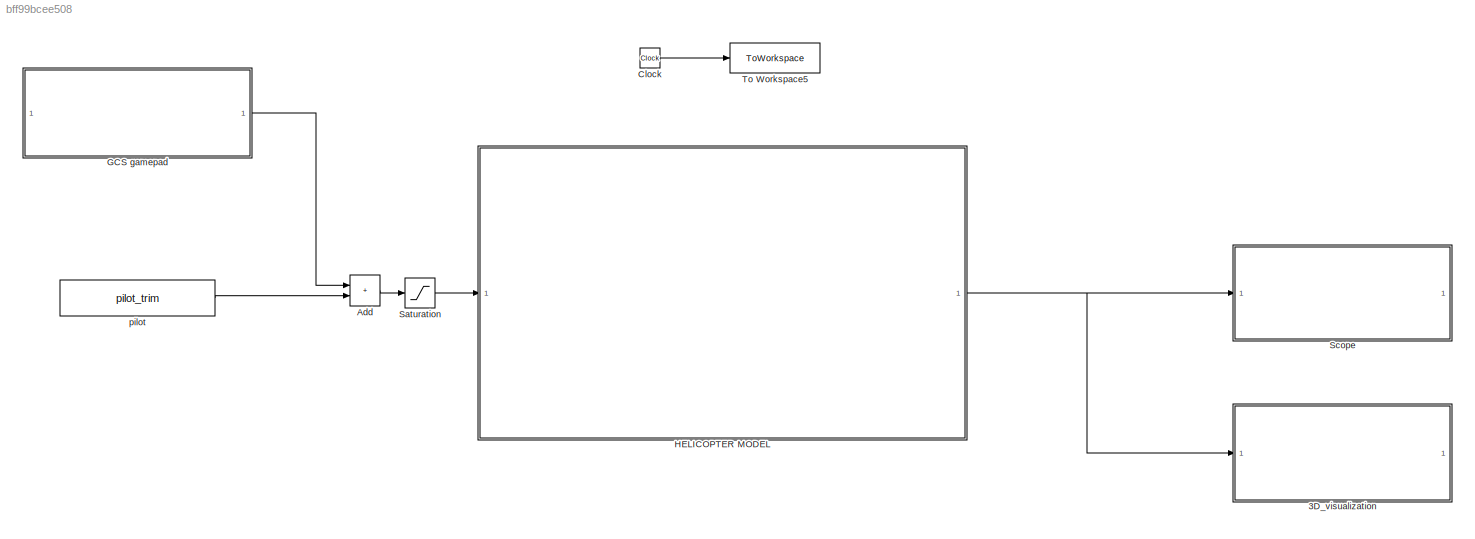
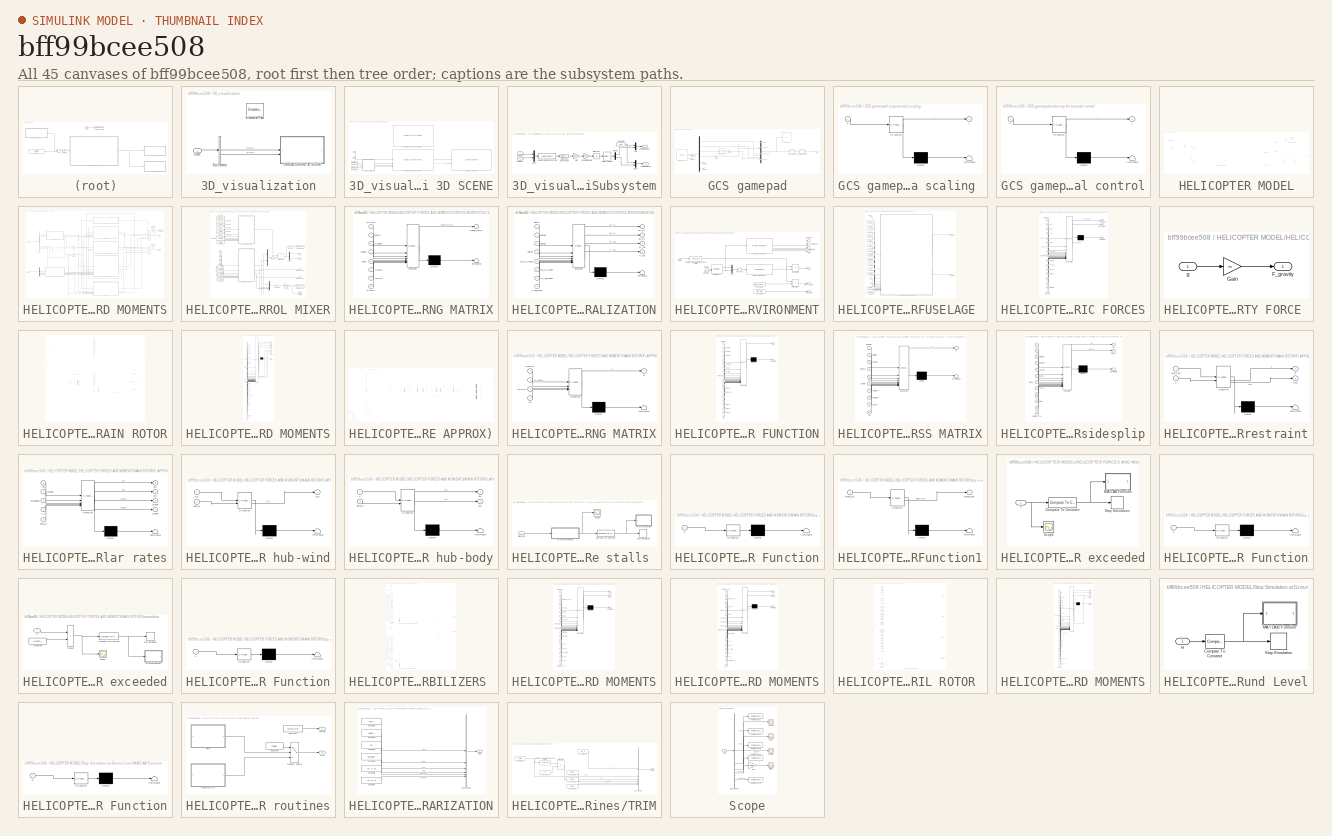
[diagram: thumbnail index - all 45 canvases of the model, root first then tree order]
MODEL slx_bff99bcee508
KIND model
CONFIG AbsTol = auto
CONFIG EnableMultiTasking = off
CONFIG FixedStep = ST
CONFIG MaxStep = auto
CONFIG MinStep = auto
CONFIG RelTol = 1e-3
CONFIG SampleTimeConstraint = Unconstrained
CONFIG SolverName = ode4
CONFIG StartTime = 0.0
CONFIG StopFcn = % main rotor flapping restraint\nif over_flap\n    warning('MyModel:flapping', '<strong> main rotor blade flapping exceeded limits </strong>');\nend\n% tail rotor flapping restraint\nif over_flap_tr\n    warning('MyModel:flapping_tr', '<strong> tail rotor blade flapping exceeded limits </strong>');\nend\n% main rotor load limit\nif load_mr\n    warning('MyModel:load_mr', '<strong> main rotor load limit reac...<+346ch>
CONFIG StopTime = 1
BLOCK [SubSystem] 3D_visualization
  Commented = on
BLOCK [BusSelector] 3D_visualization/Bus Selector
  OutputSignals = NED,Euler
BLOCK [Reference] 3D_visualization/Simulation Pace  REF=aerolibanimutils/Simulation Pace
  AttributesFormatString = %<SleepMode>\n%<SimulationPace> sec/sec
  SourceBlock = aerolibanimutils/Simulation Pace
  SourceType = Simulation Pace
BLOCK [Inport] 3D_visualization/State
BLOCK [SubSystem] 3D_visualization/UNREAL ENGINE 3D SCENE
BLOCK [Constant] 3D_visualization/UNREAL ENGINE 3D SCENE/Constant
  Value = OMEGA
BLOCK [Constant] 3D_visualization/UNREAL ENGINE 3D SCENE/Constant1
  Value = OMEGATR
BLOCK [Reference] 3D_visualization/UNREAL ENGINE 3D SCENE/Simulation 3D Light Helicopter Pack  REF=aerolibsim3d/Simulation 3D Light Helicopter Pack
  SourceBlock = aerolibsim3d/Simulation 3D Light Helicopter Pack
  SourceType = Simulation 3D Light Helicopter Pack
BLOCK [Reference] 3D_visualization/UNREAL ENGINE 3D SCENE/Simulation 3D Rotorcraft  REF=aerolibsim3d/Simulation 3D Rotorcraft
  Priority = -1
  SourceBlock = aerolibsim3d/Simulation 3D Rotorcraft
  SourceType = Simulation 3D Rotorcraft
BLOCK [Reference] 3D_visualization/UNREAL ENGINE 3D SCENE/Simulation 3D Scene Configuration1  REF=sim3dlib/Simulation 3D Scene Configuration
  LibrarySourceBlock = aerolibsim3d/Simulation 3D Scene Configuration
  Priority = 0
  SourceBlock = sim3dlib/Simulation 3D Scene Configuration
  SourceType = Simulation 3D Scene Configuration
BLOCK [SubSystem] 3D_visualization/UNREAL ENGINE 3D SCENE/Subsystem
BLOCK [Reference] 3D_visualization/UNREAL ENGINE 3D SCENE/Subsystem/Angular Velocity Conversion  REF=aerolibconvert2/Angular Velocity
Conversion
  SourceBlock = aerolibconvert2/Angular Velocity\nConversion
  SourceType = Angular Velocity Conversion
BLOCK [Constant] 3D_visualization/UNREAL ENGINE 3D SCENE/Subsystem/Constant
  Value = [0 0]
  VectorParams1D = off
BLOCK [DataTypeConversion] 3D_visualization/UNREAL ENGINE 3D SCENE/Subsystem/Data Type Conversion
  OutDataTypeStr = double
  RndMeth = Floor
  SaturateOnIntegerOverflow = off
BLOCK [Demux] 3D_visualization/UNREAL ENGINE 3D SCENE/Subsystem/Demux
  Outputs = 2
BLOCK [Gain] 3D_visualization/UNREAL ENGINE 3D SCENE/Subsystem/Gain
  Gain = -13841
BLOCK [Integrator] 3D_visualization/UNREAL ENGINE 3D SCENE/Subsystem/Integrator
  InitialCondition = [.1  .1]
  WrapState = on
  WrappedStateLowerValue = -2*pi
  WrappedStateUpperValue = 2*pi
BLOCK [Mux] 3D_visualization/UNREAL ENGINE 3D SCENE/Subsystem/Mux
  DisplayOption = bar
  Inputs = 2
BLOCK [Mux] 3D_visualization/UNREAL ENGINE 3D SCENE/Subsystem/Mux1
  DisplayOption = bar
  Inputs = 2
BLOCK [Mux] 3D_visualization/UNREAL ENGINE 3D SCENE/Subsystem/Mux2
  DisplayOption = bar
  Inputs = 2
BLOCK [Outport] 3D_visualization/UNREAL ENGINE 3D SCENE/Subsystem/Position Blade 2
  Port = 2
  VectorParamsAs1DForOutWhenUnconnected = off
BLOCK [Outport] 3D_visualization/UNREAL ENGINE 3D SCENE/Subsystem/Position Blade1
  VectorParamsAs1DForOutWhenUnconnected = off
BLOCK [RateTransition] 3D_visualization/UNREAL ENGINE 3D SCENE/Subsystem/Rate Transition2
BLOCK [Inport] 3D_visualization/UNREAL ENGINE 3D SCENE/Subsystem/SpeedM
BLOCK [Inport] 3D_visualization/UNREAL ENGINE 3D SCENE/Subsystem/SpeedT
  Port = 2
BLOCK [Gain] 3D_visualization/UNREAL ENGINE 3D SCENE/Subsystem/Visualization Gain
  Gain = .0001
BLOCK [Inport] 3D_visualization/UNREAL ENGINE 3D SCENE/Xe
BLOCK [Inport] 3D_visualization/UNREAL ENGINE 3D SCENE/euler
  Port = 2
BLOCK [Sum] Add
  IconShape = rectangular
BLOCK [Clock] Clock
BLOCK [SubSystem] GCS gamepad
  Commented = on
BLOCK [SubSystem] GCS gamepad/ exponential scaling 
  ErrorFcn = Stateflow.Translate.translate
  PermitHierarchicalResolution = ExplicitOnly
  SFBlockType = MATLAB Function
  TreatAsAtomicUnit = on
BLOCK [Demux] GCS gamepad/ exponential scaling / Demux 
  Outputs = 1
BLOCK [S-Function] GCS gamepad/ exponential scaling / SFunction 
  EnableBusSupport = on
  FunctionName = sf_sfun
  PortCounts = [1 2]
  SFcnIsStateOwnerBlock = off
  SFunctionDeploymentMode = off
  Tag = Stateflow S-Function 18
BLOCK [Terminator] GCS gamepad/ exponential scaling / Terminator 
BLOCK [Inport] GCS gamepad/ exponential scaling /u
BLOCK [Outport] GCS gamepad/ exponential scaling /y
BLOCK [Lookup_n-D] GCS gamepad/1-D Lookup Table4
  BreakpointsForDimension1 = [0 1]
  InputPortMap = u0
  InternalRulePriority = Speed
  NumberOfTableDimensions = 1
  RndMeth = Simplest
  Table = [-1 1]
BLOCK [Demux] GCS gamepad/Demux1
  Outputs = 6
BLOCK [Display] GCS gamepad/Display
  Decimation = 1
BLOCK [Gain] GCS gamepad/Gain1
  Gain = -1
BLOCK [Gain] GCS gamepad/Gain5
  Gain = -1
BLOCK [Mux] GCS gamepad/Mux1
  DisplayOption = bar
BLOCK [Reference] GCS gamepad/Pilot Joystick All1  REF=aerolibanimutils/Pilot Joystick
  LibrarySourceBlock = aerolibanimutils/Pilot Joystick All
  SourceBlock = aerolibanimutils/Pilot Joystick
  SourceType = PilotJoystick
BLOCK [Terminator] GCS gamepad/Terminator4
BLOCK [Terminator] GCS gamepad/Terminator5
BLOCK [Terminator] GCS gamepad/Terminator6
BLOCK [Terminator] GCS gamepad/Terminator7
BLOCK [SubSystem] GCS gamepad/indexing for manual control
  ErrorFcn = Stateflow.Translate.translate
  PermitHierarchicalResolution = ExplicitOnly
  SFBlockType = MATLAB Function
  TreatAsAtomicUnit = on
BLOCK [Demux] GCS gamepad/indexing for manual control/ Demux 
  Outputs = 1
BLOCK [S-Function] GCS gamepad/indexing for manual control/ SFunction 
  EnableBusSupport = on
  FunctionName = sf_sfun
  PortCounts = [1 2]
  SFcnIsStateOwnerBlock = off
  SFunctionDeploymentMode = off
  Tag = Stateflow S-Function 14
BLOCK [Terminator] GCS gamepad/indexing for manual control/ Terminator 
BLOCK [Inport] GCS gamepad/indexing for manual control/u
BLOCK [Outport] GCS gamepad/indexing for manual control/y
BLOCK [Outport] GCS gamepad/pilot
BLOCK [SubSystem] HELICOPTER MODEL
BLOCK [Reference] HELICOPTER MODEL/6DOF RIGID BODY DYNAMICS  REF=shared6dof/6DOF (Euler Angles)
  SourceBlock = shared6dof/6DOF (Euler Angles)
  SourceType = 6DOF EoM (Body Axis)
BLOCK [Constant] HELICOPTER MODEL/Constant
  Value = mode
BLOCK [SubSystem] HELICOPTER MODEL/HELICOPTER FORCES AND MOMENTS
BLOCK [BusSelector] HELICOPTER MODEL/HELICOPTER FORCES AND MOMENTS/Bus Selector
  OutputSignals = Euler,NED,UVW,PQR,PQR_dot
BLOCK [SubSystem] HELICOPTER MODEL/HELICOPTER FORCES AND MOMENTS/CONTROL MIXER
BLOCK [Outport] HELICOPTER MODEL/HELICOPTER FORCES AND MOMENTS/CONTROL MIXER/A1s
BLOCK [Outport] HELICOPTER MODEL/HELICOPTER FORCES AND MOMENTS/CONTROL MIXER/B1s
  Port = 2
BLOCK [SubSystem] HELICOPTER MODEL/HELICOPTER FORCES AND MOMENTS/CONTROL MIXER/CYCLIC MIXING MATRIX
  ErrorFcn = Stateflow.Translate.translate
  PermitHierarchicalResolution = ExplicitOnly
  SFBlockType = MATLAB Function
  TreatAsAtomicUnit = on
BLOCK [Demux] HELICOPTER MODEL/HELICOPTER FORCES AND MOMENTS/CONTROL MIXER/CYCLIC MIXING MATRIX/ Demux 
  Outputs = 1
BLOCK [S-Function] HELICOPTER MODEL/HELICOPTER FORCES AND MOMENTS/CONTROL MIXER/CYCLIC MIXING MATRIX/ SFunction 
  EnableBusSupport = on
  FunctionName = sf_sfun
  PortCounts = [8 2]
  SFcnIsStateOwnerBlock = off
  SFunctionDeploymentMode = off
  Tag = Stateflow S-Function 12
BLOCK [Terminator] HELICOPTER MODEL/HELICOPTER FORCES AND MOMENTS/CONTROL MIXER/CYCLIC MIXING MATRIX/ Terminator 
BLOCK [Inport] HELICOPTER MODEL/HELICOPTER FORCES AND MOMENTS/CONTROL MIXER/CYCLIC MIXING MATRIX/AKBETA
  Port = 4
BLOCK [Inport] HELICOPTER MODEL/HELICOPTER FORCES AND MOMENTS/CONTROL MIXER/CYCLIC MIXING MATRIX/AKONE
  Port = 7
BLOCK [Inport] HELICOPTER MODEL/HELICOPTER FORCES AND MOMENTS/CONTROL MIXER/CYCLIC MIXING MATRIX/EPSLN
  Port = 2
BLOCK [Inport] HELICOPTER MODEL/HELICOPTER FORCES AND MOMENTS/CONTROL MIXER/CYCLIC MIXING MATRIX/GAMMA
  Port = 8
BLOCK [Inport] HELICOPTER MODEL/HELICOPTER FORCES AND MOMENTS/CONTROL MIXER/CYCLIC MIXING MATRIX/Jbeta
  Port = 5
BLOCK [Inport] HELICOPTER MODEL/HELICOPTER FORCES AND MOMENTS/CONTROL MIXER/CYCLIC MIXING MATRIX/OMEGA
  Port = 6
BLOCK [Inport] HELICOPTER MODEL/HELICOPTER FORCES AND MOMENTS/CONTROL MIXER/CYCLIC MIXING MATRIX/ROTOR
BLOCK [Inport] HELICOPTER MODEL/HELICOPTER FORCES AND MOMENTS/CONTROL MIXER/CYCLIC MIXING MATRIX/m_blade
  Port = 3
BLOCK [Outport] HELICOPTER MODEL/HELICOPTER FORCES AND MOMENTS/CONTROL MIXER/CYCLIC MIXING MATRIX/mixing_matrix
BLOCK [Constant] HELICOPTER MODEL/HELICOPTER FORCES AND MOMENTS/CONTROL MIXER/Constant
  Value = ROTOR
BLOCK [Constant] HELICOPTER MODEL/HELICOPTER FORCES AND MOMENTS/CONTROL MIXER/Constant1
  Value = EPSLN
BLOCK [Constant] HELICOPTER MODEL/HELICOPTER FORCES AND MOMENTS/CONTROL MIXER/Constant10
  Value = mr_coll_range
BLOCK [Constant] HELICOPTER MODEL/HELICOPTER FORCES AND MOMENTS/CONTROL MIXER/Constant11
  Value = tr_coll_range
BLOCK [Constant] HELICOPTER MODEL/HELICOPTER FORCES AND MOMENTS/CONTROL MIXER/Constant2
  Value = m_blade
BLOCK [Constant] HELICOPTER MODEL/HELICOPTER FORCES AND MOMENTS/CONTROL MIXER/Constant3
  Value = AKBETA
BLOCK [Constant] HELICOPTER MODEL/HELICOPTER FORCES AND MOMENTS/CONTROL MIXER/Constant4
  Value = Jbeta
BLOCK [Constant] HELICOPTER MODEL/HELICOPTER FORCES AND MOMENTS/CONTROL MIXER/Constant5
  Value = OMEGA
BLOCK [Constant] HELICOPTER MODEL/HELICOPTER FORCES AND MOMENTS/CONTROL MIXER/Constant6
  Value = AKONE
BLOCK [Constant] HELICOPTER MODEL/HELICOPTER FORCES AND MOMENTS/CONTROL MIXER/Constant7
  Value = GAMMA
BLOCK [Constant] HELICOPTER MODEL/HELICOPTER FORCES AND MOMENTS/CONTROL MIXER/Constant8
  Value = lat_cyc_range
BLOCK [Constant] HELICOPTER MODEL/HELICOPTER FORCES AND MOMENTS/CONTROL MIXER/Constant9
  Value = lon_cyc_range
BLOCK [SubSystem] HELICOPTER MODEL/HELICOPTER FORCES AND MOMENTS/CONTROL MIXER/DIMENSIONALIZATION
  ErrorFcn = Stateflow.Translate.translate
  PermitHierarchicalResolution = ExplicitOnly
  SFBlockType = MATLAB Function
  TreatAsAtomicUnit = on
BLOCK [Demux] HELICOPTER MODEL/HELICOPTER FORCES AND MOMENTS/CONTROL MIXER/DIMENSIONALIZATION/ Demux 
  Outputs = 1
BLOCK [S-Function] HELICOPTER MODEL/HELICOPTER FORCES AND MOMENTS/CONTROL MIXER/DIMENSIONALIZATION/ SFunction 
  EnableBusSupport = on
  FunctionName = sf_sfun
  PortCounts = [8 5]
  SFcnIsStateOwnerBlock = off
  SFunctionDeploymentMode = off
  Tag = Stateflow S-Function 9
BLOCK [Terminator] HELICOPTER MODEL/HELICOPTER FORCES AND MOMENTS/CONTROL MIXER/DIMENSIONALIZATION/ Terminator 
BLOCK [Inport] HELICOPTER MODEL/HELICOPTER FORCES AND MOMENTS/CONTROL MIXER/DIMENSIONALIZATION/deltaA
BLOCK [Inport] HELICOPTER MODEL/HELICOPTER FORCES AND MOMENTS/CONTROL MIXER/DIMENSIONALIZATION/deltaB
  Port = 2
BLOCK [Inport] HELICOPTER MODEL/HELICOPTER FORCES AND MOMENTS/CONTROL MIXER/DIMENSIONALIZATION/deltaC
  Port = 3
BLOCK [Inport] HELICOPTER MODEL/HELICOPTER FORCES AND MOMENTS/CONTROL MIXER/DIMENSIONALIZATION/deltaP
  Port = 4
BLOCK [Outport] HELICOPTER MODEL/HELICOPTER FORCES AND MOMENTS/CONTROL MIXER/DIMENSIONALIZATION/lat_cyc
BLOCK [Inport] HELICOPTER MODEL/HELICOPTER FORCES AND MOMENTS/CONTROL MIXER/DIMENSIONALIZATION/lat_cyc_range
  Port = 5
BLOCK [Outport] HELICOPTER MODEL/HELICOPTER FORCES AND MOMENTS/CONTROL MIXER/DIMENSIONALIZATION/lon_cyc
  Port = 2
BLOCK [Inport] HELICOPTER MODEL/HELICOPTER FORCES AND MOMENTS/CONTROL MIXER/DIMENSIONALIZATION/lon_cyc_range
  Port = 6
BLOCK [Outport] HELICOPTER MODEL/HELICOPTER FORCES AND MOMENTS/CONTROL MIXER/DIMENSIONALIZATION/mr_coll
  Port = 3
BLOCK [Inport] HELICOPTER MODEL/HELICOPTER FORCES AND MOMENTS/CONTROL MIXER/DIMENSIONALIZATION/mr_coll_range
  Port = 7
BLOCK [Outport] HELICOPTER MODEL/HELICOPTER FORCES AND MOMENTS/CONTROL MIXER/DIMENSIONALIZATION/tr_coll
  Port = 4
BLOCK [Inport] HELICOPTER MODEL/HELICOPTER FORCES AND MOMENTS/CONTROL MIXER/DIMENSIONALIZATION/tr_coll_range
  Port = 8
BLOCK [Demux] HELICOPTER MODEL/HELICOPTER FORCES AND MOMENTS/CONTROL MIXER/Demux
  Outputs = 2
BLOCK [Gain] HELICOPTER MODEL/HELICOPTER FORCES AND MOMENTS/CONTROL MIXER/Gain
  Gain = 180/pi
BLOCK [Outport] HELICOPTER MODEL/HELICOPTER FORCES AND MOMENTS/CONTROL MIXER/MR COLLECTIVE
  Port = 3
BLOCK [Product] HELICOPTER MODEL/HELICOPTER FORCES AND MOMENTS/CONTROL MIXER/Matrix Multiply
  Multiplication = Matrix(*)
BLOCK [Mux] HELICOPTER MODEL/HELICOPTER FORCES AND MOMENTS/CONTROL MIXER/Mux
  DisplayOption = bar
  Inputs = 2
BLOCK [Mux] HELICOPTER MODEL/HELICOPTER FORCES AND MOMENTS/CONTROL MIXER/Mux1
  DisplayOption = bar
BLOCK [Reshape] HELICOPTER MODEL/HELICOPTER FORCES AND MOMENTS/CONTROL MIXER/Reshape
  OutputDimensionality = Column vector (2-D)
BLOCK [Reshape] HELICOPTER MODEL/HELICOPTER FORCES AND MOMENTS/CONTROL MIXER/Reshape1
  OutputDimensionality = Column vector (2-D)
BLOCK [Reshape] HELICOPTER MODEL/HELICOPTER FORCES AND MOMENTS/CONTROL MIXER/Reshape2
  OutputDimensionality = Column vector (2-D)
BLOCK [Outport] HELICOPTER MODEL/HELICOPTER FORCES AND MOMENTS/CONTROL MIXER/TR COLLECTIVE
  Port = 4
BLOCK [ToWorkspace] HELICOPTER MODEL/HELICOPTER FORCES AND MOMENTS/CONTROL MIXER/To Workspace
  FixptAsFi = on
  MaxDataPoints = inf
  SampleTime = -1
  VariableName = AB
BLOCK [ToWorkspace] HELICOPTER MODEL/HELICOPTER FORCES AND MOMENTS/CONTROL MIXER/To Workspace1
  FixptAsFi = on
  MaxDataPoints = inf
  SampleTime = -1
  VariableName = controls
BLOCK [Scope] HELICOPTER MODEL/HELICOPTER FORCES AND MOMENTS/CONTROL MIXER/controls
  Floating = off
  NumInputPorts = 1
  ScopeSpecificationString = Simulink.scopes.TimeScopeBlockCfg('CurrentConfiguration', extmgr.ConfigurationSet(extmgr.Configuration('Core','General UI',true),extmgr.Configuration('Core','Source UI',true),extmgr.Configuration('Sources','WiredSimulink',true,'DataLoggingVariableName','ScopeData1'),extmgr.Configuration('Visuals','Time Domain',true,'SerializedDisplays',{struct('MinYLimReal','-10','MaxYLimReal','20','YLabelReal',''...<+1751ch>
BLOCK [Inport] HELICOPTER MODEL/HELICOPTER FORCES AND MOMENTS/CONTROL MIXER/deltaA
BLOCK [Inport] HELICOPTER MODEL/HELICOPTER FORCES AND MOMENTS/CONTROL MIXER/deltaB
  Port = 2
BLOCK [Inport] HELICOPTER MODEL/HELICOPTER FORCES AND MOMENTS/CONTROL MIXER/deltaC
  Port = 3
BLOCK [Inport] HELICOPTER MODEL/HELICOPTER FORCES AND MOMENTS/CONTROL MIXER/deltaP
  Port = 4
BLOCK [Demux] HELICOPTER MODEL/HELICOPTER FORCES AND MOMENTS/Demux
BLOCK [SubSystem] HELICOPTER MODEL/HELICOPTER FORCES AND MOMENTS/ENVIRONMENT
BLOCK [Constant] HELICOPTER MODEL/HELICOPTER FORCES AND MOMENTS/ENVIRONMENT/Constant
  Value = href
BLOCK [Constant] HELICOPTER MODEL/HELICOPTER FORCES AND MOMENTS/ENVIRONMENT/Constant1
  Value = wind_velocity_e
BLOCK [Constant] HELICOPTER MODEL/HELICOPTER FORCES AND MOMENTS/ENVIRONMENT/Constant2
  Value = wind_rate
BLOCK [Inport] HELICOPTER MODEL/HELICOPTER FORCES AND MOMENTS/ENVIRONMENT/Euler
BLOCK [Reference] HELICOPTER MODEL/HELICOPTER FORCES AND MOMENTS/ENVIRONMENT/Flat Earth to LLA  REF=aerolibtransform2/Flat Earth to LLA
  SourceBlock = aerolibtransform2/Flat Earth to LLA
  SourceType = Flat Earth to LLA
BLOCK [Reference] HELICOPTER MODEL/HELICOPTER FORCES AND MOMENTS/ENVIRONMENT/ISA Atmosphere Model  REF=aerolibatmos2/ISA Atmosphere Model
  SourceBlock = aerolibatmos2/ISA Atmosphere Model
  SourceType = International Standard Atmosphere Model
BLOCK [Product] HELICOPTER MODEL/HELICOPTER FORCES AND MOMENTS/ENVIRONMENT/Matrix Multiply
  Multiplication = Matrix(*)
BLOCK [Product] HELICOPTER MODEL/HELICOPTER FORCES AND MOMENTS/ENVIRONMENT/Matrix Multiply1
  Multiplication = Matrix(*)
BLOCK [Mux] HELICOPTER MODEL/HELICOPTER FORCES AND MOMENTS/ENVIRONMENT/Mux
  DisplayOption = bar
  Inputs = [2 1]
BLOCK [Reshape] HELICOPTER MODEL/HELICOPTER FORCES AND MOMENTS/ENVIRONMENT/Reshape
BLOCK [Angle2Dcm] HELICOPTER MODEL/HELICOPTER FORCES AND MOMENTS/ENVIRONMENT/Rotation Angles to Direction Cosine Matrix
  AttributesFormatString = Rotation Order: %<rotationOrder>
  rotationOrder = XYZ
BLOCK [Terminator] HELICOPTER MODEL/HELICOPTER FORCES AND MOMENTS/ENVIRONMENT/Terminator
BLOCK [Terminator] HELICOPTER MODEL/HELICOPTER FORCES AND MOMENTS/ENVIRONMENT/Terminator1
BLOCK [Terminator] HELICOPTER MODEL/HELICOPTER FORCES AND MOMENTS/ENVIRONMENT/Terminator2
BLOCK [GravityWGS84] HELICOPTER MODEL/HELICOPTER FORCES AND MOMENTS/ENVIRONMENT/WGS84 Gravity Model  
BLOCK [Inport] HELICOPTER MODEL/HELICOPTER FORCES AND MOMENTS/ENVIRONMENT/Xe
  Port = 2
BLOCK [Outport] HELICOPTER MODEL/HELICOPTER FORCES AND MOMENTS/ENVIRONMENT/g
  Port = 2
BLOCK [Outport] HELICOPTER MODEL/HELICOPTER FORCES AND MOMENTS/ENVIRONMENT/rho
BLOCK [Outport] HELICOPTER MODEL/HELICOPTER FORCES AND MOMENTS/ENVIRONMENT/wind_rate
  Port = 4
BLOCK [Outport] HELICOPTER MODEL/HELICOPTER FORCES AND MOMENTS/ENVIRONMENT/wind_velocity
  Port = 3
BLOCK [SubSystem] HELICOPTER MODEL/HELICOPTER FORCES AND MOMENTS/FUSELAGE 
BLOCK [Constant] HELICOPTER MODEL/HELICOPTER FORCES AND MOMENTS/FUSELAGE /Constant1
  Value = OMEGA
BLOCK [Constant] HELICOPTER MODEL/HELICOPTER FORCES AND MOMENTS/FUSELAGE /Constant17
  Value = CN_f
BLOCK [Constant] HELICOPTER MODEL/HELICOPTER FORCES AND MOMENTS/FUSELAGE /Constant18
  Value = CM_f
BLOCK [Constant] HELICOPTER MODEL/HELICOPTER FORCES AND MOMENTS/FUSELAGE /Constant19
  Value = CLL_f
BLOCK [Constant] HELICOPTER MODEL/HELICOPTER FORCES AND MOMENTS/FUSELAGE /Constant2
  Value = ROTOR
BLOCK [Constant] HELICOPTER MODEL/HELICOPTER FORCES AND MOMENTS/FUSELAGE /Constant20
  Value = CD_f
BLOCK [Constant] HELICOPTER MODEL/HELICOPTER FORCES AND MOMENTS/FUSELAGE /Constant21
  Value = CL_f
BLOCK [Constant] HELICOPTER MODEL/HELICOPTER FORCES AND MOMENTS/FUSELAGE /Constant22
  Value = CY_f
BLOCK [Constant] HELICOPTER MODEL/HELICOPTER FORCES AND MOMENTS/FUSELAGE /Constant3
  Value = STARPF
BLOCK [Constant] HELICOPTER MODEL/HELICOPTER FORCES AND MOMENTS/FUSELAGE /Constant4
  Value = BLRPF
BLOCK [Constant] HELICOPTER MODEL/HELICOPTER FORCES AND MOMENTS/FUSELAGE /Constant5
  Value = WLRPF
BLOCK [Constant] HELICOPTER MODEL/HELICOPTER FORCES AND MOMENTS/FUSELAGE /Constant6
  Value = STACG
BLOCK [Constant] HELICOPTER MODEL/HELICOPTER FORCES AND MOMENTS/FUSELAGE /Constant7
  Value = BLCG
BLOCK [Constant] HELICOPTER MODEL/HELICOPTER FORCES AND MOMENTS/FUSELAGE /Constant8
  Value = WLCG
BLOCK [SubSystem] HELICOPTER MODEL/HELICOPTER FORCES AND MOMENTS/FUSELAGE /FUSELAGE AERODYNAMIC FORCES
  ErrorFcn = Stateflow.Translate.translate
  LibrarySourceBlock = simulink/User-Defined\nFunctions/MATLAB Function
  PermitHierarchicalResolution = ExplicitOnly
  SFBlockType = MATLAB Function
  TreatAsAtomicUnit = on
BLOCK [Demux] HELICOPTER MODEL/HELICOPTER FORCES AND MOMENTS/FUSELAGE /FUSELAGE AERODYNAMIC FORCES/ Demux 
  Outputs = 1
BLOCK [S-Function] HELICOPTER MODEL/HELICOPTER FORCES AND MOMENTS/FUSELAGE /FUSELAGE AERODYNAMIC FORCES/ SFunction 
  EnableBusSupport = on
  FunctionName = sf_sfun
  PortCounts = [17 3]
  SFcnIsStateOwnerBlock = off
  SFunctionDeploymentMode = off
  Tag = Stateflow S-Function 2
BLOCK [Terminator] HELICOPTER MODEL/HELICOPTER FORCES AND MOMENTS/FUSELAGE /FUSELAGE AERODYNAMIC FORCES/ Terminator 
BLOCK [Inport] HELICOPTER MODEL/HELICOPTER FORCES AND MOMENTS/FUSELAGE /FUSELAGE AERODYNAMIC FORCES/BLCG
  Port = 12
BLOCK [Inport] HELICOPTER MODEL/HELICOPTER FORCES AND MOMENTS/FUSELAGE /FUSELAGE AERODYNAMIC FORCES/BLRPF
  Port = 9
BLOCK [Inport] HELICOPTER MODEL/HELICOPTER FORCES AND MOMENTS/FUSELAGE /FUSELAGE AERODYNAMIC FORCES/CD_f
  Port = 3
BLOCK [Inport] HELICOPTER MODEL/HELICOPTER FORCES AND MOMENTS/FUSELAGE /FUSELAGE AERODYNAMIC FORCES/CLL_f
  Port = 5
BLOCK [Inport] HELICOPTER MODEL/HELICOPTER FORCES AND MOMENTS/FUSELAGE /FUSELAGE AERODYNAMIC FORCES/CL_f
  Port = 2
BLOCK [Inport] HELICOPTER MODEL/HELICOPTER FORCES AND MOMENTS/FUSELAGE /FUSELAGE AERODYNAMIC FORCES/CM_f
  Port = 6
BLOCK [Inport] HELICOPTER MODEL/HELICOPTER FORCES AND MOMENTS/FUSELAGE /FUSELAGE AERODYNAMIC FORCES/CN_f
  Port = 7
BLOCK [Inport] HELICOPTER MODEL/HELICOPTER FORCES AND MOMENTS/FUSELAGE /FUSELAGE AERODYNAMIC FORCES/CY_f
  Port = 4
BLOCK [Outport] HELICOPTER MODEL/HELICOPTER FORCES AND MOMENTS/FUSELAGE /FUSELAGE AERODYNAMIC FORCES/F_fuselage
BLOCK [Outport] HELICOPTER MODEL/HELICOPTER FORCES AND MOMENTS/FUSELAGE /FUSELAGE AERODYNAMIC FORCES/M_fuselage
  Port = 2
BLOCK [Inport] HELICOPTER MODEL/HELICOPTER FORCES AND MOMENTS/FUSELAGE /FUSELAGE AERODYNAMIC FORCES/OMEGA
  Port = 16
BLOCK [Inport] HELICOPTER MODEL/HELICOPTER FORCES AND MOMENTS/FUSELAGE /FUSELAGE AERODYNAMIC FORCES/ROTOR
  Port = 17
BLOCK [Inport] HELICOPTER MODEL/HELICOPTER FORCES AND MOMENTS/FUSELAGE /FUSELAGE AERODYNAMIC FORCES/STACG
  Port = 11
BLOCK [Inport] HELICOPTER MODEL/HELICOPTER FORCES AND MOMENTS/FUSELAGE /FUSELAGE AERODYNAMIC FORCES/STARPF
  Port = 8
BLOCK [Inport] HELICOPTER MODEL/HELICOPTER FORCES AND MOMENTS/FUSELAGE /FUSELAGE AERODYNAMIC FORCES/TAS
  Port = 15
BLOCK [Inport] HELICOPTER MODEL/HELICOPTER FORCES AND MOMENTS/FUSELAGE /FUSELAGE AERODYNAMIC FORCES/WLCG
  Port = 13
BLOCK [Inport] HELICOPTER MODEL/HELICOPTER FORCES AND MOMENTS/FUSELAGE /FUSELAGE AERODYNAMIC FORCES/WLRPF
  Port = 10
BLOCK [Inport] HELICOPTER MODEL/HELICOPTER FORCES AND MOMENTS/FUSELAGE /FUSELAGE AERODYNAMIC FORCES/lambda_i
BLOCK [Inport] HELICOPTER MODEL/HELICOPTER FORCES AND MOMENTS/FUSELAGE /FUSELAGE AERODYNAMIC FORCES/rho
  Port = 14
BLOCK [Outport] HELICOPTER MODEL/HELICOPTER FORCES AND MOMENTS/FUSELAGE /F_fuselage
BLOCK [Outport] HELICOPTER MODEL/HELICOPTER FORCES AND MOMENTS/FUSELAGE /M_fuselage
  Port = 2
BLOCK [Inport] HELICOPTER MODEL/HELICOPTER FORCES AND MOMENTS/FUSELAGE /TAS
  Port = 2
BLOCK [Inport] HELICOPTER MODEL/HELICOPTER FORCES AND MOMENTS/FUSELAGE /lambda_i
  Port = 3
BLOCK [Inport] HELICOPTER MODEL/HELICOPTER FORCES AND MOMENTS/FUSELAGE /rho
BLOCK [Outport] HELICOPTER MODEL/HELICOPTER FORCES AND MOMENTS/Forces
BLOCK [SubSystem] HELICOPTER MODEL/HELICOPTER FORCES AND MOMENTS/GRAVITY FORCE 
BLOCK [Outport] HELICOPTER MODEL/HELICOPTER FORCES AND MOMENTS/GRAVITY FORCE /F_gravity
BLOCK [Gain] HELICOPTER MODEL/HELICOPTER FORCES AND MOMENTS/GRAVITY FORCE /Gain
  Gain = m
BLOCK [Inport] HELICOPTER MODEL/HELICOPTER FORCES AND MOMENTS/GRAVITY FORCE /g
BLOCK [SubSystem] HELICOPTER MODEL/HELICOPTER FORCES AND MOMENTS/MAIN ROTOR
BLOCK [Inport] HELICOPTER MODEL/HELICOPTER FORCES AND MOMENTS/MAIN ROTOR/A1s
  Port = 6
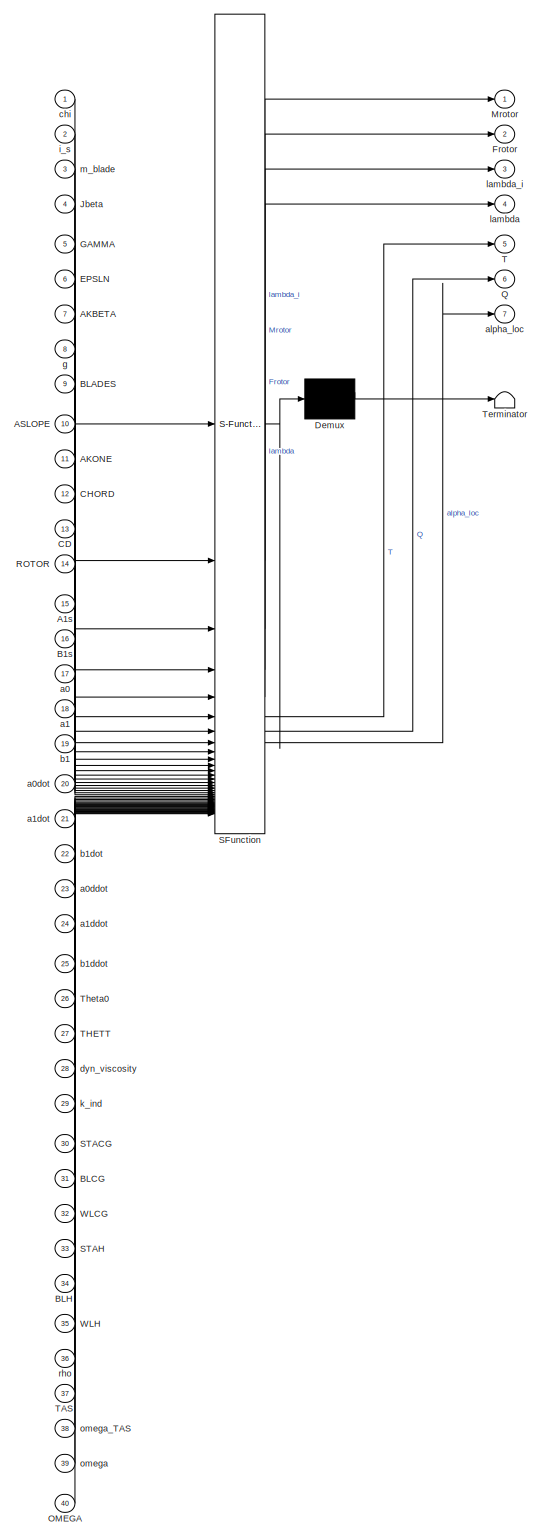
[diagram: HELICOPTER MODEL/HELICOPTER FORCES AND MOMENTS/MAIN ROTOR/AERODYNAMIC AND INERTIAL FORCES AND MOMENTS - part 1/1, most of the canvas]
BLOCK [SubSystem] HELICOPTER MODEL/HELICOPTER FORCES AND MOMENTS/MAIN ROTOR/AERODYNAMIC AND INERTIAL FORCES AND MOMENTS
  ErrorFcn = Stateflow.Translate.translate
  LibrarySourceBlock = simulink/User-Defined\nFunctions/MATLAB Function
  PermitHierarchicalResolution = ExplicitOnly
  SFBlockType = MATLAB Function
  TreatAsAtomicUnit = on
BLOCK [Demux] HELICOPTER MODEL/HELICOPTER FORCES AND MOMENTS/MAIN ROTOR/AERODYNAMIC AND INERTIAL FORCES AND MOMENTS/ Demux 
  Outputs = 1
BLOCK [S-Function] HELICOPTER MODEL/HELICOPTER FORCES AND MOMENTS/MAIN ROTOR/AERODYNAMIC AND INERTIAL FORCES AND MOMENTS/ SFunction 
  EnableBusSupport = on
  FunctionName = sf_sfun
  PortCounts = [40 8]
  SFcnIsStateOwnerBlock = off
  SFunctionDeploymentMode = off
  Tag = Stateflow S-Function 3
BLOCK [Terminator] HELICOPTER MODEL/HELICOPTER FORCES AND MOMENTS/MAIN ROTOR/AERODYNAMIC AND INERTIAL FORCES AND MOMENTS/ Terminator 
BLOCK [Inport] HELICOPTER MODEL/HELICOPTER FORCES AND MOMENTS/MAIN ROTOR/AERODYNAMIC AND INERTIAL FORCES AND MOMENTS/A1s
  Port = 15
BLOCK [Inport] HELICOPTER MODEL/HELICOPTER FORCES AND MOMENTS/MAIN ROTOR/AERODYNAMIC AND INERTIAL FORCES AND MOMENTS/AKBETA
  Port = 7
BLOCK [Inport] HELICOPTER MODEL/HELICOPTER FORCES AND MOMENTS/MAIN ROTOR/AERODYNAMIC AND INERTIAL FORCES AND MOMENTS/AKONE
  Port = 11
BLOCK [Inport] HELICOPTER MODEL/HELICOPTER FORCES AND MOMENTS/MAIN ROTOR/AERODYNAMIC AND INERTIAL FORCES AND MOMENTS/ASLOPE
  Port = 10
BLOCK [Inport] HELICOPTER MODEL/HELICOPTER FORCES AND MOMENTS/MAIN ROTOR/AERODYNAMIC AND INERTIAL FORCES AND MOMENTS/B1s
  Port = 16
BLOCK [Inport] HELICOPTER MODEL/HELICOPTER FORCES AND MOMENTS/MAIN ROTOR/AERODYNAMIC AND INERTIAL FORCES AND MOMENTS/BLADES
  Port = 9
BLOCK [Inport] HELICOPTER MODEL/HELICOPTER FORCES AND MOMENTS/MAIN ROTOR/AERODYNAMIC AND INERTIAL FORCES AND MOMENTS/BLCG
  Port = 31
BLOCK [Inport] HELICOPTER MODEL/HELICOPTER FORCES AND MOMENTS/MAIN ROTOR/AERODYNAMIC AND INERTIAL FORCES AND MOMENTS/BLH
  Port = 34
BLOCK [Inport] HELICOPTER MODEL/HELICOPTER FORCES AND MOMENTS/MAIN ROTOR/AERODYNAMIC AND INERTIAL FORCES AND MOMENTS/CD
  Port = 13
BLOCK [Inport] HELICOPTER MODEL/HELICOPTER FORCES AND MOMENTS/MAIN ROTOR/AERODYNAMIC AND INERTIAL FORCES AND MOMENTS/CHORD
  Port = 12
BLOCK [Inport] HELICOPTER MODEL/HELICOPTER FORCES AND MOMENTS/MAIN ROTOR/AERODYNAMIC AND INERTIAL FORCES AND MOMENTS/EPSLN
  Port = 6
BLOCK [Outport] HELICOPTER MODEL/HELICOPTER FORCES AND MOMENTS/MAIN ROTOR/AERODYNAMIC AND INERTIAL FORCES AND MOMENTS/Frotor
  Port = 2
BLOCK [Inport] HELICOPTER MODEL/HELICOPTER FORCES AND MOMENTS/MAIN ROTOR/AERODYNAMIC AND INERTIAL FORCES AND MOMENTS/GAMMA
  Port = 5
BLOCK [Inport] HELICOPTER MODEL/HELICOPTER FORCES AND MOMENTS/MAIN ROTOR/AERODYNAMIC AND INERTIAL FORCES AND MOMENTS/Jbeta
  Port = 4
BLOCK [Outport] HELICOPTER MODEL/HELICOPTER FORCES AND MOMENTS/MAIN ROTOR/AERODYNAMIC AND INERTIAL FORCES AND MOMENTS/Mrotor
BLOCK [Inport] HELICOPTER MODEL/HELICOPTER FORCES AND MOMENTS/MAIN ROTOR/AERODYNAMIC AND INERTIAL FORCES AND MOMENTS/OMEGA
  Port = 40
BLOCK [Outport] HELICOPTER MODEL/HELICOPTER FORCES AND MOMENTS/MAIN ROTOR/AERODYNAMIC AND INERTIAL FORCES AND MOMENTS/Q
  Port = 6
BLOCK [Inport] HELICOPTER MODEL/HELICOPTER FORCES AND MOMENTS/MAIN ROTOR/AERODYNAMIC AND INERTIAL FORCES AND MOMENTS/ROTOR
  Port = 14
BLOCK [Inport] HELICOPTER MODEL/HELICOPTER FORCES AND MOMENTS/MAIN ROTOR/AERODYNAMIC AND INERTIAL FORCES AND MOMENTS/STACG
  Port = 30
BLOCK [Inport] HELICOPTER MODEL/HELICOPTER FORCES AND MOMENTS/MAIN ROTOR/AERODYNAMIC AND INERTIAL FORCES AND MOMENTS/STAH
  Port = 33
BLOCK [Outport] HELICOPTER MODEL/HELICOPTER FORCES AND MOMENTS/MAIN ROTOR/AERODYNAMIC AND INERTIAL FORCES AND MOMENTS/T
  Port = 5
BLOCK [Inport] HELICOPTER MODEL/HELICOPTER FORCES AND MOMENTS/MAIN ROTOR/AERODYNAMIC AND INERTIAL FORCES AND MOMENTS/TAS
  Port = 37
BLOCK [Inport] HELICOPTER MODEL/HELICOPTER FORCES AND MOMENTS/MAIN ROTOR/AERODYNAMIC AND INERTIAL FORCES AND MOMENTS/THETT
  Port = 27
BLOCK [Inport] HELICOPTER MODEL/HELICOPTER FORCES AND MOMENTS/MAIN ROTOR/AERODYNAMIC AND INERTIAL FORCES AND MOMENTS/Theta0
  Port = 26
BLOCK [Inport] HELICOPTER MODEL/HELICOPTER FORCES AND MOMENTS/MAIN ROTOR/AERODYNAMIC AND INERTIAL FORCES AND MOMENTS/WLCG
  Port = 32
BLOCK [Inport] HELICOPTER MODEL/HELICOPTER FORCES AND MOMENTS/MAIN ROTOR/AERODYNAMIC AND INERTIAL FORCES AND MOMENTS/WLH
  Port = 35
BLOCK [Inport] HELICOPTER MODEL/HELICOPTER FORCES AND MOMENTS/MAIN ROTOR/AERODYNAMIC AND INERTIAL FORCES AND MOMENTS/a0
  Port = 17
BLOCK [Inport] HELICOPTER MODEL/HELICOPTER FORCES AND MOMENTS/MAIN ROTOR/AERODYNAMIC AND INERTIAL FORCES AND MOMENTS/a0ddot
  Port = 23
BLOCK [Inport] HELICOPTER MODEL/HELICOPTER FORCES AND MOMENTS/MAIN ROTOR/AERODYNAMIC AND INERTIAL FORCES AND MOMENTS/a0dot
  Port = 20
BLOCK [Inport] HELICOPTER MODEL/HELICOPTER FORCES AND MOMENTS/MAIN ROTOR/AERODYNAMIC AND INERTIAL FORCES AND MOMENTS/a1
  Port = 18
BLOCK [Inport] HELICOPTER MODEL/HELICOPTER FORCES AND MOMENTS/MAIN ROTOR/AERODYNAMIC AND INERTIAL FORCES AND MOMENTS/a1ddot
  Port = 24
BLOCK [Inport] HELICOPTER MODEL/HELICOPTER FORCES AND MOMENTS/MAIN ROTOR/AERODYNAMIC AND INERTIAL FORCES AND MOMENTS/a1dot
  Port = 21
BLOCK [Outport] HELICOPTER MODEL/HELICOPTER FORCES AND MOMENTS/MAIN ROTOR/AERODYNAMIC AND INERTIAL FORCES AND MOMENTS/alpha_loc
  Port = 7
BLOCK [Inport] HELICOPTER MODEL/HELICOPTER FORCES AND MOMENTS/MAIN ROTOR/AERODYNAMIC AND INERTIAL FORCES AND MOMENTS/b1
  Port = 19
BLOCK [Inport] HELICOPTER MODEL/HELICOPTER FORCES AND MOMENTS/MAIN ROTOR/AERODYNAMIC AND INERTIAL FORCES AND MOMENTS/b1ddot
  Port = 25
BLOCK [Inport] HELICOPTER MODEL/HELICOPTER FORCES AND MOMENTS/MAIN ROTOR/AERODYNAMIC AND INERTIAL FORCES AND MOMENTS/b1dot
  Port = 22
BLOCK [Inport] HELICOPTER MODEL/HELICOPTER FORCES AND MOMENTS/MAIN ROTOR/AERODYNAMIC AND INERTIAL FORCES AND MOMENTS/chi
BLOCK [Inport] HELICOPTER MODEL/HELICOPTER FORCES AND MOMENTS/MAIN ROTOR/AERODYNAMIC AND INERTIAL FORCES AND MOMENTS/dyn_viscosity
  Port = 28
BLOCK [Inport] HELICOPTER MODEL/HELICOPTER FORCES AND MOMENTS/MAIN ROTOR/AERODYNAMIC AND INERTIAL FORCES AND MOMENTS/g
  Port = 8
BLOCK [Inport] HELICOPTER MODEL/HELICOPTER FORCES AND MOMENTS/MAIN ROTOR/AERODYNAMIC AND INERTIAL FORCES AND MOMENTS/i_s
  Port = 2
BLOCK [Inport] HELICOPTER MODEL/HELICOPTER FORCES AND MOMENTS/MAIN ROTOR/AERODYNAMIC AND INERTIAL FORCES AND MOMENTS/k_ind
  Port = 29
BLOCK [Outport] HELICOPTER MODEL/HELICOPTER FORCES AND MOMENTS/MAIN ROTOR/AERODYNAMIC AND INERTIAL FORCES AND MOMENTS/lambda
  Port = 4
BLOCK [Outport] HELICOPTER MODEL/HELICOPTER FORCES AND MOMENTS/MAIN ROTOR/AERODYNAMIC AND INERTIAL FORCES AND MOMENTS/lambda_i
  Port = 3
BLOCK [Inport] HELICOPTER MODEL/HELICOPTER FORCES AND MOMENTS/MAIN ROTOR/AERODYNAMIC AND INERTIAL FORCES AND MOMENTS/m_blade
  Port = 3
BLOCK [Inport] HELICOPTER MODEL/HELICOPTER FORCES AND MOMENTS/MAIN ROTOR/AERODYNAMIC AND INERTIAL FORCES AND MOMENTS/omega
  Port = 39
BLOCK [Inport] HELICOPTER MODEL/HELICOPTER FORCES AND MOMENTS/MAIN ROTOR/AERODYNAMIC AND INERTIAL FORCES AND MOMENTS/omega_TAS
  Port = 38
BLOCK [Inport] HELICOPTER MODEL/HELICOPTER FORCES AND MOMENTS/MAIN ROTOR/AERODYNAMIC AND INERTIAL FORCES AND MOMENTS/rho
  Port = 36
BLOCK [Inport] HELICOPTER MODEL/HELICOPTER FORCES AND MOMENTS/MAIN ROTOR/B1s
  Port = 7
BLOCK [Constant] HELICOPTER MODEL/HELICOPTER FORCES AND MOMENTS/MAIN ROTOR/Constant
  Value = BLADES
BLOCK [Constant] HELICOPTER MODEL/HELICOPTER FORCES AND MOMENTS/MAIN ROTOR/Constant1
  Value = ASLOPE
BLOCK [Constant] HELICOPTER MODEL/HELICOPTER FORCES AND MOMENTS/MAIN ROTOR/Constant10
  Value = WLCG
BLOCK [Constant] HELICOPTER MODEL/HELICOPTER FORCES AND MOMENTS/MAIN ROTOR/Constant11
  Value = dyn_viscosity
BLOCK [Constant] HELICOPTER MODEL/HELICOPTER FORCES AND MOMENTS/MAIN ROTOR/Constant12
  Value = k_ind
BLOCK [Constant] HELICOPTER MODEL/HELICOPTER FORCES AND MOMENTS/MAIN ROTOR/Constant13
  Value = BLMR
BLOCK [Constant] HELICOPTER MODEL/HELICOPTER FORCES AND MOMENTS/MAIN ROTOR/Constant14
  Value = WLMR
BLOCK [Constant] HELICOPTER MODEL/HELICOPTER FORCES AND MOMENTS/MAIN ROTOR/Constant15
  Value = chi_mr
BLOCK [Constant] HELICOPTER MODEL/HELICOPTER FORCES AND MOMENTS/MAIN ROTOR/Constant16
  Value = i_s
BLOCK [Constant] HELICOPTER MODEL/HELICOPTER FORCES AND MOMENTS/MAIN ROTOR/Constant17
  Value = AKONE
BLOCK [Constant] HELICOPTER MODEL/HELICOPTER FORCES AND MOMENTS/MAIN ROTOR/Constant18
  Value = m_blade
BLOCK [Constant] HELICOPTER MODEL/HELICOPTER FORCES AND MOMENTS/MAIN ROTOR/Constant19
  Value = AKBETA
BLOCK [Constant] HELICOPTER MODEL/HELICOPTER FORCES AND MOMENTS/MAIN ROTOR/Constant2
  Value = CHORD
BLOCK [Constant] HELICOPTER MODEL/HELICOPTER FORCES AND MOMENTS/MAIN ROTOR/Constant20
  Value = Jbeta
BLOCK [Constant] HELICOPTER MODEL/HELICOPTER FORCES AND MOMENTS/MAIN ROTOR/Constant21
  Value = GAMMA
BLOCK [Constant] HELICOPTER MODEL/HELICOPTER FORCES AND MOMENTS/MAIN ROTOR/Constant22
  Value = EPSLN
BLOCK [Constant] HELICOPTER MODEL/HELICOPTER FORCES AND MOMENTS/MAIN ROTOR/Constant23
  Value = chi_mr
BLOCK [Constant] HELICOPTER MODEL/HELICOPTER FORCES AND MOMENTS/MAIN ROTOR/Constant3
  Value = CD_mr
BLOCK [Constant] HELICOPTER MODEL/HELICOPTER FORCES AND MOMENTS/MAIN ROTOR/Constant4
  Value = ROTOR
BLOCK [Constant] HELICOPTER MODEL/HELICOPTER FORCES AND MOMENTS/MAIN ROTOR/Constant5
  Value = OMEGA
BLOCK [Constant] HELICOPTER MODEL/HELICOPTER FORCES AND MOMENTS/MAIN ROTOR/Constant6
  Value = STAMR
BLOCK [Constant] HELICOPTER MODEL/HELICOPTER FORCES AND MOMENTS/MAIN ROTOR/Constant7
  Value = THETT
BLOCK [Constant] HELICOPTER MODEL/HELICOPTER FORCES AND MOMENTS/MAIN ROTOR/Constant8
  Value = STACG
BLOCK [Constant] HELICOPTER MODEL/HELICOPTER FORCES AND MOMENTS/MAIN ROTOR/Constant9
  Value = BLCG
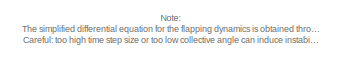
[diagram: HELICOPTER MODEL/HELICOPTER FORCES AND MOMENTS/MAIN ROTOR/FLAPPING DYNAMICS (TIP-PATH-PLANE APPROX) - part 1/8, top left region]
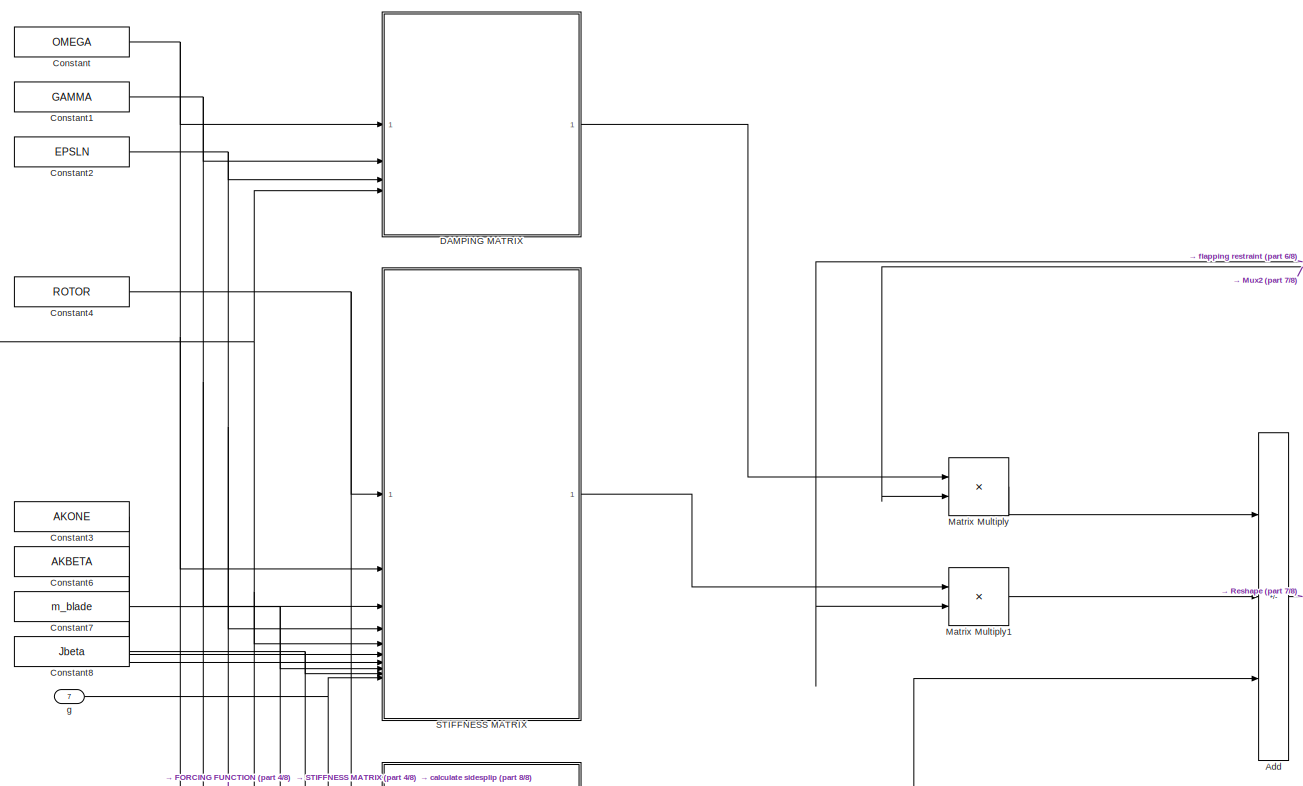
[diagram: HELICOPTER MODEL/HELICOPTER FORCES AND MOMENTS/MAIN ROTOR/FLAPPING DYNAMICS (TIP-PATH-PLANE APPROX) - part 2/8, top left region]
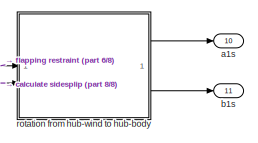
[diagram: HELICOPTER MODEL/HELICOPTER FORCES AND MOMENTS/MAIN ROTOR/FLAPPING DYNAMICS (TIP-PATH-PLANE APPROX) - part 3/8, top right region]
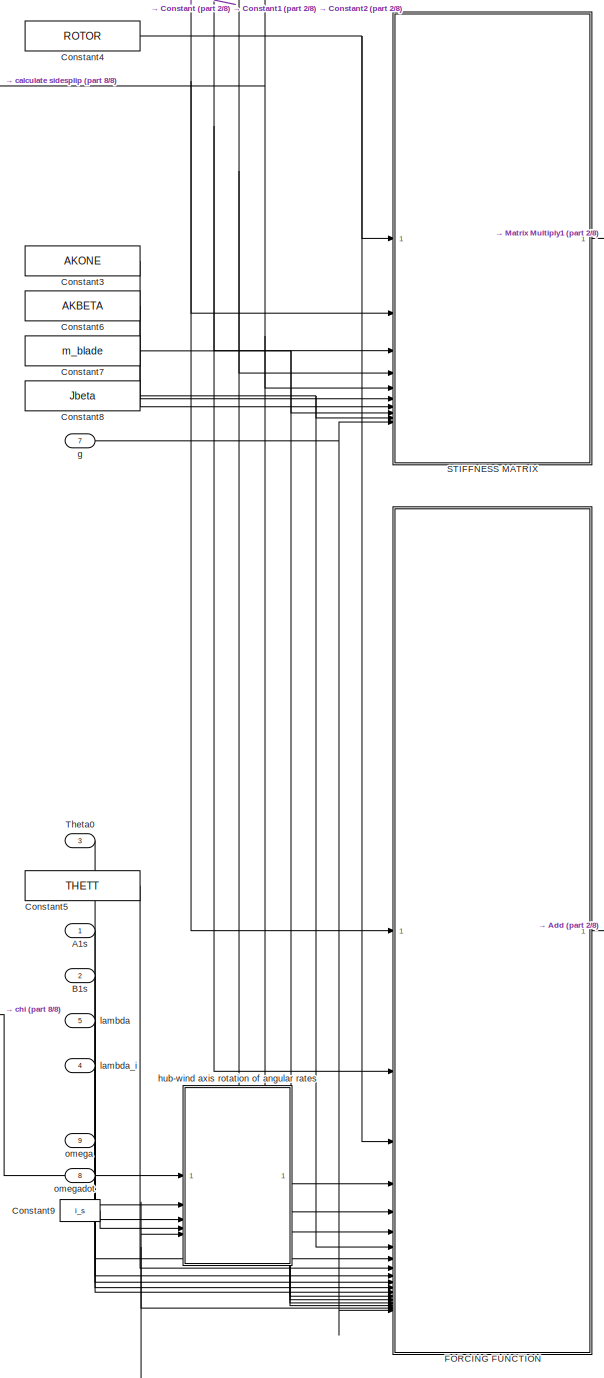
[diagram: HELICOPTER MODEL/HELICOPTER FORCES AND MOMENTS/MAIN ROTOR/FLAPPING DYNAMICS (TIP-PATH-PLANE APPROX) - part 4/8, middle left region]
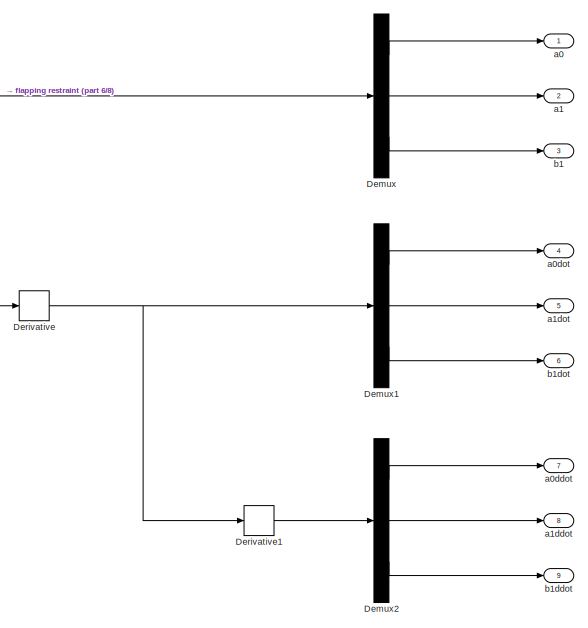
[diagram: HELICOPTER MODEL/HELICOPTER FORCES AND MOMENTS/MAIN ROTOR/FLAPPING DYNAMICS (TIP-PATH-PLANE APPROX) - part 5/8, middle right region]
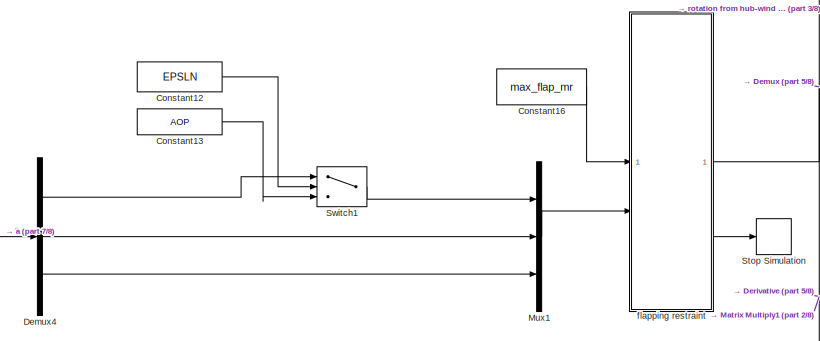
[diagram: HELICOPTER MODEL/HELICOPTER FORCES AND MOMENTS/MAIN ROTOR/FLAPPING DYNAMICS (TIP-PATH-PLANE APPROX) - part 6/8, middle right region]
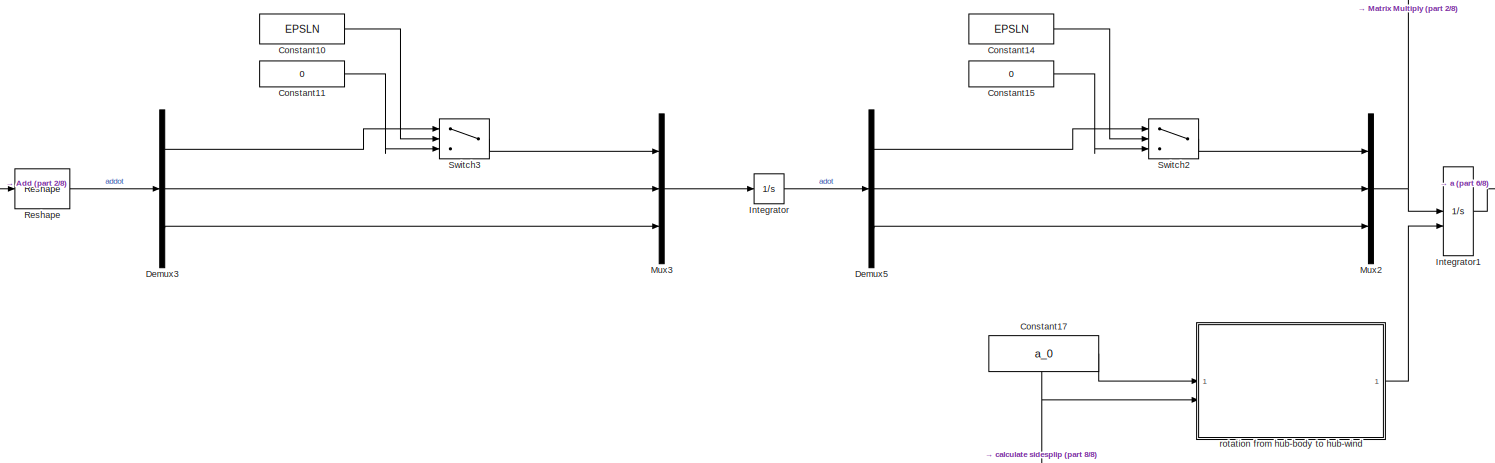
[diagram: HELICOPTER MODEL/HELICOPTER FORCES AND MOMENTS/MAIN ROTOR/FLAPPING DYNAMICS (TIP-PATH-PLANE APPROX) - part 7/8, central region]
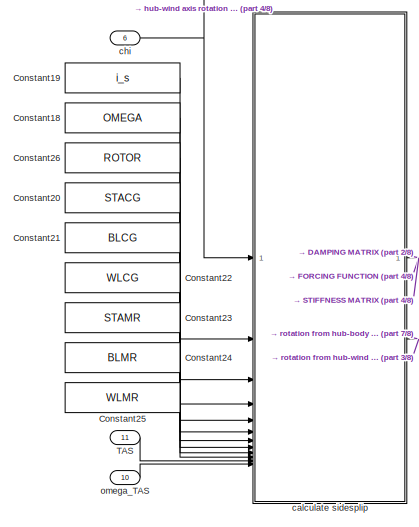
[diagram: HELICOPTER MODEL/HELICOPTER FORCES AND MOMENTS/MAIN ROTOR/FLAPPING DYNAMICS (TIP-PATH-PLANE APPROX) - part 8/8, bottom left region]
BLOCK [SubSystem] HELICOPTER MODEL/HELICOPTER FORCES AND MOMENTS/MAIN ROTOR/FLAPPING DYNAMICS (TIP-PATH-PLANE APPROX)
BLOCK [Inport] HELICOPTER MODEL/HELICOPTER FORCES AND MOMENTS/MAIN ROTOR/FLAPPING DYNAMICS (TIP-PATH-PLANE APPROX)/A1s
BLOCK [Sum] HELICOPTER MODEL/HELICOPTER FORCES AND MOMENTS/MAIN ROTOR/FLAPPING DYNAMICS (TIP-PATH-PLANE APPROX)/Add
  IconShape = rectangular
  Inputs = --+
BLOCK [Inport] HELICOPTER MODEL/HELICOPTER FORCES AND MOMENTS/MAIN ROTOR/FLAPPING DYNAMICS (TIP-PATH-PLANE APPROX)/B1s
  Port = 2
BLOCK [Constant] HELICOPTER MODEL/HELICOPTER FORCES AND MOMENTS/MAIN ROTOR/FLAPPING DYNAMICS (TIP-PATH-PLANE APPROX)/Constant
  Value = OMEGA
BLOCK [Constant] HELICOPTER MODEL/HELICOPTER FORCES AND MOMENTS/MAIN ROTOR/FLAPPING DYNAMICS (TIP-PATH-PLANE APPROX)/Constant1
  Value = GAMMA
BLOCK [Constant] HELICOPTER MODEL/HELICOPTER FORCES AND MOMENTS/MAIN ROTOR/FLAPPING DYNAMICS (TIP-PATH-PLANE APPROX)/Constant10
  Value = EPSLN
BLOCK [Constant] HELICOPTER MODEL/HELICOPTER FORCES AND MOMENTS/MAIN ROTOR/FLAPPING DYNAMICS (TIP-PATH-PLANE APPROX)/Constant11
  Value = 0
BLOCK [Constant] HELICOPTER MODEL/HELICOPTER FORCES AND MOMENTS/MAIN ROTOR/FLAPPING DYNAMICS (TIP-PATH-PLANE APPROX)/Constant12
  Value = EPSLN
BLOCK [Constant] HELICOPTER MODEL/HELICOPTER FORCES AND MOMENTS/MAIN ROTOR/FLAPPING DYNAMICS (TIP-PATH-PLANE APPROX)/Constant13
  Value = AOP
BLOCK [Constant] HELICOPTER MODEL/HELICOPTER FORCES AND MOMENTS/MAIN ROTOR/FLAPPING DYNAMICS (TIP-PATH-PLANE APPROX)/Constant14
  Value = EPSLN
BLOCK [Constant] HELICOPTER MODEL/HELICOPTER FORCES AND MOMENTS/MAIN ROTOR/FLAPPING DYNAMICS (TIP-PATH-PLANE APPROX)/Constant15
  Value = 0
BLOCK [Constant] HELICOPTER MODEL/HELICOPTER FORCES AND MOMENTS/MAIN ROTOR/FLAPPING DYNAMICS (TIP-PATH-PLANE APPROX)/Constant16
  Value = max_flap_mr
BLOCK [Constant] HELICOPTER MODEL/HELICOPTER FORCES AND MOMENTS/MAIN ROTOR/FLAPPING DYNAMICS (TIP-PATH-PLANE APPROX)/Constant17
  Value = a_0
BLOCK [Constant] HELICOPTER MODEL/HELICOPTER FORCES AND MOMENTS/MAIN ROTOR/FLAPPING DYNAMICS (TIP-PATH-PLANE APPROX)/Constant18
  Value = OMEGA
BLOCK [Constant] HELICOPTER MODEL/HELICOPTER FORCES AND MOMENTS/MAIN ROTOR/FLAPPING DYNAMICS (TIP-PATH-PLANE APPROX)/Constant19
  Value = i_s
BLOCK [Constant] HELICOPTER MODEL/HELICOPTER FORCES AND MOMENTS/MAIN ROTOR/FLAPPING DYNAMICS (TIP-PATH-PLANE APPROX)/Constant2
  Value = EPSLN
BLOCK [Constant] HELICOPTER MODEL/HELICOPTER FORCES AND MOMENTS/MAIN ROTOR/FLAPPING DYNAMICS (TIP-PATH-PLANE APPROX)/Constant20
  Value = STACG
BLOCK [Constant] HELICOPTER MODEL/HELICOPTER FORCES AND MOMENTS/MAIN ROTOR/FLAPPING DYNAMICS (TIP-PATH-PLANE APPROX)/Constant21
  Value = BLCG
BLOCK [Constant] HELICOPTER MODEL/HELICOPTER FORCES AND MOMENTS/MAIN ROTOR/FLAPPING DYNAMICS (TIP-PATH-PLANE APPROX)/Constant22
  Value = WLCG
BLOCK [Constant] HELICOPTER MODEL/HELICOPTER FORCES AND MOMENTS/MAIN ROTOR/FLAPPING DYNAMICS (TIP-PATH-PLANE APPROX)/Constant23
  Value = STAMR
BLOCK [Constant] HELICOPTER MODEL/HELICOPTER FORCES AND MOMENTS/MAIN ROTOR/FLAPPING DYNAMICS (TIP-PATH-PLANE APPROX)/Constant24
  Value = BLMR
BLOCK [Constant] HELICOPTER MODEL/HELICOPTER FORCES AND MOMENTS/MAIN ROTOR/FLAPPING DYNAMICS (TIP-PATH-PLANE APPROX)/Constant25
  Value = WLMR
BLOCK [Constant] HELICOPTER MODEL/HELICOPTER FORCES AND MOMENTS/MAIN ROTOR/FLAPPING DYNAMICS (TIP-PATH-PLANE APPROX)/Constant26
  Value = ROTOR
BLOCK [Constant] HELICOPTER MODEL/HELICOPTER FORCES AND MOMENTS/MAIN ROTOR/FLAPPING DYNAMICS (TIP-PATH-PLANE APPROX)/Constant3
  Value = AKONE
BLOCK [Constant] HELICOPTER MODEL/HELICOPTER FORCES AND MOMENTS/MAIN ROTOR/FLAPPING DYNAMICS (TIP-PATH-PLANE APPROX)/Constant4
  Value = ROTOR
BLOCK [Constant] HELICOPTER MODEL/HELICOPTER FORCES AND MOMENTS/MAIN ROTOR/FLAPPING DYNAMICS (TIP-PATH-PLANE APPROX)/Constant5
  Value = THETT
BLOCK [Constant] HELICOPTER MODEL/HELICOPTER FORCES AND MOMENTS/MAIN ROTOR/FLAPPING DYNAMICS (TIP-PATH-PLANE APPROX)/Constant6
  Value = AKBETA
BLOCK [Constant] HELICOPTER MODEL/HELICOPTER FORCES AND MOMENTS/MAIN ROTOR/FLAPPING DYNAMICS (TIP-PATH-PLANE APPROX)/Constant7
  Value = m_blade
BLOCK [Constant] HELICOPTER MODEL/HELICOPTER FORCES AND MOMENTS/MAIN ROTOR/FLAPPING DYNAMICS (TIP-PATH-PLANE APPROX)/Constant8
  Value = Jbeta
BLOCK [Constant] HELICOPTER MODEL/HELICOPTER FORCES AND MOMENTS/MAIN ROTOR/FLAPPING DYNAMICS (TIP-PATH-PLANE APPROX)/Constant9
  Value = i_s
BLOCK [SubSystem] HELICOPTER MODEL/HELICOPTER FORCES AND MOMENTS/MAIN ROTOR/FLAPPING DYNAMICS (TIP-PATH-PLANE APPROX)/DAMPING MATRIX
  ErrorFcn = Stateflow.Translate.translate
  PermitHierarchicalResolution = ExplicitOnly
  SFBlockType = MATLAB Function
  TreatAsAtomicUnit = on
BLOCK [Demux] HELICOPTER MODEL/HELICOPTER FORCES AND MOMENTS/MAIN ROTOR/FLAPPING DYNAMICS (TIP-PATH-PLANE APPROX)/DAMPING MATRIX/ Demux 
  Outputs = 1
BLOCK [S-Function] HELICOPTER MODEL/HELICOPTER FORCES AND MOMENTS/MAIN ROTOR/FLAPPING DYNAMICS (TIP-PATH-PLANE APPROX)/DAMPING MATRIX/ SFunction 
  EnableBusSupport = on
  FunctionName = sf_sfun
  PortCounts = [4 2]
  SFcnIsStateOwnerBlock = off
  SFunctionDeploymentMode = off
  Tag = Stateflow S-Function 21
BLOCK [Terminator] HELICOPTER MODEL/HELICOPTER FORCES AND MOMENTS/MAIN ROTOR/FLAPPING DYNAMICS (TIP-PATH-PLANE APPROX)/DAMPING MATRIX/ Terminator 
BLOCK [Outport] HELICOPTER MODEL/HELICOPTER FORCES AND MOMENTS/MAIN ROTOR/FLAPPING DYNAMICS (TIP-PATH-PLANE APPROX)/DAMPING MATRIX/D
BLOCK [Inport] HELICOPTER MODEL/HELICOPTER FORCES AND MOMENTS/MAIN ROTOR/FLAPPING DYNAMICS (TIP-PATH-PLANE APPROX)/DAMPING MATRIX/EPSLN
  Port = 3
BLOCK [Inport] HELICOPTER MODEL/HELICOPTER FORCES AND MOMENTS/MAIN ROTOR/FLAPPING DYNAMICS (TIP-PATH-PLANE APPROX)/DAMPING MATRIX/GAMMA
  Port = 2
BLOCK [Inport] HELICOPTER MODEL/HELICOPTER FORCES AND MOMENTS/MAIN ROTOR/FLAPPING DYNAMICS (TIP-PATH-PLANE APPROX)/DAMPING MATRIX/Mu
  Port = 4
BLOCK [Inport] HELICOPTER MODEL/HELICOPTER FORCES AND MOMENTS/MAIN ROTOR/FLAPPING DYNAMICS (TIP-PATH-PLANE APPROX)/DAMPING MATRIX/OMEGA
BLOCK [Demux] HELICOPTER MODEL/HELICOPTER FORCES AND MOMENTS/MAIN ROTOR/FLAPPING DYNAMICS (TIP-PATH-PLANE APPROX)/Demux
  Outputs = 3
BLOCK [Demux] HELICOPTER MODEL/HELICOPTER FORCES AND MOMENTS/MAIN ROTOR/FLAPPING DYNAMICS (TIP-PATH-PLANE APPROX)/Demux1
  Outputs = 3
BLOCK [Demux] HELICOPTER MODEL/HELICOPTER FORCES AND MOMENTS/MAIN ROTOR/FLAPPING DYNAMICS (TIP-PATH-PLANE APPROX)/Demux2
  Outputs = 3
BLOCK [Demux] HELICOPTER MODEL/HELICOPTER FORCES AND MOMENTS/MAIN ROTOR/FLAPPING DYNAMICS (TIP-PATH-PLANE APPROX)/Demux3
  Outputs = 3
BLOCK [Demux] HELICOPTER MODEL/HELICOPTER FORCES AND MOMENTS/MAIN ROTOR/FLAPPING DYNAMICS (TIP-PATH-PLANE APPROX)/Demux4
  Outputs = 3
BLOCK [Demux] HELICOPTER MODEL/HELICOPTER FORCES AND MOMENTS/MAIN ROTOR/FLAPPING DYNAMICS (TIP-PATH-PLANE APPROX)/Demux5
  Outputs = 3
BLOCK [Derivative] HELICOPTER MODEL/HELICOPTER FORCES AND MOMENTS/MAIN ROTOR/FLAPPING DYNAMICS (TIP-PATH-PLANE APPROX)/Derivative
BLOCK [Derivative] HELICOPTER MODEL/HELICOPTER FORCES AND MOMENTS/MAIN ROTOR/FLAPPING DYNAMICS (TIP-PATH-PLANE APPROX)/Derivative1
BLOCK [SubSystem] HELICOPTER MODEL/HELICOPTER FORCES AND MOMENTS/MAIN ROTOR/FLAPPING DYNAMICS (TIP-PATH-PLANE APPROX)/FORCING FUNCTION
  ErrorFcn = Stateflow.Translate.translate
  PermitHierarchicalResolution = ExplicitOnly
  SFBlockType = MATLAB Function
  TreatAsAtomicUnit = on
BLOCK [Demux] HELICOPTER MODEL/HELICOPTER FORCES AND MOMENTS/MAIN ROTOR/FLAPPING DYNAMICS (TIP-PATH-PLANE APPROX)/FORCING FUNCTION/ Demux 
  Outputs = 1
BLOCK [S-Function] HELICOPTER MODEL/HELICOPTER FORCES AND MOMENTS/MAIN ROTOR/FLAPPING DYNAMICS (TIP-PATH-PLANE APPROX)/FORCING FUNCTION/ SFunction 
  EnableBusSupport = on
  FunctionName = sf_sfun
  PortCounts = [19 2]
  SFcnIsStateOwnerBlock = off
  SFunctionDeploymentMode = off
  Tag = Stateflow S-Function 22
BLOCK [Terminator] HELICOPTER MODEL/HELICOPTER FORCES AND MOMENTS/MAIN ROTOR/FLAPPING DYNAMICS (TIP-PATH-PLANE APPROX)/FORCING FUNCTION/ Terminator 
BLOCK [Inport] HELICOPTER MODEL/HELICOPTER FORCES AND MOMENTS/MAIN ROTOR/FLAPPING DYNAMICS (TIP-PATH-PLANE APPROX)/FORCING FUNCTION/A1s
  Port = 10
BLOCK [Inport] HELICOPTER MODEL/HELICOPTER FORCES AND MOMENTS/MAIN ROTOR/FLAPPING DYNAMICS (TIP-PATH-PLANE APPROX)/FORCING FUNCTION/B1s
  Port = 11
BLOCK [Inport] HELICOPTER MODEL/HELICOPTER FORCES AND MOMENTS/MAIN ROTOR/FLAPPING DYNAMICS (TIP-PATH-PLANE APPROX)/FORCING FUNCTION/EPSLN
  Port = 4
BLOCK [Inport] HELICOPTER MODEL/HELICOPTER FORCES AND MOMENTS/MAIN ROTOR/FLAPPING DYNAMICS (TIP-PATH-PLANE APPROX)/FORCING FUNCTION/GAMMA
  Port = 2
BLOCK [Inport] HELICOPTER MODEL/HELICOPTER FORCES AND MOMENTS/MAIN ROTOR/FLAPPING DYNAMICS (TIP-PATH-PLANE APPROX)/FORCING FUNCTION/Jbeta
  Port = 7
BLOCK [Inport] HELICOPTER MODEL/HELICOPTER FORCES AND MOMENTS/MAIN ROTOR/FLAPPING DYNAMICS (TIP-PATH-PLANE APPROX)/FORCING FUNCTION/Mu
  Port = 5
BLOCK [Inport] HELICOPTER MODEL/HELICOPTER FORCES AND MOMENTS/MAIN ROTOR/FLAPPING DYNAMICS (TIP-PATH-PLANE APPROX)/FORCING FUNCTION/OMEGA
BLOCK [Inport] HELICOPTER MODEL/HELICOPTER FORCES AND MOMENTS/MAIN ROTOR/FLAPPING DYNAMICS (TIP-PATH-PLANE APPROX)/FORCING FUNCTION/ROTOR
  Port = 3
BLOCK [Inport] HELICOPTER MODEL/HELICOPTER FORCES AND MOMENTS/MAIN ROTOR/FLAPPING DYNAMICS (TIP-PATH-PLANE APPROX)/FORCING FUNCTION/THETT
  Port = 9
BLOCK [Inport] HELICOPTER MODEL/HELICOPTER FORCES AND MOMENTS/MAIN ROTOR/FLAPPING DYNAMICS (TIP-PATH-PLANE APPROX)/FORCING FUNCTION/Theta0
  Port = 8
BLOCK [Inport] HELICOPTER MODEL/HELICOPTER FORCES AND MOMENTS/MAIN ROTOR/FLAPPING DYNAMICS (TIP-PATH-PLANE APPROX)/FORCING FUNCTION/beta_w
  Port = 18
BLOCK [Outport] HELICOPTER MODEL/HELICOPTER FORCES AND MOMENTS/MAIN ROTOR/FLAPPING DYNAMICS (TIP-PATH-PLANE APPROX)/FORCING FUNCTION/f
BLOCK [Inport] HELICOPTER MODEL/HELICOPTER FORCES AND MOMENTS/MAIN ROTOR/FLAPPING DYNAMICS (TIP-PATH-PLANE APPROX)/FORCING FUNCTION/g
  Port = 19
BLOCK [Inport] HELICOPTER MODEL/HELICOPTER FORCES AND MOMENTS/MAIN ROTOR/FLAPPING DYNAMICS (TIP-PATH-PLANE APPROX)/FORCING FUNCTION/lambda
  Port = 12
BLOCK [Inport] HELICOPTER MODEL/HELICOPTER FORCES AND MOMENTS/MAIN ROTOR/FLAPPING DYNAMICS (TIP-PATH-PLANE APPROX)/FORCING FUNCTION/lambda_i
  Port = 13
BLOCK [Inport] HELICOPTER MODEL/HELICOPTER FORCES AND MOMENTS/MAIN ROTOR/FLAPPING DYNAMICS (TIP-PATH-PLANE APPROX)/FORCING FUNCTION/m_blade
  Port = 6
BLOCK [Inport] HELICOPTER MODEL/HELICOPTER FORCES AND MOMENTS/MAIN ROTOR/FLAPPING DYNAMICS (TIP-PATH-PLANE APPROX)/FORCING FUNCTION/pW
  Port = 14
BLOCK [Inport] HELICOPTER MODEL/HELICOPTER FORCES AND MOMENTS/MAIN ROTOR/FLAPPING DYNAMICS (TIP-PATH-PLANE APPROX)/FORCING FUNCTION/pWdot
  Port = 16
BLOCK [Inport] HELICOPTER MODEL/HELICOPTER FORCES AND MOMENTS/MAIN ROTOR/FLAPPING DYNAMICS (TIP-PATH-PLANE APPROX)/FORCING FUNCTION/qW
  Port = 15
BLOCK [Inport] HELICOPTER MODEL/HELICOPTER FORCES AND MOMENTS/MAIN ROTOR/FLAPPING DYNAMICS (TIP-PATH-PLANE APPROX)/FORCING FUNCTION/qWdot
  Port = 17
BLOCK [Integrator] HELICOPTER MODEL/HELICOPTER FORCES AND MOMENTS/MAIN ROTOR/FLAPPING DYNAMICS (TIP-PATH-PLANE APPROX)/Integrator
  InitialCondition = [0 0 0]'
BLOCK [Integrator] HELICOPTER MODEL/HELICOPTER FORCES AND MOMENTS/MAIN ROTOR/FLAPPING DYNAMICS (TIP-PATH-PLANE APPROX)/Integrator1
  InitialCondition = a_0
  InitialConditionSource = external
BLOCK [Product] HELICOPTER MODEL/HELICOPTER FORCES AND MOMENTS/MAIN ROTOR/FLAPPING DYNAMICS (TIP-PATH-PLANE APPROX)/Matrix Multiply
  Multiplication = Matrix(*)
BLOCK [Product] HELICOPTER MODEL/HELICOPTER FORCES AND MOMENTS/MAIN ROTOR/FLAPPING DYNAMICS (TIP-PATH-PLANE APPROX)/Matrix Multiply1
  Multiplication = Matrix(*)
BLOCK [Mux] HELICOPTER MODEL/HELICOPTER FORCES AND MOMENTS/MAIN ROTOR/FLAPPING DYNAMICS (TIP-PATH-PLANE APPROX)/Mux1
  DisplayOption = bar
  Inputs = 3
BLOCK [Mux] HELICOPTER MODEL/HELICOPTER FORCES AND MOMENTS/MAIN ROTOR/FLAPPING DYNAMICS (TIP-PATH-PLANE APPROX)/Mux2
  DisplayOption = bar
  Inputs = 3
BLOCK [Mux] HELICOPTER MODEL/HELICOPTER FORCES AND MOMENTS/MAIN ROTOR/FLAPPING DYNAMICS (TIP-PATH-PLANE APPROX)/Mux3
  DisplayOption = bar
  Inputs = 3
BLOCK [Reshape] HELICOPTER MODEL/HELICOPTER FORCES AND MOMENTS/MAIN ROTOR/FLAPPING DYNAMICS (TIP-PATH-PLANE APPROX)/Reshape
  OutputDimensionality = Column vector (2-D)
BLOCK [SubSystem] HELICOPTER MODEL/HELICOPTER FORCES AND MOMENTS/MAIN ROTOR/FLAPPING DYNAMICS (TIP-PATH-PLANE APPROX)/STIFFNESS MATRIX
  ErrorFcn = Stateflow.Translate.translate
  PermitHierarchicalResolution = ExplicitOnly
  SFBlockType = MATLAB Function
  TreatAsAtomicUnit = on
BLOCK [Demux] HELICOPTER MODEL/HELICOPTER FORCES AND MOMENTS/MAIN ROTOR/FLAPPING DYNAMICS (TIP-PATH-PLANE APPROX)/STIFFNESS MATRIX/ Demux 
  Outputs = 1
BLOCK [S-Function] HELICOPTER MODEL/HELICOPTER FORCES AND MOMENTS/MAIN ROTOR/FLAPPING DYNAMICS (TIP-PATH-PLANE APPROX)/STIFFNESS MATRIX/ SFunction 
  EnableBusSupport = on
  FunctionName = sf_sfun
  PortCounts = [10 2]
  SFcnIsStateOwnerBlock = off
  SFunctionDeploymentMode = off
  Tag = Stateflow S-Function 23
BLOCK [Terminator] HELICOPTER MODEL/HELICOPTER FORCES AND MOMENTS/MAIN ROTOR/FLAPPING DYNAMICS (TIP-PATH-PLANE APPROX)/STIFFNESS MATRIX/ Terminator 
BLOCK [Inport] HELICOPTER MODEL/HELICOPTER FORCES AND MOMENTS/MAIN ROTOR/FLAPPING DYNAMICS (TIP-PATH-PLANE APPROX)/STIFFNESS MATRIX/AKBETA
  Port = 7
BLOCK [Inport] HELICOPTER MODEL/HELICOPTER FORCES AND MOMENTS/MAIN ROTOR/FLAPPING DYNAMICS (TIP-PATH-PLANE APPROX)/STIFFNESS MATRIX/AKONE
  Port = 6
BLOCK [Inport] HELICOPTER MODEL/HELICOPTER FORCES AND MOMENTS/MAIN ROTOR/FLAPPING DYNAMICS (TIP-PATH-PLANE APPROX)/STIFFNESS MATRIX/EPSLN
  Port = 4
BLOCK [Inport] HELICOPTER MODEL/HELICOPTER FORCES AND MOMENTS/MAIN ROTOR/FLAPPING DYNAMICS (TIP-PATH-PLANE APPROX)/STIFFNESS MATRIX/GAMMA
  Port = 3
BLOCK [Inport] HELICOPTER MODEL/HELICOPTER FORCES AND MOMENTS/MAIN ROTOR/FLAPPING DYNAMICS (TIP-PATH-PLANE APPROX)/STIFFNESS MATRIX/Jbeta
  Port = 9
BLOCK [Outport] HELICOPTER MODEL/HELICOPTER FORCES AND MOMENTS/MAIN ROTOR/FLAPPING DYNAMICS (TIP-PATH-PLANE APPROX)/STIFFNESS MATRIX/K
BLOCK [Inport] HELICOPTER MODEL/HELICOPTER FORCES AND MOMENTS/MAIN ROTOR/FLAPPING DYNAMICS (TIP-PATH-PLANE APPROX)/STIFFNESS MATRIX/Mu
  Port = 5
BLOCK [Inport] HELICOPTER MODEL/HELICOPTER FORCES AND MOMENTS/MAIN ROTOR/FLAPPING DYNAMICS (TIP-PATH-PLANE APPROX)/STIFFNESS MATRIX/OMEGA
  Port = 2
BLOCK [Inport] HELICOPTER MODEL/HELICOPTER FORCES AND MOMENTS/MAIN ROTOR/FLAPPING DYNAMICS (TIP-PATH-PLANE APPROX)/STIFFNESS MATRIX/ROTOR
BLOCK [Inport] HELICOPTER MODEL/HELICOPTER FORCES AND MOMENTS/MAIN ROTOR/FLAPPING DYNAMICS (TIP-PATH-PLANE APPROX)/STIFFNESS MATRIX/g
  Port = 10
BLOCK [Inport] HELICOPTER MODEL/HELICOPTER FORCES AND MOMENTS/MAIN ROTOR/FLAPPING DYNAMICS (TIP-PATH-PLANE APPROX)/STIFFNESS MATRIX/m_blade
  Port = 8
BLOCK [Stop] HELICOPTER MODEL/HELICOPTER FORCES AND MOMENTS/MAIN ROTOR/FLAPPING DYNAMICS (TIP-PATH-PLANE APPROX)/Stop Simulation
  Commented = on
BLOCK [Switch] HELICOPTER MODEL/HELICOPTER FORCES AND MOMENTS/MAIN ROTOR/FLAPPING DYNAMICS (TIP-PATH-PLANE APPROX)/Switch1
  Criteria = u2 ~= 0
  InputSameDT = off
  SaturateOnIntegerOverflow = off
BLOCK [Switch] HELICOPTER MODEL/HELICOPTER FORCES AND MOMENTS/MAIN ROTOR/FLAPPING DYNAMICS (TIP-PATH-PLANE APPROX)/Switch2
  Criteria = u2 ~= 0
  InputSameDT = off
  SaturateOnIntegerOverflow = off
BLOCK [Switch] HELICOPTER MODEL/HELICOPTER FORCES AND MOMENTS/MAIN ROTOR/FLAPPING DYNAMICS (TIP-PATH-PLANE APPROX)/Switch3
  Criteria = u2 ~= 0
  InputSameDT = off
  SaturateOnIntegerOverflow = off
BLOCK [Inport] HELICOPTER MODEL/HELICOPTER FORCES AND MOMENTS/MAIN ROTOR/FLAPPING DYNAMICS (TIP-PATH-PLANE APPROX)/TAS
  Port = 11
BLOCK [Inport] HELICOPTER MODEL/HELICOPTER FORCES AND MOMENTS/MAIN ROTOR/FLAPPING DYNAMICS (TIP-PATH-PLANE APPROX)/Theta0
  Port = 3
BLOCK [Outport] HELICOPTER MODEL/HELICOPTER FORCES AND MOMENTS/MAIN ROTOR/FLAPPING DYNAMICS (TIP-PATH-PLANE APPROX)/a0
BLOCK [Outport] HELICOPTER MODEL/HELICOPTER FORCES AND MOMENTS/MAIN ROTOR/FLAPPING DYNAMICS (TIP-PATH-PLANE APPROX)/a0ddot
  Port = 7
BLOCK [Outport] HELICOPTER MODEL/HELICOPTER FORCES AND MOMENTS/MAIN ROTOR/FLAPPING DYNAMICS (TIP-PATH-PLANE APPROX)/a0dot
  Port = 4
BLOCK [Outport] HELICOPTER MODEL/HELICOPTER FORCES AND MOMENTS/MAIN ROTOR/FLAPPING DYNAMICS (TIP-PATH-PLANE APPROX)/a1
  Port = 2
BLOCK [Outport] HELICOPTER MODEL/HELICOPTER FORCES AND MOMENTS/MAIN ROTOR/FLAPPING DYNAMICS (TIP-PATH-PLANE APPROX)/a1ddot
  Port = 8
BLOCK [Outport] HELICOPTER MODEL/HELICOPTER FORCES AND MOMENTS/MAIN ROTOR/FLAPPING DYNAMICS (TIP-PATH-PLANE APPROX)/a1dot
  Port = 5
BLOCK [Outport] HELICOPTER MODEL/HELICOPTER FORCES AND MOMENTS/MAIN ROTOR/FLAPPING DYNAMICS (TIP-PATH-PLANE APPROX)/a1s
  Port = 10
BLOCK [Outport] HELICOPTER MODEL/HELICOPTER FORCES AND MOMENTS/MAIN ROTOR/FLAPPING DYNAMICS (TIP-PATH-PLANE APPROX)/b1
  Port = 3
BLOCK [Outport] HELICOPTER MODEL/HELICOPTER FORCES AND MOMENTS/MAIN ROTOR/FLAPPING DYNAMICS (TIP-PATH-PLANE APPROX)/b1ddot
  Port = 9
BLOCK [Outport] HELICOPTER MODEL/HELICOPTER FORCES AND MOMENTS/MAIN ROTOR/FLAPPING DYNAMICS (TIP-PATH-PLANE APPROX)/b1dot
  Port = 6
BLOCK [Outport] HELICOPTER MODEL/HELICOPTER FORCES AND MOMENTS/MAIN ROTOR/FLAPPING DYNAMICS (TIP-PATH-PLANE APPROX)/b1s
  Port = 11
BLOCK [SubSystem] HELICOPTER MODEL/HELICOPTER FORCES AND MOMENTS/MAIN ROTOR/FLAPPING DYNAMICS (TIP-PATH-PLANE APPROX)/calculate sidesplip
  ErrorFcn = Stateflow.Translate.translate
  PermitHierarchicalResolution = ExplicitOnly
  SFBlockType = MATLAB Function
  TreatAsAtomicUnit = on
BLOCK [Demux] HELICOPTER MODEL/HELICOPTER FORCES AND MOMENTS/MAIN ROTOR/FLAPPING DYNAMICS (TIP-PATH-PLANE APPROX)/calculate sidesplip/ Demux 
  Outputs = 1
BLOCK [S-Function] HELICOPTER MODEL/HELICOPTER FORCES AND MOMENTS/MAIN ROTOR/FLAPPING DYNAMICS (TIP-PATH-PLANE APPROX)/calculate sidesplip/ SFunction 
  EnableBusSupport = on
  FunctionName = sf_sfun
  PortCounts = [12 3]
  SFcnIsStateOwnerBlock = off
  SFunctionDeploymentMode = off
  Tag = Stateflow S-Function 24
BLOCK [Terminator] HELICOPTER MODEL/HELICOPTER FORCES AND MOMENTS/MAIN ROTOR/FLAPPING DYNAMICS (TIP-PATH-PLANE APPROX)/calculate sidesplip/ Terminator 
BLOCK [Inport] HELICOPTER MODEL/HELICOPTER FORCES AND MOMENTS/MAIN ROTOR/FLAPPING DYNAMICS (TIP-PATH-PLANE APPROX)/calculate sidesplip/BLCG
  Port = 6
BLOCK [Inport] HELICOPTER MODEL/HELICOPTER FORCES AND MOMENTS/MAIN ROTOR/FLAPPING DYNAMICS (TIP-PATH-PLANE APPROX)/calculate sidesplip/BLH
  Port = 9
BLOCK [Outport] HELICOPTER MODEL/HELICOPTER FORCES AND MOMENTS/MAIN ROTOR/FLAPPING DYNAMICS (TIP-PATH-PLANE APPROX)/calculate sidesplip/Mu
BLOCK [Inport] HELICOPTER MODEL/HELICOPTER FORCES AND MOMENTS/MAIN ROTOR/FLAPPING DYNAMICS (TIP-PATH-PLANE APPROX)/calculate sidesplip/OMEGA
  Port = 3
BLOCK [Inport] HELICOPTER MODEL/HELICOPTER FORCES AND MOMENTS/MAIN ROTOR/FLAPPING DYNAMICS (TIP-PATH-PLANE APPROX)/calculate sidesplip/ROTOR
  Port = 4
BLOCK [Inport] HELICOPTER MODEL/HELICOPTER FORCES AND MOMENTS/MAIN ROTOR/FLAPPING DYNAMICS (TIP-PATH-PLANE APPROX)/calculate sidesplip/STACG
  Port = 5
BLOCK [Inport] HELICOPTER MODEL/HELICOPTER FORCES AND MOMENTS/MAIN ROTOR/FLAPPING DYNAMICS (TIP-PATH-PLANE APPROX)/calculate sidesplip/STAH
  Port = 8
BLOCK [Inport] HELICOPTER MODEL/HELICOPTER FORCES AND MOMENTS/MAIN ROTOR/FLAPPING DYNAMICS (TIP-PATH-PLANE APPROX)/calculate sidesplip/TAS
  Port = 11
BLOCK [Inport] HELICOPTER MODEL/HELICOPTER FORCES AND MOMENTS/MAIN ROTOR/FLAPPING DYNAMICS (TIP-PATH-PLANE APPROX)/calculate sidesplip/WLCG
  Port = 7
BLOCK [Inport] HELICOPTER MODEL/HELICOPTER FORCES AND MOMENTS/MAIN ROTOR/FLAPPING DYNAMICS (TIP-PATH-PLANE APPROX)/calculate sidesplip/WLH
  Port = 10
BLOCK [Outport] HELICOPTER MODEL/HELICOPTER FORCES AND MOMENTS/MAIN ROTOR/FLAPPING DYNAMICS (TIP-PATH-PLANE APPROX)/calculate sidesplip/beta_w
  Port = 2
BLOCK [Inport] HELICOPTER MODEL/HELICOPTER FORCES AND MOMENTS/MAIN ROTOR/FLAPPING DYNAMICS (TIP-PATH-PLANE APPROX)/calculate sidesplip/chi
BLOCK [Inport] HELICOPTER MODEL/HELICOPTER FORCES AND MOMENTS/MAIN ROTOR/FLAPPING DYNAMICS (TIP-PATH-PLANE APPROX)/calculate sidesplip/i_s
  Port = 2
BLOCK [Inport] HELICOPTER MODEL/HELICOPTER FORCES AND MOMENTS/MAIN ROTOR/FLAPPING DYNAMICS (TIP-PATH-PLANE APPROX)/calculate sidesplip/omega_TAS
  Port = 12
BLOCK [Inport] HELICOPTER MODEL/HELICOPTER FORCES AND MOMENTS/MAIN ROTOR/FLAPPING DYNAMICS (TIP-PATH-PLANE APPROX)/chi
  Port = 6
BLOCK [SubSystem] HELICOPTER MODEL/HELICOPTER FORCES AND MOMENTS/MAIN ROTOR/FLAPPING DYNAMICS (TIP-PATH-PLANE APPROX)/flapping restraint
  ErrorFcn = Stateflow.Translate.translate
  PermitHierarchicalResolution = ExplicitOnly
  SFBlockType = MATLAB Function
  TreatAsAtomicUnit = on
BLOCK [Demux] HELICOPTER MODEL/HELICOPTER FORCES AND MOMENTS/MAIN ROTOR/FLAPPING DYNAMICS (TIP-PATH-PLANE APPROX)/flapping restraint/ Demux 
  Outputs = 1
BLOCK [S-Function] HELICOPTER MODEL/HELICOPTER FORCES AND MOMENTS/MAIN ROTOR/FLAPPING DYNAMICS (TIP-PATH-PLANE APPROX)/flapping restraint/ SFunction 
  EnableBusSupport = on
  FunctionName = sf_sfun
  PortCounts = [2 3]
  SFcnIsStateOwnerBlock = off
  SFunctionDeploymentMode = off
  Tag = Stateflow S-Function 25
BLOCK [Terminator] HELICOPTER MODEL/HELICOPTER FORCES AND MOMENTS/MAIN ROTOR/FLAPPING DYNAMICS (TIP-PATH-PLANE APPROX)/flapping restraint/ Terminator 
BLOCK [Outport] HELICOPTER MODEL/HELICOPTER FORCES AND MOMENTS/MAIN ROTOR/FLAPPING DYNAMICS (TIP-PATH-PLANE APPROX)/flapping restraint/a
BLOCK [Inport] HELICOPTER MODEL/HELICOPTER FORCES AND MOMENTS/MAIN ROTOR/FLAPPING DYNAMICS (TIP-PATH-PLANE APPROX)/flapping restraint/a 
  Port = 2
BLOCK [Inport] HELICOPTER MODEL/HELICOPTER FORCES AND MOMENTS/MAIN ROTOR/FLAPPING DYNAMICS (TIP-PATH-PLANE APPROX)/flapping restraint/max_flap
BLOCK [Outport] HELICOPTER MODEL/HELICOPTER FORCES AND MOMENTS/MAIN ROTOR/FLAPPING DYNAMICS (TIP-PATH-PLANE APPROX)/flapping restraint/stop
  Port = 2
BLOCK [Inport] HELICOPTER MODEL/HELICOPTER FORCES AND MOMENTS/MAIN ROTOR/FLAPPING DYNAMICS (TIP-PATH-PLANE APPROX)/g
  Port = 7
BLOCK [SubSystem] HELICOPTER MODEL/HELICOPTER FORCES AND MOMENTS/MAIN ROTOR/FLAPPING DYNAMICS (TIP-PATH-PLANE APPROX)/hub-wind axis rotation of angular rates
  ErrorFcn = Stateflow.Translate.translate
  PermitHierarchicalResolution = ExplicitOnly
  SFBlockType = MATLAB Function
  TreatAsAtomicUnit = on
BLOCK [Demux] HELICOPTER MODEL/HELICOPTER FORCES AND MOMENTS/MAIN ROTOR/FLAPPING DYNAMICS (TIP-PATH-PLANE APPROX)/hub-wind axis rotation of angular rates/ Demux 
  Outputs = 1
BLOCK [S-Function] HELICOPTER MODEL/HELICOPTER FORCES AND MOMENTS/MAIN ROTOR/FLAPPING DYNAMICS (TIP-PATH-PLANE APPROX)/hub-wind axis rotation of angular rates/ SFunction 
  EnableBusSupport = on
  FunctionName = sf_sfun
  PortCounts = [5 5]
  SFcnIsStateOwnerBlock = off
  SFunctionDeploymentMode = off
  Tag = Stateflow S-Function 26
BLOCK [Terminator] HELICOPTER MODEL/HELICOPTER FORCES AND MOMENTS/MAIN ROTOR/FLAPPING DYNAMICS (TIP-PATH-PLANE APPROX)/hub-wind axis rotation of angular rates/ Terminator 
BLOCK [Inport] HELICOPTER MODEL/HELICOPTER FORCES AND MOMENTS/MAIN ROTOR/FLAPPING DYNAMICS (TIP-PATH-PLANE APPROX)/hub-wind axis rotation of angular rates/beta_w
  Port = 5
BLOCK [Inport] HELICOPTER MODEL/HELICOPTER FORCES AND MOMENTS/MAIN ROTOR/FLAPPING DYNAMICS (TIP-PATH-PLANE APPROX)/hub-wind axis rotation of angular rates/chi
BLOCK [Inport] HELICOPTER MODEL/HELICOPTER FORCES AND MOMENTS/MAIN ROTOR/FLAPPING DYNAMICS (TIP-PATH-PLANE APPROX)/hub-wind axis rotation of angular rates/i_s
  Port = 4
BLOCK [Inport] HELICOPTER MODEL/HELICOPTER FORCES AND MOMENTS/MAIN ROTOR/FLAPPING DYNAMICS (TIP-PATH-PLANE APPROX)/hub-wind axis rotation of angular rates/omega
  Port = 2
BLOCK [Inport] HELICOPTER MODEL/HELICOPTER FORCES AND MOMENTS/MAIN ROTOR/FLAPPING DYNAMICS (TIP-PATH-PLANE APPROX)/hub-wind axis rotation of angular rates/omegadot
  Port = 3
BLOCK [Outport] HELICOPTER MODEL/HELICOPTER FORCES AND MOMENTS/MAIN ROTOR/FLAPPING DYNAMICS (TIP-PATH-PLANE APPROX)/hub-wind axis rotation of angular rates/pW
BLOCK [Outport] HELICOPTER MODEL/HELICOPTER FORCES AND MOMENTS/MAIN ROTOR/FLAPPING DYNAMICS (TIP-PATH-PLANE APPROX)/hub-wind axis rotation of angular rates/pWdot
  Port = 3
BLOCK [Outport] HELICOPTER MODEL/HELICOPTER FORCES AND MOMENTS/MAIN ROTOR/FLAPPING DYNAMICS (TIP-PATH-PLANE APPROX)/hub-wind axis rotation of angular rates/qW
  Port = 2
BLOCK [Outport] HELICOPTER MODEL/HELICOPTER FORCES AND MOMENTS/MAIN ROTOR/FLAPPING DYNAMICS (TIP-PATH-PLANE APPROX)/hub-wind axis rotation of angular rates/qWdot
  Port = 4
BLOCK [Inport] HELICOPTER MODEL/HELICOPTER FORCES AND MOMENTS/MAIN ROTOR/FLAPPING DYNAMICS (TIP-PATH-PLANE APPROX)/lambda
  Port = 5
BLOCK [Inport] HELICOPTER MODEL/HELICOPTER FORCES AND MOMENTS/MAIN ROTOR/FLAPPING DYNAMICS (TIP-PATH-PLANE APPROX)/lambda_i
  Port = 4
BLOCK [Inport] HELICOPTER MODEL/HELICOPTER FORCES AND MOMENTS/MAIN ROTOR/FLAPPING DYNAMICS (TIP-PATH-PLANE APPROX)/omega
  Port = 9
BLOCK [Inport] HELICOPTER MODEL/HELICOPTER FORCES AND MOMENTS/MAIN ROTOR/FLAPPING DYNAMICS (TIP-PATH-PLANE APPROX)/omega_TAS
  Port = 10
BLOCK [Inport] HELICOPTER MODEL/HELICOPTER FORCES AND MOMENTS/MAIN ROTOR/FLAPPING DYNAMICS (TIP-PATH-PLANE APPROX)/omegadot
  Port = 8
BLOCK [SubSystem] HELICOPTER MODEL/HELICOPTER FORCES AND MOMENTS/MAIN ROTOR/FLAPPING DYNAMICS (TIP-PATH-PLANE APPROX)/rotation from hub-body to hub-wind
  ErrorFcn = Stateflow.Translate.translate
  PermitHierarchicalResolution = ExplicitOnly
  SFBlockType = MATLAB Function
  TreatAsAtomicUnit = on
BLOCK [Demux] HELICOPTER MODEL/HELICOPTER FORCES AND MOMENTS/MAIN ROTOR/FLAPPING DYNAMICS (TIP-PATH-PLANE APPROX)/rotation from hub-body to hub-wind/ Demux 
  Outputs = 1
BLOCK [S-Function] HELICOPTER MODEL/HELICOPTER FORCES AND MOMENTS/MAIN ROTOR/FLAPPING DYNAMICS (TIP-PATH-PLANE APPROX)/rotation from hub-body to hub-wind/ SFunction 
  EnableBusSupport = on
  FunctionName = sf_sfun
  PortCounts = [2 2]
  SFcnIsStateOwnerBlock = off
  SFunctionDeploymentMode = off
  Tag = Stateflow S-Function 27
BLOCK [Terminator] HELICOPTER MODEL/HELICOPTER FORCES AND MOMENTS/MAIN ROTOR/FLAPPING DYNAMICS (TIP-PATH-PLANE APPROX)/rotation from hub-body to hub-wind/ Terminator 
BLOCK [Inport] HELICOPTER MODEL/HELICOPTER FORCES AND MOMENTS/MAIN ROTOR/FLAPPING DYNAMICS (TIP-PATH-PLANE APPROX)/rotation from hub-body to hub-wind/a_b
BLOCK [Outport] HELICOPTER MODEL/HELICOPTER FORCES AND MOMENTS/MAIN ROTOR/FLAPPING DYNAMICS (TIP-PATH-PLANE APPROX)/rotation from hub-body to hub-wind/a_w
BLOCK [Inport] HELICOPTER MODEL/HELICOPTER FORCES AND MOMENTS/MAIN ROTOR/FLAPPING DYNAMICS (TIP-PATH-PLANE APPROX)/rotation from hub-body to hub-wind/beta_w
  Port = 2
BLOCK [SubSystem] HELICOPTER MODEL/HELICOPTER FORCES AND MOMENTS/MAIN ROTOR/FLAPPING DYNAMICS (TIP-PATH-PLANE APPROX)/rotation from hub-wind to hub-body
  ErrorFcn = Stateflow.Translate.translate
  PermitHierarchicalResolution = ExplicitOnly
  SFBlockType = MATLAB Function
  TreatAsAtomicUnit = on
BLOCK [Demux] HELICOPTER MODEL/HELICOPTER FORCES AND MOMENTS/MAIN ROTOR/FLAPPING DYNAMICS (TIP-PATH-PLANE APPROX)/rotation from hub-wind to hub-body/ Demux 
  Outputs = 1
BLOCK [S-Function] HELICOPTER MODEL/HELICOPTER FORCES AND MOMENTS/MAIN ROTOR/FLAPPING DYNAMICS (TIP-PATH-PLANE APPROX)/rotation from hub-wind to hub-body/ SFunction 
  EnableBusSupport = on
  FunctionName = sf_sfun
  PortCounts = [2 3]
  SFcnIsStateOwnerBlock = off
  SFunctionDeploymentMode = off
  Tag = Stateflow S-Function 28
BLOCK [Terminator] HELICOPTER MODEL/HELICOPTER FORCES AND MOMENTS/MAIN ROTOR/FLAPPING DYNAMICS (TIP-PATH-PLANE APPROX)/rotation from hub-wind to hub-body/ Terminator 
BLOCK [Inport] HELICOPTER MODEL/HELICOPTER FORCES AND MOMENTS/MAIN ROTOR/FLAPPING DYNAMICS (TIP-PATH-PLANE APPROX)/rotation from hub-wind to hub-body/a
BLOCK [Outport] HELICOPTER MODEL/HELICOPTER FORCES AND MOMENTS/MAIN ROTOR/FLAPPING DYNAMICS (TIP-PATH-PLANE APPROX)/rotation from hub-wind to hub-body/a1s
BLOCK [Outport] HELICOPTER MODEL/HELICOPTER FORCES AND MOMENTS/MAIN ROTOR/FLAPPING DYNAMICS (TIP-PATH-PLANE APPROX)/rotation from hub-wind to hub-body/b1s
  Port = 2
BLOCK [Inport] HELICOPTER MODEL/HELICOPTER FORCES AND MOMENTS/MAIN ROTOR/FLAPPING DYNAMICS (TIP-PATH-PLANE APPROX)/rotation from hub-wind to hub-body/beta_w
  Port = 2
BLOCK [Outport] HELICOPTER MODEL/HELICOPTER FORCES AND MOMENTS/MAIN ROTOR/F_rotor
BLOCK [Gain] HELICOPTER MODEL/HELICOPTER FORCES AND MOMENTS/MAIN ROTOR/Gain
  Gain = 180/pi
BLOCK [Gain] HELICOPTER MODEL/HELICOPTER FORCES AND MOMENTS/MAIN ROTOR/Gain1
  Gain = 180/pi
BLOCK [Gain] HELICOPTER MODEL/HELICOPTER FORCES AND MOMENTS/MAIN ROTOR/Gain2
  Gain = 180/pi
BLOCK [Goto] HELICOPTER MODEL/HELICOPTER FORCES AND MOMENTS/MAIN ROTOR/Goto
  GotoTag = flap
  TagVisibility = global
BLOCK [Outport] HELICOPTER MODEL/HELICOPTER FORCES AND MOMENTS/MAIN ROTOR/M_rotor
  Port = 2
BLOCK [Mux] HELICOPTER MODEL/HELICOPTER FORCES AND MOMENTS/MAIN ROTOR/Mux
  DisplayOption = bar
  Inputs = 3
BLOCK [Reshape] HELICOPTER MODEL/HELICOPTER FORCES AND MOMENTS/MAIN ROTOR/Reshape
  OutputDimensionality = Column vector (2-D)
BLOCK [Scope] HELICOPTER MODEL/HELICOPTER FORCES AND MOMENTS/MAIN ROTOR/Scope
  Floating = off
  NumInputPorts = 1
  ScopeSpecificationString = Simulink.scopes.TimeScopeBlockCfg('CurrentConfiguration', extmgr.ConfigurationSet(extmgr.Configuration('Core','General UI',true),extmgr.Configuration('Core','Source UI',true),extmgr.Configuration('Sources','WiredSimulink',true,'DataLoggingVariableName','ScopeData1'),extmgr.Configuration('Visuals','Time Domain',true,'SerializedDisplays',{struct('MinYLimReal','-4.1921','MaxYLimReal','5.01565','YLabe...<+1504ch>
BLOCK [SubSystem] HELICOPTER MODEL/HELICOPTER FORCES AND MOMENTS/MAIN ROTOR/Stop simulation if main rotor hub load limit is exceeded
BLOCK [Reference] HELICOPTER MODEL/HELICOPTER FORCES AND MOMENTS/MAIN ROTOR/Stop simulation if main rotor hub load limit is exceeded/Compare To Constant  REF=simulink/Logic and Bit
Operations/Compare
To Constant
  SourceBlock = simulink/Logic and Bit\nOperations/Compare\nTo Constant
  SourceType = Compare To Constant
BLOCK [SubSystem] HELICOPTER MODEL/HELICOPTER FORCES AND MOMENTS/MAIN ROTOR/Stop simulation if main rotor hub load limit is exceeded/MATLAB Function
  ErrorFcn = Stateflow.Translate.translate
  PermitHierarchicalResolution = ExplicitOnly
  SFBlockType = MATLAB Function
  TreatAsAtomicUnit = on
BLOCK [Demux] HELICOPTER MODEL/HELICOPTER FORCES AND MOMENTS/MAIN ROTOR/Stop simulation if main rotor hub load limit is exceeded/MATLAB Function/ Demux 
  Outputs = 1
BLOCK [S-Function] HELICOPTER MODEL/HELICOPTER FORCES AND MOMENTS/MAIN ROTOR/Stop simulation if main rotor hub load limit is exceeded/MATLAB Function/ SFunction 
  EnableBusSupport = on
  FunctionName = sf_sfun
  PortCounts = [1 1]
  SFcnIsStateOwnerBlock = off
  SFunctionDeploymentMode = off
  Tag = Stateflow S-Function 16
BLOCK [Terminator] HELICOPTER MODEL/HELICOPTER FORCES AND MOMENTS/MAIN ROTOR/Stop simulation if main rotor hub load limit is exceeded/MATLAB Function/ Terminator 
BLOCK [Inport] HELICOPTER MODEL/HELICOPTER FORCES AND MOMENTS/MAIN ROTOR/Stop simulation if main rotor hub load limit is exceeded/MATLAB Function/u
BLOCK [Scope] HELICOPTER MODEL/HELICOPTER FORCES AND MOMENTS/MAIN ROTOR/Stop simulation if main rotor hub load limit is exceeded/Scope
  Floating = off
  NumInputPorts = 1
  ScopeSpecificationString = Simulink.scopes.TimeScopeBlockCfg('CurrentConfiguration', extmgr.ConfigurationSet(extmgr.Configuration('Core','General UI',true),extmgr.Configuration('Core','Source UI',true),extmgr.Configuration('Sources','WiredSimulink',true,'DataLoggingVariableName','ScopeData1'),extmgr.Configuration('Visuals','Time Domain',true,'SerializedDisplays',{struct('MinYLimReal','89886.17039','MaxYLimReal','90331.14002...<+1536ch>
BLOCK [Stop] HELICOPTER MODEL/HELICOPTER FORCES AND MOMENTS/MAIN ROTOR/Stop simulation if main rotor hub load limit is exceeded/Stop Simulation
  Commented = on
BLOCK [Inport] HELICOPTER MODEL/HELICOPTER FORCES AND MOMENTS/MAIN ROTOR/Stop simulation if main rotor hub load limit is exceeded/T
BLOCK [SubSystem] HELICOPTER MODEL/HELICOPTER FORCES AND MOMENTS/MAIN ROTOR/Stop simulation if maximum transmission power rating is exceeded
BLOCK [Reference] HELICOPTER MODEL/HELICOPTER FORCES AND MOMENTS/MAIN ROTOR/Stop simulation if maximum transmission power rating is exceeded/Compare To Constant  REF=simulink/Logic and Bit
Operations/Compare
To Constant
  SourceBlock = simulink/Logic and Bit\nOperations/Compare\nTo Constant
  SourceType = Compare To Constant
BLOCK [Constant] HELICOPTER MODEL/HELICOPTER FORCES AND MOMENTS/MAIN ROTOR/Stop simulation if maximum transmission power rating is exceeded/Constant
  Value = OMEGA
BLOCK [SubSystem] HELICOPTER MODEL/HELICOPTER FORCES AND MOMENTS/MAIN ROTOR/Stop simulation if maximum transmission power rating is exceeded/MATLAB Function
  ErrorFcn = Stateflow.Translate.translate
  PermitHierarchicalResolution = ExplicitOnly
  SFBlockType = MATLAB Function
  TreatAsAtomicUnit = on
BLOCK [Demux] HELICOPTER MODEL/HELICOPTER FORCES AND MOMENTS/MAIN ROTOR/Stop simulation if maximum transmission power rating is exceeded/MATLAB Function/ Demux 
  Outputs = 1
BLOCK [S-Function] HELICOPTER MODEL/HELICOPTER FORCES AND MOMENTS/MAIN ROTOR/Stop simulation if maximum transmission power rating is exceeded/MATLAB Function/ SFunction 
  EnableBusSupport = on
  FunctionName = sf_sfun
  PortCounts = [1 1]
  SFcnIsStateOwnerBlock = off
  SFunctionDeploymentMode = off
  Tag = Stateflow S-Function 13
BLOCK [Terminator] HELICOPTER MODEL/HELICOPTER FORCES AND MOMENTS/MAIN ROTOR/Stop simulation if maximum transmission power rating is exceeded/MATLAB Function/ Terminator 
BLOCK [Inport] HELICOPTER MODEL/HELICOPTER FORCES AND MOMENTS/MAIN ROTOR/Stop simulation if maximum transmission power rating is exceeded/MATLAB Function/u
BLOCK [Product] HELICOPTER MODEL/HELICOPTER FORCES AND MOMENTS/MAIN ROTOR/Stop simulation if maximum transmission power rating is exceeded/Product
BLOCK [Inport] HELICOPTER MODEL/HELICOPTER FORCES AND MOMENTS/MAIN ROTOR/Stop simulation if maximum transmission power rating is exceeded/Q
BLOCK [Scope] HELICOPTER MODEL/HELICOPTER FORCES AND MOMENTS/MAIN ROTOR/Stop simulation if maximum transmission power rating is exceeded/Scope
  Floating = off
  NumInputPorts = 1
  ScopeSpecificationString = Simulink.scopes.TimeScopeBlockCfg('CurrentConfiguration', extmgr.ConfigurationSet(extmgr.Configuration('Core','General UI',true),extmgr.Configuration('Core','Source UI',true),extmgr.Configuration('Sources','WiredSimulink',true,'DataLoggingVariableName','ScopeData1'),extmgr.Configuration('Visuals','Time Domain',true,'SerializedDisplays',{struct('MinYLimReal','0','MaxYLimReal','7000000','YLabelReal'...<+1538ch>
BLOCK [Stop] HELICOPTER MODEL/HELICOPTER FORCES AND MOMENTS/MAIN ROTOR/Stop simulation if maximum transmission power rating is exceeded/Stop Simulation
  Commented = on
BLOCK [SubSystem] HELICOPTER MODEL/HELICOPTER FORCES AND MOMENTS/MAIN ROTOR/Stop simulation if retreating blade stalls 
  Commented = on
BLOCK [Reference] HELICOPTER MODEL/HELICOPTER FORCES AND MOMENTS/MAIN ROTOR/Stop simulation if retreating blade stalls /Compare To Constant  REF=simulink/Logic and Bit
Operations/Compare
To Constant
  SourceBlock = simulink/Logic and Bit\nOperations/Compare\nTo Constant
  SourceType = Compare To Constant
BLOCK [SubSystem] HELICOPTER MODEL/HELICOPTER FORCES AND MOMENTS/MAIN ROTOR/Stop simulation if retreating blade stalls /MATLAB Function
  ErrorFcn = Stateflow.Translate.translate
  PermitHierarchicalResolution = ExplicitOnly
  SFBlockType = MATLAB Function
  TreatAsAtomicUnit = on
BLOCK [Demux] HELICOPTER MODEL/HELICOPTER FORCES AND MOMENTS/MAIN ROTOR/Stop simulation if retreating blade stalls /MATLAB Function/ Demux 
  Outputs = 1
BLOCK [S-Function] HELICOPTER MODEL/HELICOPTER FORCES AND MOMENTS/MAIN ROTOR/Stop simulation if retreating blade stalls /MATLAB Function/ SFunction 
  EnableBusSupport = on
  FunctionName = sf_sfun
  PortCounts = [1 1]
  SFcnIsStateOwnerBlock = off
  SFunctionDeploymentMode = off
  Tag = Stateflow S-Function 19
BLOCK [Terminator] HELICOPTER MODEL/HELICOPTER FORCES AND MOMENTS/MAIN ROTOR/Stop simulation if retreating blade stalls /MATLAB Function/ Terminator 
BLOCK [Inport] HELICOPTER MODEL/HELICOPTER FORCES AND MOMENTS/MAIN ROTOR/Stop simulation if retreating blade stalls /MATLAB Function/u
BLOCK [SubSystem] HELICOPTER MODEL/HELICOPTER FORCES AND MOMENTS/MAIN ROTOR/Stop simulation if retreating blade stalls /MATLAB Function1
  ErrorFcn = Stateflow.Translate.translate
  PermitHierarchicalResolution = ExplicitOnly
  SFBlockType = MATLAB Function
  TreatAsAtomicUnit = on
BLOCK [Demux] HELICOPTER MODEL/HELICOPTER FORCES AND MOMENTS/MAIN ROTOR/Stop simulation if retreating blade stalls /MATLAB Function1/ Demux 
  Outputs = 1
BLOCK [S-Function] HELICOPTER MODEL/HELICOPTER FORCES AND MOMENTS/MAIN ROTOR/Stop simulation if retreating blade stalls /MATLAB Function1/ SFunction 
  EnableBusSupport = on
  FunctionName = sf_sfun
  PortCounts = [1 2]
  SFcnIsStateOwnerBlock = off
  SFunctionDeploymentMode = off
  Tag = Stateflow S-Function 20
BLOCK [Terminator] HELICOPTER MODEL/HELICOPTER FORCES AND MOMENTS/MAIN ROTOR/Stop simulation if retreating blade stalls /MATLAB Function1/ Terminator 
BLOCK [Inport] HELICOPTER MODEL/HELICOPTER FORCES AND MOMENTS/MAIN ROTOR/Stop simulation if retreating blade stalls /MATLAB Function1/alpha_loc
BLOCK [Outport] HELICOPTER MODEL/HELICOPTER FORCES AND MOMENTS/MAIN ROTOR/Stop simulation if retreating blade stalls /MATLAB Function1/alpha_max
BLOCK [Scope] HELICOPTER MODEL/HELICOPTER FORCES AND MOMENTS/MAIN ROTOR/Stop simulation if retreating blade stalls /Scope
  Floating = off
  NumInputPorts = 1
  ScopeSpecificationString = Simulink.scopes.TimeScopeBlockCfg('CurrentConfiguration', extmgr.ConfigurationSet(extmgr.Configuration('Core','General UI',true),extmgr.Configuration('Core','Source UI',true),extmgr.Configuration('Sources','WiredSimulink',true,'DataLoggingVariableName','ScopeData1'),extmgr.Configuration('Visuals','Time Domain',true,'SerializedDisplays',{struct('MinYLimReal','119.56828606','MaxYLimReal','119.568286...<+1502ch>
BLOCK [Stop] HELICOPTER MODEL/HELICOPTER FORCES AND MOMENTS/MAIN ROTOR/Stop simulation if retreating blade stalls /Stop Simulation
  Commented = on
BLOCK [Inport] HELICOPTER MODEL/HELICOPTER FORCES AND MOMENTS/MAIN ROTOR/Stop simulation if retreating blade stalls /alpha_loc
BLOCK [Inport] HELICOPTER MODEL/HELICOPTER FORCES AND MOMENTS/MAIN ROTOR/TAS
  Port = 2
BLOCK [Inport] HELICOPTER MODEL/HELICOPTER FORCES AND MOMENTS/MAIN ROTOR/Theta0
  Port = 8
BLOCK [ToWorkspace] HELICOPTER MODEL/HELICOPTER FORCES AND MOMENTS/MAIN ROTOR/To Workspace
  FixptAsFi = on
  MaxDataPoints = inf
  SampleTime = -1
  VariableName = thrust_mr
BLOCK [ToWorkspace] HELICOPTER MODEL/HELICOPTER FORCES AND MOMENTS/MAIN ROTOR/To Workspace1
  FixptAsFi = on
  MaxDataPoints = inf
  SampleTime = -1
  VariableName = flapping
BLOCK [Inport] HELICOPTER MODEL/HELICOPTER FORCES AND MOMENTS/MAIN ROTOR/g
  Port = 9
BLOCK [Outport] HELICOPTER MODEL/HELICOPTER FORCES AND MOMENTS/MAIN ROTOR/lambda_i
  Port = 3
BLOCK [MATLABFcn] HELICOPTER MODEL/HELICOPTER FORCES AND MOMENTS/MAIN ROTOR/modulus 
  MATLABFcn = sqrt(u(1)^2+u(2)^2+u(3)^2)
BLOCK [Inport] HELICOPTER MODEL/HELICOPTER FORCES AND MOMENTS/MAIN ROTOR/omega
  Port = 4
BLOCK [Inport] HELICOPTER MODEL/HELICOPTER FORCES AND MOMENTS/MAIN ROTOR/omega_TAS
  Port = 3
BLOCK [Inport] HELICOPTER MODEL/HELICOPTER FORCES AND MOMENTS/MAIN ROTOR/omegadot
  Port = 5
BLOCK [Inport] HELICOPTER MODEL/HELICOPTER FORCES AND MOMENTS/MAIN ROTOR/rho
BLOCK [Outport] HELICOPTER MODEL/HELICOPTER FORCES AND MOMENTS/Moments
  Port = 2
BLOCK [SubSystem] HELICOPTER MODEL/HELICOPTER FORCES AND MOMENTS/STABILIZERS 
BLOCK [Sum] HELICOPTER MODEL/HELICOPTER FORCES AND MOMENTS/STABILIZERS /Add
  IconShape = rectangular
BLOCK [Sum] HELICOPTER MODEL/HELICOPTER FORCES AND MOMENTS/STABILIZERS /Add1
  IconShape = rectangular
BLOCK [Constant] HELICOPTER MODEL/HELICOPTER FORCES AND MOMENTS/STABILIZERS /Constant
  Value = STAHS
BLOCK [Constant] HELICOPTER MODEL/HELICOPTER FORCES AND MOMENTS/STABILIZERS /Constant1
  Value = STAVS
BLOCK [Constant] HELICOPTER MODEL/HELICOPTER FORCES AND MOMENTS/STABILIZERS /Constant10
  Value = CL_max_hs
BLOCK [Constant] HELICOPTER MODEL/HELICOPTER FORCES AND MOMENTS/STABILIZERS /Constant11
  Value = e_hs
BLOCK [Constant] HELICOPTER MODEL/HELICOPTER FORCES AND MOMENTS/STABILIZERS /Constant12
  Value = a_hs
BLOCK [Constant] HELICOPTER MODEL/HELICOPTER FORCES AND MOMENTS/STABILIZERS /Constant13
  Value = CL_max_vs
BLOCK [Constant] HELICOPTER MODEL/HELICOPTER FORCES AND MOMENTS/STABILIZERS /Constant14
  Value = e_vs
BLOCK [Constant] HELICOPTER MODEL/HELICOPTER FORCES AND MOMENTS/STABILIZERS /Constant15
  Value = a_vs
BLOCK [Constant] HELICOPTER MODEL/HELICOPTER FORCES AND MOMENTS/STABILIZERS /Constant16
  Value = BLVS
BLOCK [Constant] HELICOPTER MODEL/HELICOPTER FORCES AND MOMENTS/STABILIZERS /Constant17
  Value = WLVS
BLOCK [Constant] HELICOPTER MODEL/HELICOPTER FORCES AND MOMENTS/STABILIZERS /Constant18
  Value = STACG
BLOCK [Constant] HELICOPTER MODEL/HELICOPTER FORCES AND MOMENTS/STABILIZERS /Constant19
  Value = BLCG
BLOCK [Constant] HELICOPTER MODEL/HELICOPTER FORCES AND MOMENTS/STABILIZERS /Constant2
  Value = BLHS
BLOCK [Constant] HELICOPTER MODEL/HELICOPTER FORCES AND MOMENTS/STABILIZERS /Constant20
  Value = WLCG
BLOCK [Constant] HELICOPTER MODEL/HELICOPTER FORCES AND MOMENTS/STABILIZERS /Constant21
  Value = i_vs
BLOCK [Constant] HELICOPTER MODEL/HELICOPTER FORCES AND MOMENTS/STABILIZERS /Constant22
  Value = S_vs
BLOCK [Constant] HELICOPTER MODEL/HELICOPTER FORCES AND MOMENTS/STABILIZERS /Constant23
  Value = AR_vs
BLOCK [Constant] HELICOPTER MODEL/HELICOPTER FORCES AND MOMENTS/STABILIZERS /Constant24
  Value = Lambda_vs
BLOCK [Constant] HELICOPTER MODEL/HELICOPTER FORCES AND MOMENTS/STABILIZERS /Constant25
  Value = kv_tr
BLOCK [Constant] HELICOPTER MODEL/HELICOPTER FORCES AND MOMENTS/STABILIZERS /Constant26
  Value = Lambda_hs
BLOCK [Constant] HELICOPTER MODEL/HELICOPTER FORCES AND MOMENTS/STABILIZERS /Constant27
  Value = OMEGA
BLOCK [Constant] HELICOPTER MODEL/HELICOPTER FORCES AND MOMENTS/STABILIZERS /Constant28
  Value = ROTOR
BLOCK [Constant] HELICOPTER MODEL/HELICOPTER FORCES AND MOMENTS/STABILIZERS /Constant29
  Value = OMEGATR
BLOCK [Constant] HELICOPTER MODEL/HELICOPTER FORCES AND MOMENTS/STABILIZERS /Constant3
  Value = WLHS
BLOCK [Constant] HELICOPTER MODEL/HELICOPTER FORCES AND MOMENTS/STABILIZERS /Constant30
  Value = ROTORTR
BLOCK [Constant] HELICOPTER MODEL/HELICOPTER FORCES AND MOMENTS/STABILIZERS /Constant4
  Value = STACG
BLOCK [Constant] HELICOPTER MODEL/HELICOPTER FORCES AND MOMENTS/STABILIZERS /Constant5
  Value = BLCG
BLOCK [Constant] HELICOPTER MODEL/HELICOPTER FORCES AND MOMENTS/STABILIZERS /Constant6
  Value = WLCG
BLOCK [Constant] HELICOPTER MODEL/HELICOPTER FORCES AND MOMENTS/STABILIZERS /Constant7
  Value = i_hs
BLOCK [Constant] HELICOPTER MODEL/HELICOPTER FORCES AND MOMENTS/STABILIZERS /Constant8
  Value = S_hs
BLOCK [Constant] HELICOPTER MODEL/HELICOPTER FORCES AND MOMENTS/STABILIZERS /Constant9
  Value = AR_hs
BLOCK [Outport] HELICOPTER MODEL/HELICOPTER FORCES AND MOMENTS/STABILIZERS /F_stabilizers
BLOCK [SubSystem] HELICOPTER MODEL/HELICOPTER FORCES AND MOMENTS/STABILIZERS /HORIZONTAL STABILIZER AERODYNAMIC FORCES AND MOMENTS
  ErrorFcn = Stateflow.Translate.translate
  PermitHierarchicalResolution = ExplicitOnly
  SFBlockType = MATLAB Function
  TreatAsAtomicUnit = on
BLOCK [Demux] HELICOPTER MODEL/HELICOPTER FORCES AND MOMENTS/STABILIZERS /HORIZONTAL STABILIZER AERODYNAMIC FORCES AND MOMENTS/ Demux 
  Outputs = 1
BLOCK [S-Function] HELICOPTER MODEL/HELICOPTER FORCES AND MOMENTS/STABILIZERS /HORIZONTAL STABILIZER AERODYNAMIC FORCES AND MOMENTS/ SFunction 
  EnableBusSupport = on
  FunctionName = sf_sfun
  PortCounts = [19 3]
  SFcnIsStateOwnerBlock = off
  SFunctionDeploymentMode = off
  Tag = Stateflow S-Function 10
BLOCK [Terminator] HELICOPTER MODEL/HELICOPTER FORCES AND MOMENTS/STABILIZERS /HORIZONTAL STABILIZER AERODYNAMIC FORCES AND MOMENTS/ Terminator 
BLOCK [Inport] HELICOPTER MODEL/HELICOPTER FORCES AND MOMENTS/STABILIZERS /HORIZONTAL STABILIZER AERODYNAMIC FORCES AND MOMENTS/AR_hs
  Port = 15
BLOCK [Inport] HELICOPTER MODEL/HELICOPTER FORCES AND MOMENTS/STABILIZERS /HORIZONTAL STABILIZER AERODYNAMIC FORCES AND MOMENTS/BLCG
  Port = 9
BLOCK [Inport] HELICOPTER MODEL/HELICOPTER FORCES AND MOMENTS/STABILIZERS /HORIZONTAL STABILIZER AERODYNAMIC FORCES AND MOMENTS/BLHS
  Port = 6
BLOCK [Inport] HELICOPTER MODEL/HELICOPTER FORCES AND MOMENTS/STABILIZERS /HORIZONTAL STABILIZER AERODYNAMIC FORCES AND MOMENTS/CL_max
  Port = 16
BLOCK [Outport] HELICOPTER MODEL/HELICOPTER FORCES AND MOMENTS/STABILIZERS /HORIZONTAL STABILIZER AERODYNAMIC FORCES AND MOMENTS/F_hs
BLOCK [Inport] HELICOPTER MODEL/HELICOPTER FORCES AND MOMENTS/STABILIZERS /HORIZONTAL STABILIZER AERODYNAMIC FORCES AND MOMENTS/Lambda_hs
  Port = 19
BLOCK [Outport] HELICOPTER MODEL/HELICOPTER FORCES AND MOMENTS/STABILIZERS /HORIZONTAL STABILIZER AERODYNAMIC FORCES AND MOMENTS/M_hs
  Port = 2
BLOCK [Inport] HELICOPTER MODEL/HELICOPTER FORCES AND MOMENTS/STABILIZERS /HORIZONTAL STABILIZER AERODYNAMIC FORCES AND MOMENTS/OMEGA
  Port = 11
BLOCK [Inport] HELICOPTER MODEL/HELICOPTER FORCES AND MOMENTS/STABILIZERS /HORIZONTAL STABILIZER AERODYNAMIC FORCES AND MOMENTS/ROTOR
  Port = 12
BLOCK [Inport] HELICOPTER MODEL/HELICOPTER FORCES AND MOMENTS/STABILIZERS /HORIZONTAL STABILIZER AERODYNAMIC FORCES AND MOMENTS/STACG
  Port = 8
BLOCK [Inport] HELICOPTER MODEL/HELICOPTER FORCES AND MOMENTS/STABILIZERS /HORIZONTAL STABILIZER AERODYNAMIC FORCES AND MOMENTS/STAHS
  Port = 5
BLOCK [Inport] HELICOPTER MODEL/HELICOPTER FORCES AND MOMENTS/STABILIZERS /HORIZONTAL STABILIZER AERODYNAMIC FORCES AND MOMENTS/S_hs
  Port = 14
BLOCK [Inport] HELICOPTER MODEL/HELICOPTER FORCES AND MOMENTS/STABILIZERS /HORIZONTAL STABILIZER AERODYNAMIC FORCES AND MOMENTS/TAS
  Port = 2
BLOCK [Inport] HELICOPTER MODEL/HELICOPTER FORCES AND MOMENTS/STABILIZERS /HORIZONTAL STABILIZER AERODYNAMIC FORCES AND MOMENTS/WLCG
  Port = 10
BLOCK [Inport] HELICOPTER MODEL/HELICOPTER FORCES AND MOMENTS/STABILIZERS /HORIZONTAL STABILIZER AERODYNAMIC FORCES AND MOMENTS/WLHS
  Port = 7
BLOCK [Inport] HELICOPTER MODEL/HELICOPTER FORCES AND MOMENTS/STABILIZERS /HORIZONTAL STABILIZER AERODYNAMIC FORCES AND MOMENTS/a_hs
  Port = 18
BLOCK [Inport] HELICOPTER MODEL/HELICOPTER FORCES AND MOMENTS/STABILIZERS /HORIZONTAL STABILIZER AERODYNAMIC FORCES AND MOMENTS/e_hs
  Port = 17
BLOCK [Inport] HELICOPTER MODEL/HELICOPTER FORCES AND MOMENTS/STABILIZERS /HORIZONTAL STABILIZER AERODYNAMIC FORCES AND MOMENTS/i_hs
  Port = 13
BLOCK [Inport] HELICOPTER MODEL/HELICOPTER FORCES AND MOMENTS/STABILIZERS /HORIZONTAL STABILIZER AERODYNAMIC FORCES AND MOMENTS/lambda_i
BLOCK [Inport] HELICOPTER MODEL/HELICOPTER FORCES AND MOMENTS/STABILIZERS /HORIZONTAL STABILIZER AERODYNAMIC FORCES AND MOMENTS/omega_TAS
  Port = 3
BLOCK [Inport] HELICOPTER MODEL/HELICOPTER FORCES AND MOMENTS/STABILIZERS /HORIZONTAL STABILIZER AERODYNAMIC FORCES AND MOMENTS/rho
  Port = 4
BLOCK [Outport] HELICOPTER MODEL/HELICOPTER FORCES AND MOMENTS/STABILIZERS /M_stabilizers
  Port = 2
BLOCK [Inport] HELICOPTER MODEL/HELICOPTER FORCES AND MOMENTS/STABILIZERS /TAS
  Port = 3
BLOCK [SubSystem] HELICOPTER MODEL/HELICOPTER FORCES AND MOMENTS/STABILIZERS /VERTICAL STABILIZER AERODYNAMIC FORCES AND MOMENTS
  ErrorFcn = Stateflow.Translate.translate
  PermitHierarchicalResolution = ExplicitOnly
  SFBlockType = MATLAB Function
  TreatAsAtomicUnit = on
BLOCK [Demux] HELICOPTER MODEL/HELICOPTER FORCES AND MOMENTS/STABILIZERS /VERTICAL STABILIZER AERODYNAMIC FORCES AND MOMENTS/ Demux 
  Outputs = 1
BLOCK [S-Function] HELICOPTER MODEL/HELICOPTER FORCES AND MOMENTS/STABILIZERS /VERTICAL STABILIZER AERODYNAMIC FORCES AND MOMENTS/ SFunction 
  EnableBusSupport = on
  FunctionName = sf_sfun
  PortCounts = [20 3]
  SFcnIsStateOwnerBlock = off
  SFunctionDeploymentMode = off
  Tag = Stateflow S-Function 8
BLOCK [Terminator] HELICOPTER MODEL/HELICOPTER FORCES AND MOMENTS/STABILIZERS /VERTICAL STABILIZER AERODYNAMIC FORCES AND MOMENTS/ Terminator 
BLOCK [Inport] HELICOPTER MODEL/HELICOPTER FORCES AND MOMENTS/STABILIZERS /VERTICAL STABILIZER AERODYNAMIC FORCES AND MOMENTS/AR_vs
  Port = 15
BLOCK [Inport] HELICOPTER MODEL/HELICOPTER FORCES AND MOMENTS/STABILIZERS /VERTICAL STABILIZER AERODYNAMIC FORCES AND MOMENTS/BLCG
  Port = 9
BLOCK [Inport] HELICOPTER MODEL/HELICOPTER FORCES AND MOMENTS/STABILIZERS /VERTICAL STABILIZER AERODYNAMIC FORCES AND MOMENTS/BLVS
  Port = 6
BLOCK [Inport] HELICOPTER MODEL/HELICOPTER FORCES AND MOMENTS/STABILIZERS /VERTICAL STABILIZER AERODYNAMIC FORCES AND MOMENTS/CL_max
  Port = 16
BLOCK [Outport] HELICOPTER MODEL/HELICOPTER FORCES AND MOMENTS/STABILIZERS /VERTICAL STABILIZER AERODYNAMIC FORCES AND MOMENTS/F_vs
BLOCK [Inport] HELICOPTER MODEL/HELICOPTER FORCES AND MOMENTS/STABILIZERS /VERTICAL STABILIZER AERODYNAMIC FORCES AND MOMENTS/Lambda_vs
  Port = 19
BLOCK [Outport] HELICOPTER MODEL/HELICOPTER FORCES AND MOMENTS/STABILIZERS /VERTICAL STABILIZER AERODYNAMIC FORCES AND MOMENTS/M_vs
  Port = 2
BLOCK [Inport] HELICOPTER MODEL/HELICOPTER FORCES AND MOMENTS/STABILIZERS /VERTICAL STABILIZER AERODYNAMIC FORCES AND MOMENTS/OMEGATR
  Port = 11
BLOCK [Inport] HELICOPTER MODEL/HELICOPTER FORCES AND MOMENTS/STABILIZERS /VERTICAL STABILIZER AERODYNAMIC FORCES AND MOMENTS/ROTORTR
  Port = 12
BLOCK [Inport] HELICOPTER MODEL/HELICOPTER FORCES AND MOMENTS/STABILIZERS /VERTICAL STABILIZER AERODYNAMIC FORCES AND MOMENTS/STACG
  Port = 8
BLOCK [Inport] HELICOPTER MODEL/HELICOPTER FORCES AND MOMENTS/STABILIZERS /VERTICAL STABILIZER AERODYNAMIC FORCES AND MOMENTS/STAVS
  Port = 5
BLOCK [Inport] HELICOPTER MODEL/HELICOPTER FORCES AND MOMENTS/STABILIZERS /VERTICAL STABILIZER AERODYNAMIC FORCES AND MOMENTS/S_vs
  Port = 14
BLOCK [Inport] HELICOPTER MODEL/HELICOPTER FORCES AND MOMENTS/STABILIZERS /VERTICAL STABILIZER AERODYNAMIC FORCES AND MOMENTS/TAS
  Port = 2
BLOCK [Inport] HELICOPTER MODEL/HELICOPTER FORCES AND MOMENTS/STABILIZERS /VERTICAL STABILIZER AERODYNAMIC FORCES AND MOMENTS/WLCG
  Port = 10
BLOCK [Inport] HELICOPTER MODEL/HELICOPTER FORCES AND MOMENTS/STABILIZERS /VERTICAL STABILIZER AERODYNAMIC FORCES AND MOMENTS/WLVS
  Port = 7
BLOCK [Inport] HELICOPTER MODEL/HELICOPTER FORCES AND MOMENTS/STABILIZERS /VERTICAL STABILIZER AERODYNAMIC FORCES AND MOMENTS/a_vs
  Port = 18
BLOCK [Inport] HELICOPTER MODEL/HELICOPTER FORCES AND MOMENTS/STABILIZERS /VERTICAL STABILIZER AERODYNAMIC FORCES AND MOMENTS/e_vs
  Port = 17
BLOCK [Inport] HELICOPTER MODEL/HELICOPTER FORCES AND MOMENTS/STABILIZERS /VERTICAL STABILIZER AERODYNAMIC FORCES AND MOMENTS/i_vs
  Port = 13
BLOCK [Inport] HELICOPTER MODEL/HELICOPTER FORCES AND MOMENTS/STABILIZERS /VERTICAL STABILIZER AERODYNAMIC FORCES AND MOMENTS/kv_tr
  Port = 20
BLOCK [Inport] HELICOPTER MODEL/HELICOPTER FORCES AND MOMENTS/STABILIZERS /VERTICAL STABILIZER AERODYNAMIC FORCES AND MOMENTS/lambda_i_tr
BLOCK [Inport] HELICOPTER MODEL/HELICOPTER FORCES AND MOMENTS/STABILIZERS /VERTICAL STABILIZER AERODYNAMIC FORCES AND MOMENTS/omega_TAS
  Port = 3
BLOCK [Inport] HELICOPTER MODEL/HELICOPTER FORCES AND MOMENTS/STABILIZERS /VERTICAL STABILIZER AERODYNAMIC FORCES AND MOMENTS/rho
  Port = 4
BLOCK [Inport] HELICOPTER MODEL/HELICOPTER FORCES AND MOMENTS/STABILIZERS /lambda_i
BLOCK [Inport] HELICOPTER MODEL/HELICOPTER FORCES AND MOMENTS/STABILIZERS /lambda_i_tr
  Port = 2
BLOCK [Inport] HELICOPTER MODEL/HELICOPTER FORCES AND MOMENTS/STABILIZERS /omega_TAS
  Port = 4
BLOCK [Inport] HELICOPTER MODEL/HELICOPTER FORCES AND MOMENTS/STABILIZERS /rho
  Port = 5
BLOCK [Sum] HELICOPTER MODEL/HELICOPTER FORCES AND MOMENTS/Sum
  Inputs = -+|
  NameLocation = right
BLOCK [SubSystem] HELICOPTER MODEL/HELICOPTER FORCES AND MOMENTS/TAIL ROTOR 
BLOCK [SubSystem] HELICOPTER MODEL/HELICOPTER FORCES AND MOMENTS/TAIL ROTOR /AERODYNAMIC AND INERTIAL FORCES AND MOMENTS
  ErrorFcn = Stateflow.Translate.translate
  LibrarySourceBlock = simulink/User-Defined\nFunctions/MATLAB Function
  PermitHierarchicalResolution = ExplicitOnly
  SFBlockType = MATLAB Function
  TreatAsAtomicUnit = on
BLOCK [Demux] HELICOPTER MODEL/HELICOPTER FORCES AND MOMENTS/TAIL ROTOR /AERODYNAMIC AND INERTIAL FORCES AND MOMENTS/ Demux 
  Outputs = 1
BLOCK [S-Function] HELICOPTER MODEL/HELICOPTER FORCES AND MOMENTS/TAIL ROTOR /AERODYNAMIC AND INERTIAL FORCES AND MOMENTS/ SFunction 
  EnableBusSupport = on
  FunctionName = sf_sfun
  PortCounts = [31 5]
  SFcnIsStateOwnerBlock = off
  SFunctionDeploymentMode = off
  Tag = Stateflow S-Function 11
BLOCK [Terminator] HELICOPTER MODEL/HELICOPTER FORCES AND MOMENTS/TAIL ROTOR /AERODYNAMIC AND INERTIAL FORCES AND MOMENTS/ Terminator 
BLOCK [Inport] HELICOPTER MODEL/HELICOPTER FORCES AND MOMENTS/TAIL ROTOR /AERODYNAMIC AND INERTIAL FORCES AND MOMENTS/AKBETA
  Port = 8
BLOCK [Inport] HELICOPTER MODEL/HELICOPTER FORCES AND MOMENTS/TAIL ROTOR /AERODYNAMIC AND INERTIAL FORCES AND MOMENTS/AKONE
  Port = 12
BLOCK [Inport] HELICOPTER MODEL/HELICOPTER FORCES AND MOMENTS/TAIL ROTOR /AERODYNAMIC AND INERTIAL FORCES AND MOMENTS/AOP
  Port = 2
BLOCK [Inport] HELICOPTER MODEL/HELICOPTER FORCES AND MOMENTS/TAIL ROTOR /AERODYNAMIC AND INERTIAL FORCES AND MOMENTS/ASLOPE
  Port = 11
BLOCK [Inport] HELICOPTER MODEL/HELICOPTER FORCES AND MOMENTS/TAIL ROTOR /AERODYNAMIC AND INERTIAL FORCES AND MOMENTS/BLADES
  Port = 10
BLOCK [Inport] HELICOPTER MODEL/HELICOPTER FORCES AND MOMENTS/TAIL ROTOR /AERODYNAMIC AND INERTIAL FORCES AND MOMENTS/BLCG
  Port = 21
BLOCK [Inport] HELICOPTER MODEL/HELICOPTER FORCES AND MOMENTS/TAIL ROTOR /AERODYNAMIC AND INERTIAL FORCES AND MOMENTS/BLH
  Port = 24
BLOCK [Inport] HELICOPTER MODEL/HELICOPTER FORCES AND MOMENTS/TAIL ROTOR /AERODYNAMIC AND INERTIAL FORCES AND MOMENTS/CD
  Port = 14
BLOCK [Inport] HELICOPTER MODEL/HELICOPTER FORCES AND MOMENTS/TAIL ROTOR /AERODYNAMIC AND INERTIAL FORCES AND MOMENTS/CHORD
  Port = 13
BLOCK [Inport] HELICOPTER MODEL/HELICOPTER FORCES AND MOMENTS/TAIL ROTOR /AERODYNAMIC AND INERTIAL FORCES AND MOMENTS/EPSLN
  Port = 7
BLOCK [Outport] HELICOPTER MODEL/HELICOPTER FORCES AND MOMENTS/TAIL ROTOR /AERODYNAMIC AND INERTIAL FORCES AND MOMENTS/Frotor
  Port = 2
BLOCK [Inport] HELICOPTER MODEL/HELICOPTER FORCES AND MOMENTS/TAIL ROTOR /AERODYNAMIC AND INERTIAL FORCES AND MOMENTS/GAMMA
  Port = 6
BLOCK [Inport] HELICOPTER MODEL/HELICOPTER FORCES AND MOMENTS/TAIL ROTOR /AERODYNAMIC AND INERTIAL FORCES AND MOMENTS/Jbeta
  Port = 5
BLOCK [Outport] HELICOPTER MODEL/HELICOPTER FORCES AND MOMENTS/TAIL ROTOR /AERODYNAMIC AND INERTIAL FORCES AND MOMENTS/Mrotor
BLOCK [Inport] HELICOPTER MODEL/HELICOPTER FORCES AND MOMENTS/TAIL ROTOR /AERODYNAMIC AND INERTIAL FORCES AND MOMENTS/OMEGA
  Port = 30
BLOCK [Inport] HELICOPTER MODEL/HELICOPTER FORCES AND MOMENTS/TAIL ROTOR /AERODYNAMIC AND INERTIAL FORCES AND MOMENTS/ROTOR
  Port = 15
BLOCK [Inport] HELICOPTER MODEL/HELICOPTER FORCES AND MOMENTS/TAIL ROTOR /AERODYNAMIC AND INERTIAL FORCES AND MOMENTS/STACG
  Port = 20
BLOCK [Inport] HELICOPTER MODEL/HELICOPTER FORCES AND MOMENTS/TAIL ROTOR /AERODYNAMIC AND INERTIAL FORCES AND MOMENTS/STAH
  Port = 23
BLOCK [Outport] HELICOPTER MODEL/HELICOPTER FORCES AND MOMENTS/TAIL ROTOR /AERODYNAMIC AND INERTIAL FORCES AND MOMENTS/T
  Port = 4
BLOCK [Inport] HELICOPTER MODEL/HELICOPTER FORCES AND MOMENTS/TAIL ROTOR /AERODYNAMIC AND INERTIAL FORCES AND MOMENTS/TAS
  Port = 27
BLOCK [Inport] HELICOPTER MODEL/HELICOPTER FORCES AND MOMENTS/TAIL ROTOR /AERODYNAMIC AND INERTIAL FORCES AND MOMENTS/THETT
  Port = 17
BLOCK [Inport] HELICOPTER MODEL/HELICOPTER FORCES AND MOMENTS/TAIL ROTOR /AERODYNAMIC AND INERTIAL FORCES AND MOMENTS/Theta0
  Port = 16
BLOCK [Inport] HELICOPTER MODEL/HELICOPTER FORCES AND MOMENTS/TAIL ROTOR /AERODYNAMIC AND INERTIAL FORCES AND MOMENTS/Ttrb
  Port = 3
BLOCK [Inport] HELICOPTER MODEL/HELICOPTER FORCES AND MOMENTS/TAIL ROTOR /AERODYNAMIC AND INERTIAL FORCES AND MOMENTS/WLCG
  Port = 22
BLOCK [Inport] HELICOPTER MODEL/HELICOPTER FORCES AND MOMENTS/TAIL ROTOR /AERODYNAMIC AND INERTIAL FORCES AND MOMENTS/WLH
  Port = 25
BLOCK [Inport] HELICOPTER MODEL/HELICOPTER FORCES AND MOMENTS/TAIL ROTOR /AERODYNAMIC AND INERTIAL FORCES AND MOMENTS/chi
BLOCK [Inport] HELICOPTER MODEL/HELICOPTER FORCES AND MOMENTS/TAIL ROTOR /AERODYNAMIC AND INERTIAL FORCES AND MOMENTS/dyn_viscosity
  Port = 18
BLOCK [Inport] HELICOPTER MODEL/HELICOPTER FORCES AND MOMENTS/TAIL ROTOR /AERODYNAMIC AND INERTIAL FORCES AND MOMENTS/g
  Port = 9
BLOCK [Inport] HELICOPTER MODEL/HELICOPTER FORCES AND MOMENTS/TAIL ROTOR /AERODYNAMIC AND INERTIAL FORCES AND MOMENTS/k_ind
  Port = 19
BLOCK [Outport] HELICOPTER MODEL/HELICOPTER FORCES AND MOMENTS/TAIL ROTOR /AERODYNAMIC AND INERTIAL FORCES AND MOMENTS/lambda_i
  Port = 3
BLOCK [Inport] HELICOPTER MODEL/HELICOPTER FORCES AND MOMENTS/TAIL ROTOR /AERODYNAMIC AND INERTIAL FORCES AND MOMENTS/m_blade
  Port = 4
BLOCK [Inport] HELICOPTER MODEL/HELICOPTER FORCES AND MOMENTS/TAIL ROTOR /AERODYNAMIC AND INERTIAL FORCES AND MOMENTS/max_flap
  Port = 31
BLOCK [Inport] HELICOPTER MODEL/HELICOPTER FORCES AND MOMENTS/TAIL ROTOR /AERODYNAMIC AND INERTIAL FORCES AND MOMENTS/omega
  Port = 29
BLOCK [Inport] HELICOPTER MODEL/HELICOPTER FORCES AND MOMENTS/TAIL ROTOR /AERODYNAMIC AND INERTIAL FORCES AND MOMENTS/omega_TAS
  Port = 28
BLOCK [Inport] HELICOPTER MODEL/HELICOPTER FORCES AND MOMENTS/TAIL ROTOR /AERODYNAMIC AND INERTIAL FORCES AND MOMENTS/rho
  Port = 26
BLOCK [Constant] HELICOPTER MODEL/HELICOPTER FORCES AND MOMENTS/TAIL ROTOR /Constant1
  Value = 0
BLOCK [Constant] HELICOPTER MODEL/HELICOPTER FORCES AND MOMENTS/TAIL ROTOR /Constant10
  Value = CD_tr
BLOCK [Constant] HELICOPTER MODEL/HELICOPTER FORCES AND MOMENTS/TAIL ROTOR /Constant11
  Value = ROTORTR
BLOCK [Constant] HELICOPTER MODEL/HELICOPTER FORCES AND MOMENTS/TAIL ROTOR /Constant12
  Value = THETTTR
BLOCK [Constant] HELICOPTER MODEL/HELICOPTER FORCES AND MOMENTS/TAIL ROTOR /Constant13
  Value = dyn_viscosity
BLOCK [Constant] HELICOPTER MODEL/HELICOPTER FORCES AND MOMENTS/TAIL ROTOR /Constant14
  Value = k_ind_tr
BLOCK [Constant] HELICOPTER MODEL/HELICOPTER FORCES AND MOMENTS/TAIL ROTOR /Constant15
  Value = WLCG
BLOCK [Constant] HELICOPTER MODEL/HELICOPTER FORCES AND MOMENTS/TAIL ROTOR /Constant16
  Value = STACG
BLOCK [Constant] HELICOPTER MODEL/HELICOPTER FORCES AND MOMENTS/TAIL ROTOR /Constant17
  Value = BLCG
BLOCK [Constant] HELICOPTER MODEL/HELICOPTER FORCES AND MOMENTS/TAIL ROTOR /Constant18
  Value = STATR
BLOCK [Constant] HELICOPTER MODEL/HELICOPTER FORCES AND MOMENTS/TAIL ROTOR /Constant19
  Value = BLTR
BLOCK [Constant] HELICOPTER MODEL/HELICOPTER FORCES AND MOMENTS/TAIL ROTOR /Constant2
  Value = 0
BLOCK [Constant] HELICOPTER MODEL/HELICOPTER FORCES AND MOMENTS/TAIL ROTOR /Constant20
  Value = WLTR
BLOCK [Constant] HELICOPTER MODEL/HELICOPTER FORCES AND MOMENTS/TAIL ROTOR /Constant21
  Value = OMEGATR
BLOCK [Constant] HELICOPTER MODEL/HELICOPTER FORCES AND MOMENTS/TAIL ROTOR /Constant22
  Value = Ttrb
BLOCK [Constant] HELICOPTER MODEL/HELICOPTER FORCES AND MOMENTS/TAIL ROTOR /Constant23
  Value = AOPTR
BLOCK [Constant] HELICOPTER MODEL/HELICOPTER FORCES AND MOMENTS/TAIL ROTOR /Constant24
  Value = chi_tr
BLOCK [Constant] HELICOPTER MODEL/HELICOPTER FORCES AND MOMENTS/TAIL ROTOR /Constant25
  Value = max_flap_tr
BLOCK [Constant] HELICOPTER MODEL/HELICOPTER FORCES AND MOMENTS/TAIL ROTOR /Constant3
  Value = 0
BLOCK [Constant] HELICOPTER MODEL/HELICOPTER FORCES AND MOMENTS/TAIL ROTOR /Constant4
  Value = GAMMATR
BLOCK [Constant] HELICOPTER MODEL/HELICOPTER FORCES AND MOMENTS/TAIL ROTOR /Constant5
  Value = 0
BLOCK [Constant] HELICOPTER MODEL/HELICOPTER FORCES AND MOMENTS/TAIL ROTOR /Constant6
  Value = BLADESTR
BLOCK [Constant] HELICOPTER MODEL/HELICOPTER FORCES AND MOMENTS/TAIL ROTOR /Constant7
  Value = ASLOPETR
BLOCK [Constant] HELICOPTER MODEL/HELICOPTER FORCES AND MOMENTS/TAIL ROTOR /Constant8
  Value = AKONETR
BLOCK [Constant] HELICOPTER MODEL/HELICOPTER FORCES AND MOMENTS/TAIL ROTOR /Constant9
  Value = CHORDTR
BLOCK [Outport] HELICOPTER MODEL/HELICOPTER FORCES AND MOMENTS/TAIL ROTOR /F_tailrotor
BLOCK [Outport] HELICOPTER MODEL/HELICOPTER FORCES AND MOMENTS/TAIL ROTOR /M_tailrotor
  Port = 2
BLOCK [Inport] HELICOPTER MODEL/HELICOPTER FORCES AND MOMENTS/TAIL ROTOR /TAS
  Port = 4
BLOCK [Inport] HELICOPTER MODEL/HELICOPTER FORCES AND MOMENTS/TAIL ROTOR /Theta0
  Port = 2
BLOCK [ToWorkspace] HELICOPTER MODEL/HELICOPTER FORCES AND MOMENTS/TAIL ROTOR /To Workspace
  FixptAsFi = on
  MaxDataPoints = inf
  SampleTime = -1
  VariableName = thrust_tr
BLOCK [Inport] HELICOPTER MODEL/HELICOPTER FORCES AND MOMENTS/TAIL ROTOR /g
BLOCK [Outport] HELICOPTER MODEL/HELICOPTER FORCES AND MOMENTS/TAIL ROTOR /lambda_i_tr
  Port = 3
BLOCK [MATLABFcn] HELICOPTER MODEL/HELICOPTER FORCES AND MOMENTS/TAIL ROTOR /modulus 
  MATLABFcn = sqrt(u(1)^2+u(2)^2+u(3)^2)
BLOCK [Inport] HELICOPTER MODEL/HELICOPTER FORCES AND MOMENTS/TAIL ROTOR /omega
  Port = 6
BLOCK [Inport] HELICOPTER MODEL/HELICOPTER FORCES AND MOMENTS/TAIL ROTOR /omega_TAS
  Port = 5
BLOCK [Inport] HELICOPTER MODEL/HELICOPTER FORCES AND MOMENTS/TAIL ROTOR /rho
  Port = 3
BLOCK [Sum] HELICOPTER MODEL/HELICOPTER FORCES AND MOMENTS/TAS
  IconShape = rectangular
  Inputs = -+
BLOCK [ToWorkspace] HELICOPTER MODEL/HELICOPTER FORCES AND MOMENTS/To Workspace
  FixptAsFi = on
  MaxDataPoints = inf
  SampleTime = -1
  VariableName = F_tot
BLOCK [ToWorkspace] HELICOPTER MODEL/HELICOPTER FORCES AND MOMENTS/To Workspace6
  FixptAsFi = on
  MaxDataPoints = inf
  NameLocation = right
  SampleTime = -1
  VariableName = Map
BLOCK [ToWorkspace] HELICOPTER MODEL/HELICOPTER FORCES AND MOMENTS/To Workspace7
  FixptAsFi = on
  MaxDataPoints = inf
  NameLocation = right
  SampleTime = -1
  VariableName = Fap
BLOCK [Inport] HELICOPTER MODEL/HELICOPTER FORCES AND MOMENTS/controls
BLOCK [Sum] HELICOPTER MODEL/HELICOPTER FORCES AND MOMENTS/forces
  IconShape = rectangular
  Inputs = +++++
BLOCK [Sum] HELICOPTER MODEL/HELICOPTER FORCES AND MOMENTS/moments
  IconShape = rectangular
  Inputs = ++++
BLOCK [Sum] HELICOPTER MODEL/HELICOPTER FORCES AND MOMENTS/omega_TAS
  IconShape = rectangular
  Inputs = -+
BLOCK [Inport] HELICOPTER MODEL/HELICOPTER FORCES AND MOMENTS/state
  Port = 2
BLOCK [BusCreator] HELICOPTER MODEL/STATE
  DisplayOption = bar
  InheritFromInputs = on
  Inputs = 6
BLOCK [Selector] HELICOPTER MODEL/Selector
  IndexOptions = Index vector (dialog)
  Indices = [3]
  InputPortWidth = 3
  OutputSizes = 1
BLOCK [Outport] HELICOPTER MODEL/State
BLOCK [SubSystem] HELICOPTER MODEL/Stop Simulation at Ground Level
BLOCK [Reference] HELICOPTER MODEL/Stop Simulation at Ground Level/Compare To Constant  REF=simulink/Logic and Bit
Operations/Compare
To Constant
  SourceBlock = simulink/Logic and Bit\nOperations/Compare\nTo Constant
  SourceType = Compare To Constant
BLOCK [Inport] HELICOPTER MODEL/Stop Simulation at Ground Level/H
BLOCK [SubSystem] HELICOPTER MODEL/Stop Simulation at Ground Level/MATLAB Function
  ErrorFcn = Stateflow.Translate.translate
  PermitHierarchicalResolution = ExplicitOnly
  SFBlockType = MATLAB Function
  TreatAsAtomicUnit = on
BLOCK [Demux] HELICOPTER MODEL/Stop Simulation at Ground Level/MATLAB Function/ Demux 
  Outputs = 1
BLOCK [S-Function] HELICOPTER MODEL/Stop Simulation at Ground Level/MATLAB Function/ SFunction 
  EnableBusSupport = on
  FunctionName = sf_sfun
  PortCounts = [1 1]
  SFcnIsStateOwnerBlock = off
  SFunctionDeploymentMode = off
  Tag = Stateflow S-Function 17
BLOCK [Terminator] HELICOPTER MODEL/Stop Simulation at Ground Level/MATLAB Function/ Terminator 
BLOCK [Inport] HELICOPTER MODEL/Stop Simulation at Ground Level/MATLAB Function/u
BLOCK [Stop] HELICOPTER MODEL/Stop Simulation at Ground Level/Stop Simulation
BLOCK [Switch] HELICOPTER MODEL/Switch1
  Criteria = u2 ~= 0
  InputSameDT = off
  SaturateOnIntegerOverflow = off
BLOCK [Switch] HELICOPTER MODEL/Switch2
  Criteria = u2 ~= 0
  InputSameDT = off
  SaturateOnIntegerOverflow = off
BLOCK [Terminator] HELICOPTER MODEL/Terminator
BLOCK [Terminator] HELICOPTER MODEL/Terminator1
BLOCK [ToWorkspace] HELICOPTER MODEL/To Workspace4
  FixptAsFi = on
  MaxDataPoints = inf
  SampleTime = -1
  VariableName = H
BLOCK [Inport] HELICOPTER MODEL/controls
BLOCK [SubSystem] HELICOPTER MODEL/trim-linearization routines
BLOCK [Constant] HELICOPTER MODEL/trim-linearization routines/Constant
  Value = mode
BLOCK [Constant] HELICOPTER MODEL/trim-linearization routines/Constant1
  Value = pilot_trim
BLOCK [SubSystem] HELICOPTER MODEL/trim-linearization routines/LINEARIZATION
BLOCK [BusCreator] HELICOPTER MODEL/trim-linearization routines/LINEARIZATION/Bus Creator1
  DisplayOption = bar
  InheritFromInputs = on
  Inputs = 6
BLOCK [Constant] HELICOPTER MODEL/trim-linearization routines/LINEARIZATION/Constant1
  Value = [0; 0; 0]
BLOCK [Constant] HELICOPTER MODEL/trim-linearization routines/LINEARIZATION/Constant2
  Value = omega0
BLOCK [Constant] HELICOPTER MODEL/trim-linearization routines/LINEARIZATION/Constant3
  Value = V0
BLOCK [Constant] HELICOPTER MODEL/trim-linearization routines/LINEARIZATION/Constant4
  Value = euler0
BLOCK [Constant] HELICOPTER MODEL/trim-linearization routines/LINEARIZATION/Constant5
  Value = [0; 0; 0]
BLOCK [Constant] HELICOPTER MODEL/trim-linearization routines/LINEARIZATION/Constant6
  Value = Xe_0
BLOCK [Outport] HELICOPTER MODEL/trim-linearization routines/LINEARIZATION/state
BLOCK [MultiPortSwitch] HELICOPTER MODEL/trim-linearization routines/Multiport Switch1
  DiagnosticForDefault = None
  InputSameDT = off
  Inputs = 2
  SaturateOnIntegerOverflow = off
BLOCK [SubSystem] HELICOPTER MODEL/trim-linearization routines/TRIM
BLOCK [BusCreator] HELICOPTER MODEL/trim-linearization routines/TRIM/Bus Creator1
  DisplayOption = bar
  InheritFromInputs = on
  Inputs = 6
BLOCK [Constant] HELICOPTER MODEL/trim-linearization routines/TRIM/Constant1
  Value = [0; 0; 0]
BLOCK [Constant] HELICOPTER MODEL/trim-linearization routines/TRIM/Constant2
  Value = [0; 0; 0]
BLOCK [Constant] HELICOPTER MODEL/trim-linearization routines/TRIM/Constant3
  Value = [0; 0; 0]
BLOCK [Constant] HELICOPTER MODEL/trim-linearization routines/TRIM/Constant6
  Value = Xe_0
BLOCK [Constant] HELICOPTER MODEL/trim-linearization routines/TRIM/Constant8
  Value = euler0
BLOCK [Constant] HELICOPTER MODEL/trim-linearization routines/TRIM/Constant9
  Value = fc
BLOCK [Product] HELICOPTER MODEL/trim-linearization routines/TRIM/Matrix Multiply
  Multiplication = Matrix(*)
BLOCK [Angle2Dcm] HELICOPTER MODEL/trim-linearization routines/TRIM/Rotation Angles to Direction Cosine Matrix1
  AttributesFormatString = Rotation Order: %<rotationOrder>
  rotationOrder = XYZ
BLOCK [Outport] HELICOPTER MODEL/trim-linearization routines/TRIM/state
BLOCK [Outport] HELICOPTER MODEL/trim-linearization routines/controls
BLOCK [Outport] HELICOPTER MODEL/trim-linearization routines/state
  Port = 2
BLOCK [Saturate] Saturation
  LowerLimit = -1
  UpperLimit = 1
BLOCK [SubSystem] Scope
BLOCK [BusSelector] Scope/Bus Selector
  OutputSignals = UVW,PQR,NED,Euler,UVW_dot
BLOCK [Gain] Scope/Gain
  Gain = 180/pi
BLOCK [Inport] Scope/State
BLOCK [ToWorkspace] Scope/To Workspace1
  FixptAsFi = on
  MaxDataPoints = inf
  SampleTime = -1
  Save2DSignal = 2-D array (concatenate along first dimension)
  VariableName = UVW
BLOCK [ToWorkspace] Scope/To Workspace2
  FixptAsFi = on
  MaxDataPoints = inf
  SampleTime = -1
  Save2DSignal = 2-D array (concatenate along first dimension)
  VariableName = Euler
BLOCK [ToWorkspace] Scope/To Workspace3
  FixptAsFi = on
  MaxDataPoints = inf
  SampleTime = -1
  Save2DSignal = 2-D array (concatenate along first dimension)
  VariableName = PQR
BLOCK [ToWorkspace] Scope/To Workspace5
  FixptAsFi = on
  MaxDataPoints = inf
  SampleTime = -1
  Save2DSignal = 2-D array (concatenate along first dimension)
  VariableName = NED
BLOCK [ToWorkspace] Scope/To Workspace8
  FixptAsFi = on
  MaxDataPoints = inf
  SampleTime = -1
  Save2DSignal = 2-D array (concatenate along first dimension)
  VariableName = UVW_dot
BLOCK [Scope] Scope/attitude
  Floating = off
  NumInputPorts = 1
  ScopeSpecificationString = Simulink.scopes.TimeScopeBlockCfg('CurrentConfiguration', extmgr.ConfigurationSet(extmgr.Configuration('Core','General UI',true),extmgr.Configuration('Core','Source UI',true),extmgr.Configuration('Sources','WiredSimulink',true,'DataLoggingVariableName','ScopeData2'),extmgr.Configuration('Visuals','Time Domain',true,'SerializedDisplays',{struct('MinYLimReal','-10','MaxYLimReal','10','YLabelReal',''...<+1728ch>
BLOCK [Scope] Scope/position
  Floating = off
  NumInputPorts = 1
  ScopeSpecificationString = Simulink.scopes.TimeScopeBlockCfg('CurrentConfiguration', extmgr.ConfigurationSet(extmgr.Configuration('Core','General UI',true),extmgr.Configuration('Core','Source UI',true),extmgr.Configuration('Sources','WiredSimulink',true,'DataLoggingVariableName','ScopeData3'),extmgr.Configuration('Visuals','Time Domain',true,'SerializedDisplays',{struct('MinYLimReal','-678.57468','MaxYLimReal','5802.3665','...<+1773ch>
BLOCK [Scope] Scope/rates
  Floating = off
  NumInputPorts = 1
  ScopeSpecificationString = Simulink.scopes.TimeScopeBlockCfg('CurrentConfiguration', extmgr.ConfigurationSet(extmgr.Configuration('Core','General UI',true),extmgr.Configuration('Core','Source UI',true),extmgr.Configuration('Sources','WiredSimulink',true,'DataLoggingVariableName','ScopeData4'),extmgr.Configuration('Visuals','Time Domain',true,'SerializedDisplays',{struct('MinYLimReal','-1.00000','MaxYLimReal','1.00000','YLab...<+1752ch>
BLOCK [Scope] Scope/velocity
  Floating = off
  NumInputPorts = 1
  ScopeSpecificationString = Simulink.scopes.TimeScopeBlockCfg('CurrentConfiguration', extmgr.ConfigurationSet(extmgr.Configuration('Core','General UI',true),extmgr.Configuration('Core','Source UI',true),extmgr.Configuration('Sources','WiredSimulink',true,'DataLoggingVariableName','ScopeData5'),extmgr.Configuration('Visuals','Time Domain',true,'SerializedDisplays',{struct('MinYLimReal','-0.75525','MaxYLimReal','0.19488','YLab...<+1767ch>
BLOCK [ToWorkspace] To Workspace5
  FixptAsFi = on
  MaxDataPoints = inf
  SampleTime = -1
  VariableName = simtime
BLOCK [Constant] pilot
  Value = pilot_trim
ANNOTATION GCS gamepad: pitch [-1 1] positive stick towards pilot
ANNOTATION GCS gamepad: roll [-1 1] positive stick right
ANNOTATION GCS gamepad: throttle [-1 1] positive up
ANNOTATION GCS gamepad: yaw [-1 1] positive right
ANNOTATION HELICOPTER MODEL/HELICOPTER FORCES AND MOMENTS/MAIN ROTOR/FLAPPING DYNAMICS (TIP-PATH-PLANE APPROX): Note: The simplified differential equation for the flapping dynamics is obtained through the so called "tip-path-plane" approximation, which means that only the first harmonic of the solution to the flapping angle beta is retained. Thus we solve for the flapping coefficients a0, a1 and b1 which correspond to the first harmonic Fourier coefficients of the real solution. Careful: too high time step ...<+90ch>
LINE 3D_visualization/Bus Selector:1 -> 3D_visualization/UNREAL ENGINE 3D SCENE:1
LINE 3D_visualization/Bus Selector:2 -> 3D_visualization/UNREAL ENGINE 3D SCENE:2
LINE 3D_visualization/State:1 -> 3D_visualization/Bus Selector:1
LINE 3D_visualization/UNREAL ENGINE 3D SCENE/Constant1:1 -> 3D_visualization/UNREAL ENGINE 3D SCENE/Subsystem:2
LINE 3D_visualization/UNREAL ENGINE 3D SCENE/Constant:1 -> 3D_visualization/UNREAL ENGINE 3D SCENE/Subsystem:1
LINE 3D_visualization/UNREAL ENGINE 3D SCENE/Simulation 3D Light Helicopter Pack:1 -> 3D_visualization/UNREAL ENGINE 3D SCENE/Simulation 3D Rotorcraft:1
LINE 3D_visualization/UNREAL ENGINE 3D SCENE/Simulation 3D Light Helicopter Pack:2 -> 3D_visualization/UNREAL ENGINE 3D SCENE/Simulation 3D Rotorcraft:2
LINE 3D_visualization/UNREAL ENGINE 3D SCENE/Subsystem/Angular Velocity Conversion:1 -> 3D_visualization/UNREAL ENGINE 3D SCENE/Subsystem/Data Type Conversion:1
NET 3D_visualization/UNREAL ENGINE 3D SCENE/Subsystem/Constant:1 -> 3D_visualization/UNREAL ENGINE 3D SCENE/Subsystem/Mux1:1, 3D_visualization/UNREAL ENGINE 3D SCENE/Subsystem/Mux:1
LINE 3D_visualization/UNREAL ENGINE 3D SCENE/Subsystem/Data Type Conversion:1 -> 3D_visualization/UNREAL ENGINE 3D SCENE/Subsystem/Gain:1
LINE 3D_visualization/UNREAL ENGINE 3D SCENE/Subsystem/Demux:1 -> 3D_visualization/UNREAL ENGINE 3D SCENE/Subsystem/Mux:2
LINE 3D_visualization/UNREAL ENGINE 3D SCENE/Subsystem/Demux:2 -> 3D_visualization/UNREAL ENGINE 3D SCENE/Subsystem/Mux1:2
LINE 3D_visualization/UNREAL ENGINE 3D SCENE/Subsystem/Gain:1 -> 3D_visualization/UNREAL ENGINE 3D SCENE/Subsystem/Visualization Gain:1
LINE 3D_visualization/UNREAL ENGINE 3D SCENE/Subsystem/Integrator:1 -> 3D_visualization/UNREAL ENGINE 3D SCENE/Subsystem/Rate Transition2:1
LINE 3D_visualization/UNREAL ENGINE 3D SCENE/Subsystem/Mux1:1 -> 3D_visualization/UNREAL ENGINE 3D SCENE/Subsystem/Position Blade 2:1
LINE 3D_visualization/UNREAL ENGINE 3D SCENE/Subsystem/Mux2:1 -> 3D_visualization/UNREAL ENGINE 3D SCENE/Subsystem/Angular Velocity Conversion:1
LINE 3D_visualization/UNREAL ENGINE 3D SCENE/Subsystem/Mux:1 -> 3D_visualization/UNREAL ENGINE 3D SCENE/Subsystem/Position Blade1:1
LINE 3D_visualization/UNREAL ENGINE 3D SCENE/Subsystem/Rate Transition2:1 -> 3D_visualization/UNREAL ENGINE 3D SCENE/Subsystem/Demux:1
LINE 3D_visualization/UNREAL ENGINE 3D SCENE/Subsystem/SpeedM:1 -> 3D_visualization/UNREAL ENGINE 3D SCENE/Subsystem/Mux2:1
LINE 3D_visualization/UNREAL ENGINE 3D SCENE/Subsystem/SpeedT:1 -> 3D_visualization/UNREAL ENGINE 3D SCENE/Subsystem/Mux2:2
LINE 3D_visualization/UNREAL ENGINE 3D SCENE/Subsystem/Visualization Gain:1 -> 3D_visualization/UNREAL ENGINE 3D SCENE/Subsystem/Integrator:1
LINE 3D_visualization/UNREAL ENGINE 3D SCENE/Subsystem:1 -> 3D_visualization/UNREAL ENGINE 3D SCENE/Simulation 3D Light Helicopter Pack:3
LINE 3D_visualization/UNREAL ENGINE 3D SCENE/Subsystem:2 -> 3D_visualization/UNREAL ENGINE 3D SCENE/Simulation 3D Light Helicopter Pack:4
LINE 3D_visualization/UNREAL ENGINE 3D SCENE/Xe:1 -> 3D_visualization/UNREAL ENGINE 3D SCENE/Simulation 3D Light Helicopter Pack:1
LINE 3D_visualization/UNREAL ENGINE 3D SCENE/euler:1 -> 3D_visualization/UNREAL ENGINE 3D SCENE/Simulation 3D Light Helicopter Pack:2
LINE Add:1 -> Saturation:1
LINE Clock:1 -> To Workspace5:1
LINE GCS gamepad/ exponential scaling :1 -> GCS gamepad/indexing for manual control:1
LINE GCS gamepad/1-D Lookup Table4:1 -> GCS gamepad/Gain1:1
LINE GCS gamepad/Demux1:1 -> GCS gamepad/Mux1:2
LINE GCS gamepad/Demux1:2 -> GCS gamepad/Mux1:3
LINE GCS gamepad/Demux1:3 -> GCS gamepad/1-D Lookup Table4:1
LINE GCS gamepad/Demux1:4 -> GCS gamepad/Gain5:1
LINE GCS gamepad/Demux1:5 -> GCS gamepad/Terminator6:1
LINE GCS gamepad/Demux1:6 -> GCS gamepad/Terminator7:1
LINE GCS gamepad/Gain1:1 -> GCS gamepad/Mux1:4
LINE GCS gamepad/Gain5:1 -> GCS gamepad/Mux1:1
NET GCS gamepad/Mux1:1 -> GCS gamepad/ exponential scaling :1, GCS gamepad/Display:1
LINE GCS gamepad/Pilot Joystick All1:1 -> GCS gamepad/Demux1:1
LINE GCS gamepad/Pilot Joystick All1:2 -> GCS gamepad/Terminator4:1
LINE GCS gamepad/Pilot Joystick All1:3 -> GCS gamepad/Terminator5:1
LINE GCS gamepad/indexing for manual control:1 -> GCS gamepad/pilot:1
LINE GCS gamepad:1 -> Add:1
LINE HELICOPTER MODEL/6DOF RIGID BODY DYNAMICS:1 -> HELICOPTER MODEL/Terminator:1
NET HELICOPTER MODEL/6DOF RIGID BODY DYNAMICS:2 -> HELICOPTER MODEL/STATE:1, HELICOPTER MODEL/Selector:1
LINE HELICOPTER MODEL/6DOF RIGID BODY DYNAMICS:3 -> HELICOPTER MODEL/STATE:2
LINE HELICOPTER MODEL/6DOF RIGID BODY DYNAMICS:4 -> HELICOPTER MODEL/Terminator1:1
LINE HELICOPTER MODEL/6DOF RIGID BODY DYNAMICS:5 -> HELICOPTER MODEL/STATE:3
LINE HELICOPTER MODEL/6DOF RIGID BODY DYNAMICS:6 -> HELICOPTER MODEL/STATE:4
LINE HELICOPTER MODEL/6DOF RIGID BODY DYNAMICS:7 -> HELICOPTER MODEL/STATE:5
LINE HELICOPTER MODEL/6DOF RIGID BODY DYNAMICS:8 -> HELICOPTER MODEL/STATE:6
NET HELICOPTER MODEL/Constant:1 -> HELICOPTER MODEL/Switch1:2, HELICOPTER MODEL/Switch2:2
LINE HELICOPTER MODEL/HELICOPTER FORCES AND MOMENTS/Bus Selector:1 -> HELICOPTER MODEL/HELICOPTER FORCES AND MOMENTS/ENVIRONMENT:1
LINE HELICOPTER MODEL/HELICOPTER FORCES AND MOMENTS/Bus Selector:2 -> HELICOPTER MODEL/HELICOPTER FORCES AND MOMENTS/ENVIRONMENT:2
LINE HELICOPTER MODEL/HELICOPTER FORCES AND MOMENTS/Bus Selector:3 -> HELICOPTER MODEL/HELICOPTER FORCES AND MOMENTS/TAS:2
NET HELICOPTER MODEL/HELICOPTER FORCES AND MOMENTS/Bus Selector:4 -> HELICOPTER MODEL/HELICOPTER FORCES AND MOMENTS/MAIN ROTOR:4, HELICOPTER MODEL/HELICOPTER FORCES AND MOMENTS/TAIL ROTOR :6, HELICOPTER MODEL/HELICOPTER FORCES AND MOMENTS/omega_TAS:2
LINE HELICOPTER MODEL/HELICOPTER FORCES AND MOMENTS/Bus Selector:5 -> HELICOPTER MODEL/HELICOPTER FORCES AND MOMENTS/MAIN ROTOR:5
LINE HELICOPTER MODEL/HELICOPTER FORCES AND MOMENTS/CONTROL MIXER/CYCLIC MIXING MATRIX:1 -> HELICOPTER MODEL/HELICOPTER FORCES AND MOMENTS/CONTROL MIXER/Matrix Multiply:1
LINE HELICOPTER MODEL/HELICOPTER FORCES AND MOMENTS/CONTROL MIXER/Constant10:1 -> HELICOPTER MODEL/HELICOPTER FORCES AND MOMENTS/CONTROL MIXER/DIMENSIONALIZATION:7
LINE HELICOPTER MODEL/HELICOPTER FORCES AND MOMENTS/CONTROL MIXER/Constant11:1 -> HELICOPTER MODEL/HELICOPTER FORCES AND MOMENTS/CONTROL MIXER/DIMENSIONALIZATION:8
LINE HELICOPTER MODEL/HELICOPTER FORCES AND MOMENTS/CONTROL MIXER/Constant1:1 -> HELICOPTER MODEL/HELICOPTER FORCES AND MOMENTS/CONTROL MIXER/CYCLIC MIXING MATRIX:2
LINE HELICOPTER MODEL/HELICOPTER FORCES AND MOMENTS/CONTROL MIXER/Constant2:1 -> HELICOPTER MODEL/HELICOPTER FORCES AND MOMENTS/CONTROL MIXER/CYCLIC MIXING MATRIX:3
LINE HELICOPTER MODEL/HELICOPTER FORCES AND MOMENTS/CONTROL MIXER/Constant3:1 -> HELICOPTER MODEL/HELICOPTER FORCES AND MOMENTS/CONTROL MIXER/CYCLIC MIXING MATRIX:4
LINE HELICOPTER MODEL/HELICOPTER FORCES AND MOMENTS/CONTROL MIXER/Constant4:1 -> HELICOPTER MODEL/HELICOPTER FORCES AND MOMENTS/CONTROL MIXER/CYCLIC MIXING MATRIX:5
LINE HELICOPTER MODEL/HELICOPTER FORCES AND MOMENTS/CONTROL MIXER/Constant5:1 -> HELICOPTER MODEL/HELICOPTER FORCES AND MOMENTS/CONTROL MIXER/CYCLIC MIXING MATRIX:6
LINE HELICOPTER MODEL/HELICOPTER FORCES AND MOMENTS/CONTROL MIXER/Constant6:1 -> HELICOPTER MODEL/HELICOPTER FORCES AND MOMENTS/CONTROL MIXER/CYCLIC MIXING MATRIX:7
LINE HELICOPTER MODEL/HELICOPTER FORCES AND MOMENTS/CONTROL MIXER/Constant7:1 -> HELICOPTER MODEL/HELICOPTER FORCES AND MOMENTS/CONTROL MIXER/CYCLIC MIXING MATRIX:8
LINE HELICOPTER MODEL/HELICOPTER FORCES AND MOMENTS/CONTROL MIXER/Constant8:1 -> HELICOPTER MODEL/HELICOPTER FORCES AND MOMENTS/CONTROL MIXER/DIMENSIONALIZATION:5
LINE HELICOPTER MODEL/HELICOPTER FORCES AND MOMENTS/CONTROL MIXER/Constant9:1 -> HELICOPTER MODEL/HELICOPTER FORCES AND MOMENTS/CONTROL MIXER/DIMENSIONALIZATION:6
LINE HELICOPTER MODEL/HELICOPTER FORCES AND MOMENTS/CONTROL MIXER/Constant:1 -> HELICOPTER MODEL/HELICOPTER FORCES AND MOMENTS/CONTROL MIXER/CYCLIC MIXING MATRIX:1
NET HELICOPTER MODEL/HELICOPTER FORCES AND MOMENTS/CONTROL MIXER/DIMENSIONALIZATION:1 -> HELICOPTER MODEL/HELICOPTER FORCES AND MOMENTS/CONTROL MIXER/Mux1:1, HELICOPTER MODEL/HELICOPTER FORCES AND MOMENTS/CONTROL MIXER/Mux:1
NET HELICOPTER MODEL/HELICOPTER FORCES AND MOMENTS/CONTROL MIXER/DIMENSIONALIZATION:2 -> HELICOPTER MODEL/HELICOPTER FORCES AND MOMENTS/CONTROL MIXER/Mux1:2, HELICOPTER MODEL/HELICOPTER FORCES AND MOMENTS/CONTROL MIXER/Mux:2
NET HELICOPTER MODEL/HELICOPTER FORCES AND MOMENTS/CONTROL MIXER/DIMENSIONALIZATION:3 -> HELICOPTER MODEL/HELICOPTER FORCES AND MOMENTS/CONTROL MIXER/MR COLLECTIVE:1, HELICOPTER MODEL/HELICOPTER FORCES AND MOMENTS/CONTROL MIXER/Mux1:3
NET HELICOPTER MODEL/HELICOPTER FORCES AND MOMENTS/CONTROL MIXER/DIMENSIONALIZATION:4 -> HELICOPTER MODEL/HELICOPTER FORCES AND MOMENTS/CONTROL MIXER/Mux1:4, HELICOPTER MODEL/HELICOPTER FORCES AND MOMENTS/CONTROL MIXER/TR COLLECTIVE:1
LINE HELICOPTER MODEL/HELICOPTER FORCES AND MOMENTS/CONTROL MIXER/Demux:1 -> HELICOPTER MODEL/HELICOPTER FORCES AND MOMENTS/CONTROL MIXER/A1s:1
LINE HELICOPTER MODEL/HELICOPTER FORCES AND MOMENTS/CONTROL MIXER/Demux:2 -> HELICOPTER MODEL/HELICOPTER FORCES AND MOMENTS/CONTROL MIXER/B1s:1
NET HELICOPTER MODEL/HELICOPTER FORCES AND MOMENTS/CONTROL MIXER/Gain:1 -> HELICOPTER MODEL/HELICOPTER FORCES AND MOMENTS/CONTROL MIXER/To Workspace1:1, HELICOPTER MODEL/HELICOPTER FORCES AND MOMENTS/CONTROL MIXER/controls:1
NET HELICOPTER MODEL/HELICOPTER FORCES AND MOMENTS/CONTROL MIXER/Matrix Multiply:1 -> HELICOPTER MODEL/HELICOPTER FORCES AND MOMENTS/CONTROL MIXER/Demux:1, HELICOPTER MODEL/HELICOPTER FORCES AND MOMENTS/CONTROL MIXER/Reshape:1
LINE HELICOPTER MODEL/HELICOPTER FORCES AND MOMENTS/CONTROL MIXER/Mux1:1 -> HELICOPTER MODEL/HELICOPTER FORCES AND MOMENTS/CONTROL MIXER/Reshape2:1
LINE HELICOPTER MODEL/HELICOPTER FORCES AND MOMENTS/CONTROL MIXER/Mux:1 -> HELICOPTER MODEL/HELICOPTER FORCES AND MOMENTS/CONTROL MIXER/Reshape1:1
LINE HELICOPTER MODEL/HELICOPTER FORCES AND MOMENTS/CONTROL MIXER/Reshape1:1 -> HELICOPTER MODEL/HELICOPTER FORCES AND MOMENTS/CONTROL MIXER/Matrix Multiply:2
LINE HELICOPTER MODEL/HELICOPTER FORCES AND MOMENTS/CONTROL MIXER/Reshape2:1 -> HELICOPTER MODEL/HELICOPTER FORCES AND MOMENTS/CONTROL MIXER/Gain:1
LINE HELICOPTER MODEL/HELICOPTER FORCES AND MOMENTS/CONTROL MIXER/Reshape:1 -> HELICOPTER MODEL/HELICOPTER FORCES AND MOMENTS/CONTROL MIXER/To Workspace:1
LINE HELICOPTER MODEL/HELICOPTER FORCES AND MOMENTS/CONTROL MIXER/deltaA:1 -> HELICOPTER MODEL/HELICOPTER FORCES AND MOMENTS/CONTROL MIXER/DIMENSIONALIZATION:1
LINE HELICOPTER MODEL/HELICOPTER FORCES AND MOMENTS/CONTROL MIXER/deltaB:1 -> HELICOPTER MODEL/HELICOPTER FORCES AND MOMENTS/CONTROL MIXER/DIMENSIONALIZATION:2
LINE HELICOPTER MODEL/HELICOPTER FORCES AND MOMENTS/CONTROL MIXER/deltaC:1 -> HELICOPTER MODEL/HELICOPTER FORCES AND MOMENTS/CONTROL MIXER/DIMENSIONALIZATION:3
LINE HELICOPTER MODEL/HELICOPTER FORCES AND MOMENTS/CONTROL MIXER/deltaP:1 -> HELICOPTER MODEL/HELICOPTER FORCES AND MOMENTS/CONTROL MIXER/DIMENSIONALIZATION:4
LINE HELICOPTER MODEL/HELICOPTER FORCES AND MOMENTS/CONTROL MIXER:1 -> HELICOPTER MODEL/HELICOPTER FORCES AND MOMENTS/MAIN ROTOR:6
LINE HELICOPTER MODEL/HELICOPTER FORCES AND MOMENTS/CONTROL MIXER:2 -> HELICOPTER MODEL/HELICOPTER FORCES AND MOMENTS/MAIN ROTOR:7
LINE HELICOPTER MODEL/HELICOPTER FORCES AND MOMENTS/CONTROL MIXER:3 -> HELICOPTER MODEL/HELICOPTER FORCES AND MOMENTS/MAIN ROTOR:8
LINE HELICOPTER MODEL/HELICOPTER FORCES AND MOMENTS/CONTROL MIXER:4 -> HELICOPTER MODEL/HELICOPTER FORCES AND MOMENTS/TAIL ROTOR :2
LINE HELICOPTER MODEL/HELICOPTER FORCES AND MOMENTS/Demux:1 -> HELICOPTER MODEL/HELICOPTER FORCES AND MOMENTS/CONTROL MIXER:1
LINE HELICOPTER MODEL/HELICOPTER FORCES AND MOMENTS/Demux:2 -> HELICOPTER MODEL/HELICOPTER FORCES AND MOMENTS/CONTROL MIXER:2
LINE HELICOPTER MODEL/HELICOPTER FORCES AND MOMENTS/Demux:3 -> HELICOPTER MODEL/HELICOPTER FORCES AND MOMENTS/CONTROL MIXER:3
LINE HELICOPTER MODEL/HELICOPTER FORCES AND MOMENTS/Demux:4 -> HELICOPTER MODEL/HELICOPTER FORCES AND MOMENTS/CONTROL MIXER:4
LINE HELICOPTER MODEL/HELICOPTER FORCES AND MOMENTS/ENVIRONMENT/Constant1:1 -> HELICOPTER MODEL/HELICOPTER FORCES AND MOMENTS/ENVIRONMENT/Matrix Multiply1:2
LINE HELICOPTER MODEL/HELICOPTER FORCES AND MOMENTS/ENVIRONMENT/Constant2:1 -> HELICOPTER MODEL/HELICOPTER FORCES AND MOMENTS/ENVIRONMENT/wind_rate:1
LINE HELICOPTER MODEL/HELICOPTER FORCES AND MOMENTS/ENVIRONMENT/Constant:1 -> HELICOPTER MODEL/HELICOPTER FORCES AND MOMENTS/ENVIRONMENT/Flat Earth to LLA:2
LINE HELICOPTER MODEL/HELICOPTER FORCES AND MOMENTS/ENVIRONMENT/Euler:1 -> HELICOPTER MODEL/HELICOPTER FORCES AND MOMENTS/ENVIRONMENT/Rotation Angles to Direction Cosine Matrix:1
LINE HELICOPTER MODEL/HELICOPTER FORCES AND MOMENTS/ENVIRONMENT/Flat Earth to LLA:1 -> HELICOPTER MODEL/HELICOPTER FORCES AND MOMENTS/ENVIRONMENT/Mux:1
NET HELICOPTER MODEL/HELICOPTER FORCES AND MOMENTS/ENVIRONMENT/Flat Earth to LLA:2 -> HELICOPTER MODEL/HELICOPTER FORCES AND MOMENTS/ENVIRONMENT/ISA Atmosphere Model:1, HELICOPTER MODEL/HELICOPTER FORCES AND MOMENTS/ENVIRONMENT/Mux:2
LINE HELICOPTER MODEL/HELICOPTER FORCES AND MOMENTS/ENVIRONMENT/ISA Atmosphere Model:1 -> HELICOPTER MODEL/HELICOPTER FORCES AND MOMENTS/ENVIRONMENT/Terminator:1
LINE HELICOPTER MODEL/HELICOPTER FORCES AND MOMENTS/ENVIRONMENT/ISA Atmosphere Model:2 -> HELICOPTER MODEL/HELICOPTER FORCES AND MOMENTS/ENVIRONMENT/Terminator1:1
LINE HELICOPTER MODEL/HELICOPTER FORCES AND MOMENTS/ENVIRONMENT/ISA Atmosphere Model:3 -> HELICOPTER MODEL/HELICOPTER FORCES AND MOMENTS/ENVIRONMENT/Terminator2:1
LINE HELICOPTER MODEL/HELICOPTER FORCES AND MOMENTS/ENVIRONMENT/ISA Atmosphere Model:4 -> HELICOPTER MODEL/HELICOPTER FORCES AND MOMENTS/ENVIRONMENT/rho:1
LINE HELICOPTER MODEL/HELICOPTER FORCES AND MOMENTS/ENVIRONMENT/Matrix Multiply1:1 -> HELICOPTER MODEL/HELICOPTER FORCES AND MOMENTS/ENVIRONMENT/wind_velocity:1
LINE HELICOPTER MODEL/HELICOPTER FORCES AND MOMENTS/ENVIRONMENT/Matrix Multiply:1 -> HELICOPTER MODEL/HELICOPTER FORCES AND MOMENTS/ENVIRONMENT/g:1
LINE HELICOPTER MODEL/HELICOPTER FORCES AND MOMENTS/ENVIRONMENT/Mux:1 -> HELICOPTER MODEL/HELICOPTER FORCES AND MOMENTS/ENVIRONMENT/Reshape:1
LINE HELICOPTER MODEL/HELICOPTER FORCES AND MOMENTS/ENVIRONMENT/Reshape:1 -> HELICOPTER MODEL/HELICOPTER FORCES AND MOMENTS/ENVIRONMENT/WGS84 Gravity Model  :1
NET HELICOPTER MODEL/HELICOPTER FORCES AND MOMENTS/ENVIRONMENT/Rotation Angles to Direction Cosine Matrix:1 -> HELICOPTER MODEL/HELICOPTER FORCES AND MOMENTS/ENVIRONMENT/Matrix Multiply1:1, HELICOPTER MODEL/HELICOPTER FORCES AND MOMENTS/ENVIRONMENT/Matrix Multiply:1
LINE HELICOPTER MODEL/HELICOPTER FORCES AND MOMENTS/ENVIRONMENT/WGS84 Gravity Model  :1 -> HELICOPTER MODEL/HELICOPTER FORCES AND MOMENTS/ENVIRONMENT/Matrix Multiply:2
LINE HELICOPTER MODEL/HELICOPTER FORCES AND MOMENTS/ENVIRONMENT/Xe:1 -> HELICOPTER MODEL/HELICOPTER FORCES AND MOMENTS/ENVIRONMENT/Flat Earth to LLA:1
NET HELICOPTER MODEL/HELICOPTER FORCES AND MOMENTS/ENVIRONMENT:1 -> HELICOPTER MODEL/HELICOPTER FORCES AND MOMENTS/FUSELAGE :1, HELICOPTER MODEL/HELICOPTER FORCES AND MOMENTS/MAIN ROTOR:1, HELICOPTER MODEL/HELICOPTER FORCES AND MOMENTS/STABILIZERS :5, HELICOPTER MODEL/HELICOPTER FORCES AND MOMENTS/TAIL ROTOR :3
NET HELICOPTER MODEL/HELICOPTER FORCES AND MOMENTS/ENVIRONMENT:2 -> HELICOPTER MODEL/HELICOPTER FORCES AND MOMENTS/GRAVITY FORCE :1, HELICOPTER MODEL/HELICOPTER FORCES AND MOMENTS/MAIN ROTOR:9, HELICOPTER MODEL/HELICOPTER FORCES AND MOMENTS/TAIL ROTOR :1
LINE HELICOPTER MODEL/HELICOPTER FORCES AND MOMENTS/ENVIRONMENT:3 -> HELICOPTER MODEL/HELICOPTER FORCES AND MOMENTS/TAS:1
LINE HELICOPTER MODEL/HELICOPTER FORCES AND MOMENTS/ENVIRONMENT:4 -> HELICOPTER MODEL/HELICOPTER FORCES AND MOMENTS/omega_TAS:1
LINE HELICOPTER MODEL/HELICOPTER FORCES AND MOMENTS/FUSELAGE /Constant17:1 -> HELICOPTER MODEL/HELICOPTER FORCES AND MOMENTS/FUSELAGE /FUSELAGE AERODYNAMIC FORCES:7
LINE HELICOPTER MODEL/HELICOPTER FORCES AND MOMENTS/FUSELAGE /Constant18:1 -> HELICOPTER MODEL/HELICOPTER FORCES AND MOMENTS/FUSELAGE /FUSELAGE AERODYNAMIC FORCES:6
LINE HELICOPTER MODEL/HELICOPTER FORCES AND MOMENTS/FUSELAGE /Constant19:1 -> HELICOPTER MODEL/HELICOPTER FORCES AND MOMENTS/FUSELAGE /FUSELAGE AERODYNAMIC FORCES:5
LINE HELICOPTER MODEL/HELICOPTER FORCES AND MOMENTS/FUSELAGE /Constant1:1 -> HELICOPTER MODEL/HELICOPTER FORCES AND MOMENTS/FUSELAGE /FUSELAGE AERODYNAMIC FORCES:16
LINE HELICOPTER MODEL/HELICOPTER FORCES AND MOMENTS/FUSELAGE /Constant20:1 -> HELICOPTER MODEL/HELICOPTER FORCES AND MOMENTS/FUSELAGE /FUSELAGE AERODYNAMIC FORCES:3
LINE HELICOPTER MODEL/HELICOPTER FORCES AND MOMENTS/FUSELAGE /Constant21:1 -> HELICOPTER MODEL/HELICOPTER FORCES AND MOMENTS/FUSELAGE /FUSELAGE AERODYNAMIC FORCES:2
LINE HELICOPTER MODEL/HELICOPTER FORCES AND MOMENTS/FUSELAGE /Constant22:1 -> HELICOPTER MODEL/HELICOPTER FORCES AND MOMENTS/FUSELAGE /FUSELAGE AERODYNAMIC FORCES:4
LINE HELICOPTER MODEL/HELICOPTER FORCES AND MOMENTS/FUSELAGE /Constant2:1 -> HELICOPTER MODEL/HELICOPTER FORCES AND MOMENTS/FUSELAGE /FUSELAGE AERODYNAMIC FORCES:17
LINE HELICOPTER MODEL/HELICOPTER FORCES AND MOMENTS/FUSELAGE /Constant3:1 -> HELICOPTER MODEL/HELICOPTER FORCES AND MOMENTS/FUSELAGE /FUSELAGE AERODYNAMIC FORCES:8
LINE HELICOPTER MODEL/HELICOPTER FORCES AND MOMENTS/FUSELAGE /Constant4:1 -> HELICOPTER MODEL/HELICOPTER FORCES AND MOMENTS/FUSELAGE /FUSELAGE AERODYNAMIC FORCES:9
LINE HELICOPTER MODEL/HELICOPTER FORCES AND MOMENTS/FUSELAGE /Constant5:1 -> HELICOPTER MODEL/HELICOPTER FORCES AND MOMENTS/FUSELAGE /FUSELAGE AERODYNAMIC FORCES:10
LINE HELICOPTER MODEL/HELICOPTER FORCES AND MOMENTS/FUSELAGE /Constant6:1 -> HELICOPTER MODEL/HELICOPTER FORCES AND MOMENTS/FUSELAGE /FUSELAGE AERODYNAMIC FORCES:11
LINE HELICOPTER MODEL/HELICOPTER FORCES AND MOMENTS/FUSELAGE /Constant7:1 -> HELICOPTER MODEL/HELICOPTER FORCES AND MOMENTS/FUSELAGE /FUSELAGE AERODYNAMIC FORCES:12
LINE HELICOPTER MODEL/HELICOPTER FORCES AND MOMENTS/FUSELAGE /Constant8:1 -> HELICOPTER MODEL/HELICOPTER FORCES AND MOMENTS/FUSELAGE /FUSELAGE AERODYNAMIC FORCES:13
LINE HELICOPTER MODEL/HELICOPTER FORCES AND MOMENTS/FUSELAGE /FUSELAGE AERODYNAMIC FORCES:1 -> HELICOPTER MODEL/HELICOPTER FORCES AND MOMENTS/FUSELAGE /F_fuselage:1
LINE HELICOPTER MODEL/HELICOPTER FORCES AND MOMENTS/FUSELAGE /FUSELAGE AERODYNAMIC FORCES:2 -> HELICOPTER MODEL/HELICOPTER FORCES AND MOMENTS/FUSELAGE /M_fuselage:1
LINE HELICOPTER MODEL/HELICOPTER FORCES AND MOMENTS/FUSELAGE /TAS:1 -> HELICOPTER MODEL/HELICOPTER FORCES AND MOMENTS/FUSELAGE /FUSELAGE AERODYNAMIC FORCES:15
LINE HELICOPTER MODEL/HELICOPTER FORCES AND MOMENTS/FUSELAGE /lambda_i:1 -> HELICOPTER MODEL/HELICOPTER FORCES AND MOMENTS/FUSELAGE /FUSELAGE AERODYNAMIC FORCES:1
LINE HELICOPTER MODEL/HELICOPTER FORCES AND MOMENTS/FUSELAGE /rho:1 -> HELICOPTER MODEL/HELICOPTER FORCES AND MOMENTS/FUSELAGE /FUSELAGE AERODYNAMIC FORCES:14
LINE HELICOPTER MODEL/HELICOPTER FORCES AND MOMENTS/FUSELAGE :1 -> HELICOPTER MODEL/HELICOPTER FORCES AND MOMENTS/forces:5
LINE HELICOPTER MODEL/HELICOPTER FORCES AND MOMENTS/FUSELAGE :2 -> HELICOPTER MODEL/HELICOPTER FORCES AND MOMENTS/moments:2
LINE HELICOPTER MODEL/HELICOPTER FORCES AND MOMENTS/GRAVITY FORCE /Gain:1 -> HELICOPTER MODEL/HELICOPTER FORCES AND MOMENTS/GRAVITY FORCE /F_gravity:1
LINE HELICOPTER MODEL/HELICOPTER FORCES AND MOMENTS/GRAVITY FORCE /g:1 -> HELICOPTER MODEL/HELICOPTER FORCES AND MOMENTS/GRAVITY FORCE /Gain:1
NET HELICOPTER MODEL/HELICOPTER FORCES AND MOMENTS/GRAVITY FORCE :1 -> HELICOPTER MODEL/HELICOPTER FORCES AND MOMENTS/Sum:1, HELICOPTER MODEL/HELICOPTER FORCES AND MOMENTS/forces:1
NET HELICOPTER MODEL/HELICOPTER FORCES AND MOMENTS/MAIN ROTOR/A1s:1 -> HELICOPTER MODEL/HELICOPTER FORCES AND MOMENTS/MAIN ROTOR/AERODYNAMIC AND INERTIAL FORCES AND MOMENTS:15, HELICOPTER MODEL/HELICOPTER FORCES AND MOMENTS/MAIN ROTOR/FLAPPING DYNAMICS (TIP-PATH-PLANE APPROX):1
LINE HELICOPTER MODEL/HELICOPTER FORCES AND MOMENTS/MAIN ROTOR/AERODYNAMIC AND INERTIAL FORCES AND MOMENTS:1 -> HELICOPTER MODEL/HELICOPTER FORCES AND MOMENTS/MAIN ROTOR/M_rotor:1
LINE HELICOPTER MODEL/HELICOPTER FORCES AND MOMENTS/MAIN ROTOR/AERODYNAMIC AND INERTIAL FORCES AND MOMENTS:2 -> HELICOPTER MODEL/HELICOPTER FORCES AND MOMENTS/MAIN ROTOR/F_rotor:1
NET HELICOPTER MODEL/HELICOPTER FORCES AND MOMENTS/MAIN ROTOR/AERODYNAMIC AND INERTIAL FORCES AND MOMENTS:3 -> HELICOPTER MODEL/HELICOPTER FORCES AND MOMENTS/MAIN ROTOR/FLAPPING DYNAMICS (TIP-PATH-PLANE APPROX):4, HELICOPTER MODEL/HELICOPTER FORCES AND MOMENTS/MAIN ROTOR/lambda_i:1
LINE HELICOPTER MODEL/HELICOPTER FORCES AND MOMENTS/MAIN ROTOR/AERODYNAMIC AND INERTIAL FORCES AND MOMENTS:4 -> HELICOPTER MODEL/HELICOPTER FORCES AND MOMENTS/MAIN ROTOR/FLAPPING DYNAMICS (TIP-PATH-PLANE APPROX):5
NET HELICOPTER MODEL/HELICOPTER FORCES AND MOMENTS/MAIN ROTOR/AERODYNAMIC AND INERTIAL FORCES AND MOMENTS:5 -> HELICOPTER MODEL/HELICOPTER FORCES AND MOMENTS/MAIN ROTOR/Stop simulation if main rotor hub load limit is exceeded:1, HELICOPTER MODEL/HELICOPTER FORCES AND MOMENTS/MAIN ROTOR/To Workspace:1
LINE HELICOPTER MODEL/HELICOPTER FORCES AND MOMENTS/MAIN ROTOR/AERODYNAMIC AND INERTIAL FORCES AND MOMENTS:6 -> HELICOPTER MODEL/HELICOPTER FORCES AND MOMENTS/MAIN ROTOR/Stop simulation if maximum transmission power rating is exceeded:1
LINE HELICOPTER MODEL/HELICOPTER FORCES AND MOMENTS/MAIN ROTOR/AERODYNAMIC AND INERTIAL FORCES AND MOMENTS:7 -> HELICOPTER MODEL/HELICOPTER FORCES AND MOMENTS/MAIN ROTOR/Stop simulation if retreating blade stalls :1
NET HELICOPTER MODEL/HELICOPTER FORCES AND MOMENTS/MAIN ROTOR/B1s:1 -> HELICOPTER MODEL/HELICOPTER FORCES AND MOMENTS/MAIN ROTOR/AERODYNAMIC AND INERTIAL FORCES AND MOMENTS:16, HELICOPTER MODEL/HELICOPTER FORCES AND MOMENTS/MAIN ROTOR/FLAPPING DYNAMICS (TIP-PATH-PLANE APPROX):2
LINE HELICOPTER MODEL/HELICOPTER FORCES AND MOMENTS/MAIN ROTOR/Constant10:1 -> HELICOPTER MODEL/HELICOPTER FORCES AND MOMENTS/MAIN ROTOR/AERODYNAMIC AND INERTIAL FORCES AND MOMENTS:32
LINE HELICOPTER MODEL/HELICOPTER FORCES AND MOMENTS/MAIN ROTOR/Constant11:1 -> HELICOPTER MODEL/HELICOPTER FORCES AND MOMENTS/MAIN ROTOR/AERODYNAMIC AND INERTIAL FORCES AND MOMENTS:28
LINE HELICOPTER MODEL/HELICOPTER FORCES AND MOMENTS/MAIN ROTOR/Constant12:1 -> HELICOPTER MODEL/HELICOPTER FORCES AND MOMENTS/MAIN ROTOR/AERODYNAMIC AND INERTIAL FORCES AND MOMENTS:29
LINE HELICOPTER MODEL/HELICOPTER FORCES AND MOMENTS/MAIN ROTOR/Constant13:1 -> HELICOPTER MODEL/HELICOPTER FORCES AND MOMENTS/MAIN ROTOR/AERODYNAMIC AND INERTIAL FORCES AND MOMENTS:34
LINE HELICOPTER MODEL/HELICOPTER FORCES AND MOMENTS/MAIN ROTOR/Constant14:1 -> HELICOPTER MODEL/HELICOPTER FORCES AND MOMENTS/MAIN ROTOR/AERODYNAMIC AND INERTIAL FORCES AND MOMENTS:35
LINE HELICOPTER MODEL/HELICOPTER FORCES AND MOMENTS/MAIN ROTOR/Constant15:1 -> HELICOPTER MODEL/HELICOPTER FORCES AND MOMENTS/MAIN ROTOR/AERODYNAMIC AND INERTIAL FORCES AND MOMENTS:1
LINE HELICOPTER MODEL/HELICOPTER FORCES AND MOMENTS/MAIN ROTOR/Constant16:1 -> HELICOPTER MODEL/HELICOPTER FORCES AND MOMENTS/MAIN ROTOR/AERODYNAMIC AND INERTIAL FORCES AND MOMENTS:2
LINE HELICOPTER MODEL/HELICOPTER FORCES AND MOMENTS/MAIN ROTOR/Constant17:1 -> HELICOPTER MODEL/HELICOPTER FORCES AND MOMENTS/MAIN ROTOR/AERODYNAMIC AND INERTIAL FORCES AND MOMENTS:11
LINE HELICOPTER MODEL/HELICOPTER FORCES AND MOMENTS/MAIN ROTOR/Constant18:1 -> HELICOPTER MODEL/HELICOPTER FORCES AND MOMENTS/MAIN ROTOR/AERODYNAMIC AND INERTIAL FORCES AND MOMENTS:3
LINE HELICOPTER MODEL/HELICOPTER FORCES AND MOMENTS/MAIN ROTOR/Constant19:1 -> HELICOPTER MODEL/HELICOPTER FORCES AND MOMENTS/MAIN ROTOR/AERODYNAMIC AND INERTIAL FORCES AND MOMENTS:7
LINE HELICOPTER MODEL/HELICOPTER FORCES AND MOMENTS/MAIN ROTOR/Constant1:1 -> HELICOPTER MODEL/HELICOPTER FORCES AND MOMENTS/MAIN ROTOR/AERODYNAMIC AND INERTIAL FORCES AND MOMENTS:10
LINE HELICOPTER MODEL/HELICOPTER FORCES AND MOMENTS/MAIN ROTOR/Constant20:1 -> HELICOPTER MODEL/HELICOPTER FORCES AND MOMENTS/MAIN ROTOR/AERODYNAMIC AND INERTIAL FORCES AND MOMENTS:4
LINE HELICOPTER MODEL/HELICOPTER FORCES AND MOMENTS/MAIN ROTOR/Constant21:1 -> HELICOPTER MODEL/HELICOPTER FORCES AND MOMENTS/MAIN ROTOR/AERODYNAMIC AND INERTIAL FORCES AND MOMENTS:5
LINE HELICOPTER MODEL/HELICOPTER FORCES AND MOMENTS/MAIN ROTOR/Constant22:1 -> HELICOPTER MODEL/HELICOPTER FORCES AND MOMENTS/MAIN ROTOR/AERODYNAMIC AND INERTIAL FORCES AND MOMENTS:6
LINE HELICOPTER MODEL/HELICOPTER FORCES AND MOMENTS/MAIN ROTOR/Constant23:1 -> HELICOPTER MODEL/HELICOPTER FORCES AND MOMENTS/MAIN ROTOR/FLAPPING DYNAMICS (TIP-PATH-PLANE APPROX):6
LINE HELICOPTER MODEL/HELICOPTER FORCES AND MOMENTS/MAIN ROTOR/Constant2:1 -> HELICOPTER MODEL/HELICOPTER FORCES AND MOMENTS/MAIN ROTOR/AERODYNAMIC AND INERTIAL FORCES AND MOMENTS:12
LINE HELICOPTER MODEL/HELICOPTER FORCES AND MOMENTS/MAIN ROTOR/Constant3:1 -> HELICOPTER MODEL/HELICOPTER FORCES AND MOMENTS/MAIN ROTOR/AERODYNAMIC AND INERTIAL FORCES AND MOMENTS:13
LINE HELICOPTER MODEL/HELICOPTER FORCES AND MOMENTS/MAIN ROTOR/Constant4:1 -> HELICOPTER MODEL/HELICOPTER FORCES AND MOMENTS/MAIN ROTOR/AERODYNAMIC AND INERTIAL FORCES AND MOMENTS:14
LINE HELICOPTER MODEL/HELICOPTER FORCES AND MOMENTS/MAIN ROTOR/Constant5:1 -> HELICOPTER MODEL/HELICOPTER FORCES AND MOMENTS/MAIN ROTOR/AERODYNAMIC AND INERTIAL FORCES AND MOMENTS:40
LINE HELICOPTER MODEL/HELICOPTER FORCES AND MOMENTS/MAIN ROTOR/Constant6:1 -> HELICOPTER MODEL/HELICOPTER FORCES AND MOMENTS/MAIN ROTOR/AERODYNAMIC AND INERTIAL FORCES AND MOMENTS:33
LINE HELICOPTER MODEL/HELICOPTER FORCES AND MOMENTS/MAIN ROTOR/Constant7:1 -> HELICOPTER MODEL/HELICOPTER FORCES AND MOMENTS/MAIN ROTOR/AERODYNAMIC AND INERTIAL FORCES AND MOMENTS:27
LINE HELICOPTER MODEL/HELICOPTER FORCES AND MOMENTS/MAIN ROTOR/Constant8:1 -> HELICOPTER MODEL/HELICOPTER FORCES AND MOMENTS/MAIN ROTOR/AERODYNAMIC AND INERTIAL FORCES AND MOMENTS:30
LINE HELICOPTER MODEL/HELICOPTER FORCES AND MOMENTS/MAIN ROTOR/Constant9:1 -> HELICOPTER MODEL/HELICOPTER FORCES AND MOMENTS/MAIN ROTOR/AERODYNAMIC AND INERTIAL FORCES AND MOMENTS:31
LINE HELICOPTER MODEL/HELICOPTER FORCES AND MOMENTS/MAIN ROTOR/Constant:1 -> HELICOPTER MODEL/HELICOPTER FORCES AND MOMENTS/MAIN ROTOR/AERODYNAMIC AND INERTIAL FORCES AND MOMENTS:9
LINE HELICOPTER MODEL/HELICOPTER FORCES AND MOMENTS/MAIN ROTOR/FLAPPING DYNAMICS (TIP-PATH-PLANE APPROX)/A1s:1 -> HELICOPTER MODEL/HELICOPTER FORCES AND MOMENTS/MAIN ROTOR/FLAPPING DYNAMICS (TIP-PATH-PLANE APPROX)/FORCING FUNCTION:10
LINE HELICOPTER MODEL/HELICOPTER FORCES AND MOMENTS/MAIN ROTOR/FLAPPING DYNAMICS (TIP-PATH-PLANE APPROX)/Add:1 -> HELICOPTER MODEL/HELICOPTER FORCES AND MOMENTS/MAIN ROTOR/FLAPPING DYNAMICS (TIP-PATH-PLANE APPROX)/Reshape:1
LINE HELICOPTER MODEL/HELICOPTER FORCES AND MOMENTS/MAIN ROTOR/FLAPPING DYNAMICS (TIP-PATH-PLANE APPROX)/B1s:1 -> HELICOPTER MODEL/HELICOPTER FORCES AND MOMENTS/MAIN ROTOR/FLAPPING DYNAMICS (TIP-PATH-PLANE APPROX)/FORCING FUNCTION:11
LINE HELICOPTER MODEL/HELICOPTER FORCES AND MOMENTS/MAIN ROTOR/FLAPPING DYNAMICS (TIP-PATH-PLANE APPROX)/Constant10:1 -> HELICOPTER MODEL/HELICOPTER FORCES AND MOMENTS/MAIN ROTOR/FLAPPING DYNAMICS (TIP-PATH-PLANE APPROX)/Switch3:2
LINE HELICOPTER MODEL/HELICOPTER FORCES AND MOMENTS/MAIN ROTOR/FLAPPING DYNAMICS (TIP-PATH-PLANE APPROX)/Constant11:1 -> HELICOPTER MODEL/HELICOPTER FORCES AND MOMENTS/MAIN ROTOR/FLAPPING DYNAMICS (TIP-PATH-PLANE APPROX)/Switch3:3
LINE HELICOPTER MODEL/HELICOPTER FORCES AND MOMENTS/MAIN ROTOR/FLAPPING DYNAMICS (TIP-PATH-PLANE APPROX)/Constant12:1 -> HELICOPTER MODEL/HELICOPTER FORCES AND MOMENTS/MAIN ROTOR/FLAPPING DYNAMICS (TIP-PATH-PLANE APPROX)/Switch1:2
LINE HELICOPTER MODEL/HELICOPTER FORCES AND MOMENTS/MAIN ROTOR/FLAPPING DYNAMICS (TIP-PATH-PLANE APPROX)/Constant13:1 -> HELICOPTER MODEL/HELICOPTER FORCES AND MOMENTS/MAIN ROTOR/FLAPPING DYNAMICS (TIP-PATH-PLANE APPROX)/Switch1:3
LINE HELICOPTER MODEL/HELICOPTER FORCES AND MOMENTS/MAIN ROTOR/FLAPPING DYNAMICS (TIP-PATH-PLANE APPROX)/Constant14:1 -> HELICOPTER MODEL/HELICOPTER FORCES AND MOMENTS/MAIN ROTOR/FLAPPING DYNAMICS (TIP-PATH-PLANE APPROX)/Switch2:2
LINE HELICOPTER MODEL/HELICOPTER FORCES AND MOMENTS/MAIN ROTOR/FLAPPING DYNAMICS (TIP-PATH-PLANE APPROX)/Constant15:1 -> HELICOPTER MODEL/HELICOPTER FORCES AND MOMENTS/MAIN ROTOR/FLAPPING DYNAMICS (TIP-PATH-PLANE APPROX)/Switch2:3
LINE HELICOPTER MODEL/HELICOPTER FORCES AND MOMENTS/MAIN ROTOR/FLAPPING DYNAMICS (TIP-PATH-PLANE APPROX)/Constant16:1 -> HELICOPTER MODEL/HELICOPTER FORCES AND MOMENTS/MAIN ROTOR/FLAPPING DYNAMICS (TIP-PATH-PLANE APPROX)/flapping restraint:1
LINE HELICOPTER MODEL/HELICOPTER FORCES AND MOMENTS/MAIN ROTOR/FLAPPING DYNAMICS (TIP-PATH-PLANE APPROX)/Constant17:1 -> HELICOPTER MODEL/HELICOPTER FORCES AND MOMENTS/MAIN ROTOR/FLAPPING DYNAMICS (TIP-PATH-PLANE APPROX)/rotation from hub-body to hub-wind:1
LINE HELICOPTER MODEL/HELICOPTER FORCES AND MOMENTS/MAIN ROTOR/FLAPPING DYNAMICS (TIP-PATH-PLANE APPROX)/Constant18:1 -> HELICOPTER MODEL/HELICOPTER FORCES AND MOMENTS/MAIN ROTOR/FLAPPING DYNAMICS (TIP-PATH-PLANE APPROX)/calculate sidesplip:3
LINE HELICOPTER MODEL/HELICOPTER FORCES AND MOMENTS/MAIN ROTOR/FLAPPING DYNAMICS (TIP-PATH-PLANE APPROX)/Constant19:1 -> HELICOPTER MODEL/HELICOPTER FORCES AND MOMENTS/MAIN ROTOR/FLAPPING DYNAMICS (TIP-PATH-PLANE APPROX)/calculate sidesplip:2
NET HELICOPTER MODEL/HELICOPTER FORCES AND MOMENTS/MAIN ROTOR/FLAPPING DYNAMICS (TIP-PATH-PLANE APPROX)/Constant1:1 -> HELICOPTER MODEL/HELICOPTER FORCES AND MOMENTS/MAIN ROTOR/FLAPPING DYNAMICS (TIP-PATH-PLANE APPROX)/DAMPING MATRIX:2, HELICOPTER MODEL/HELICOPTER FORCES AND MOMENTS/MAIN ROTOR/FLAPPING DYNAMICS (TIP-PATH-PLANE APPROX)/FORCING FUNCTION:2, HELICOPTER MODEL/HELICOPTER FORCES AND MOMENTS/MAIN ROTOR/FLAPPING DYNAMICS (TIP-PATH-PLANE APPROX)/STIFFNESS MATRIX:3
LINE HELICOPTER MODEL/HELICOPTER FORCES AND MOMENTS/MAIN ROTOR/FLAPPING DYNAMICS (TIP-PATH-PLANE APPROX)/Constant20:1 -> HELICOPTER MODEL/HELICOPTER FORCES AND MOMENTS/MAIN ROTOR/FLAPPING DYNAMICS (TIP-PATH-PLANE APPROX)/calculate sidesplip:5
LINE HELICOPTER MODEL/HELICOPTER FORCES AND MOMENTS/MAIN ROTOR/FLAPPING DYNAMICS (TIP-PATH-PLANE APPROX)/Constant21:1 -> HELICOPTER MODEL/HELICOPTER FORCES AND MOMENTS/MAIN ROTOR/FLAPPING DYNAMICS (TIP-PATH-PLANE APPROX)/calculate sidesplip:6
LINE HELICOPTER MODEL/HELICOPTER FORCES AND MOMENTS/MAIN ROTOR/FLAPPING DYNAMICS (TIP-PATH-PLANE APPROX)/Constant22:1 -> HELICOPTER MODEL/HELICOPTER FORCES AND MOMENTS/MAIN ROTOR/FLAPPING DYNAMICS (TIP-PATH-PLANE APPROX)/calculate sidesplip:7
LINE HELICOPTER MODEL/HELICOPTER FORCES AND MOMENTS/MAIN ROTOR/FLAPPING DYNAMICS (TIP-PATH-PLANE APPROX)/Constant23:1 -> HELICOPTER MODEL/HELICOPTER FORCES AND MOMENTS/MAIN ROTOR/FLAPPING DYNAMICS (TIP-PATH-PLANE APPROX)/calculate sidesplip:8
LINE HELICOPTER MODEL/HELICOPTER FORCES AND MOMENTS/MAIN ROTOR/FLAPPING DYNAMICS (TIP-PATH-PLANE APPROX)/Constant24:1 -> HELICOPTER MODEL/HELICOPTER FORCES AND MOMENTS/MAIN ROTOR/FLAPPING DYNAMICS (TIP-PATH-PLANE APPROX)/calculate sidesplip:9
LINE HELICOPTER MODEL/HELICOPTER FORCES AND MOMENTS/MAIN ROTOR/FLAPPING DYNAMICS (TIP-PATH-PLANE APPROX)/Constant25:1 -> HELICOPTER MODEL/HELICOPTER FORCES AND MOMENTS/MAIN ROTOR/FLAPPING DYNAMICS (TIP-PATH-PLANE APPROX)/calculate sidesplip:10
LINE HELICOPTER MODEL/HELICOPTER FORCES AND MOMENTS/MAIN ROTOR/FLAPPING DYNAMICS (TIP-PATH-PLANE APPROX)/Constant26:1 -> HELICOPTER MODEL/HELICOPTER FORCES AND MOMENTS/MAIN ROTOR/FLAPPING DYNAMICS (TIP-PATH-PLANE APPROX)/calculate sidesplip:4
NET HELICOPTER MODEL/HELICOPTER FORCES AND MOMENTS/MAIN ROTOR/FLAPPING DYNAMICS (TIP-PATH-PLANE APPROX)/Constant2:1 -> HELICOPTER MODEL/HELICOPTER FORCES AND MOMENTS/MAIN ROTOR/FLAPPING DYNAMICS (TIP-PATH-PLANE APPROX)/DAMPING MATRIX:3, HELICOPTER MODEL/HELICOPTER FORCES AND MOMENTS/MAIN ROTOR/FLAPPING DYNAMICS (TIP-PATH-PLANE APPROX)/FORCING FUNCTION:4, HELICOPTER MODEL/HELICOPTER FORCES AND MOMENTS/MAIN ROTOR/FLAPPING DYNAMICS (TIP-PATH-PLANE APPROX)/STIFFNESS MATRIX:4
LINE HELICOPTER MODEL/HELICOPTER FORCES AND MOMENTS/MAIN ROTOR/FLAPPING DYNAMICS (TIP-PATH-PLANE APPROX)/Constant3:1 -> HELICOPTER MODEL/HELICOPTER FORCES AND MOMENTS/MAIN ROTOR/FLAPPING DYNAMICS (TIP-PATH-PLANE APPROX)/STIFFNESS MATRIX:6
NET HELICOPTER MODEL/HELICOPTER FORCES AND MOMENTS/MAIN ROTOR/FLAPPING DYNAMICS (TIP-PATH-PLANE APPROX)/Constant4:1 -> HELICOPTER MODEL/HELICOPTER FORCES AND MOMENTS/MAIN ROTOR/FLAPPING DYNAMICS (TIP-PATH-PLANE APPROX)/FORCING FUNCTION:3, HELICOPTER MODEL/HELICOPTER FORCES AND MOMENTS/MAIN ROTOR/FLAPPING DYNAMICS (TIP-PATH-PLANE APPROX)/STIFFNESS MATRIX:1
LINE HELICOPTER MODEL/HELICOPTER FORCES AND MOMENTS/MAIN ROTOR/FLAPPING DYNAMICS (TIP-PATH-PLANE APPROX)/Constant5:1 -> HELICOPTER MODEL/HELICOPTER FORCES AND MOMENTS/MAIN ROTOR/FLAPPING DYNAMICS (TIP-PATH-PLANE APPROX)/FORCING FUNCTION:9
LINE HELICOPTER MODEL/HELICOPTER FORCES AND MOMENTS/MAIN ROTOR/FLAPPING DYNAMICS (TIP-PATH-PLANE APPROX)/Constant6:1 -> HELICOPTER MODEL/HELICOPTER FORCES AND MOMENTS/MAIN ROTOR/FLAPPING DYNAMICS (TIP-PATH-PLANE APPROX)/STIFFNESS MATRIX:7
NET HELICOPTER MODEL/HELICOPTER FORCES AND MOMENTS/MAIN ROTOR/FLAPPING DYNAMICS (TIP-PATH-PLANE APPROX)/Constant7:1 -> HELICOPTER MODEL/HELICOPTER FORCES AND MOMENTS/MAIN ROTOR/FLAPPING DYNAMICS (TIP-PATH-PLANE APPROX)/FORCING FUNCTION:6, HELICOPTER MODEL/HELICOPTER FORCES AND MOMENTS/MAIN ROTOR/FLAPPING DYNAMICS (TIP-PATH-PLANE APPROX)/STIFFNESS MATRIX:8
NET HELICOPTER MODEL/HELICOPTER FORCES AND MOMENTS/MAIN ROTOR/FLAPPING DYNAMICS (TIP-PATH-PLANE APPROX)/Constant8:1 -> HELICOPTER MODEL/HELICOPTER FORCES AND MOMENTS/MAIN ROTOR/FLAPPING DYNAMICS (TIP-PATH-PLANE APPROX)/FORCING FUNCTION:7, HELICOPTER MODEL/HELICOPTER FORCES AND MOMENTS/MAIN ROTOR/FLAPPING DYNAMICS (TIP-PATH-PLANE APPROX)/STIFFNESS MATRIX:9
LINE HELICOPTER MODEL/HELICOPTER FORCES AND MOMENTS/MAIN ROTOR/FLAPPING DYNAMICS (TIP-PATH-PLANE APPROX)/Constant9:1 -> HELICOPTER MODEL/HELICOPTER FORCES AND MOMENTS/MAIN ROTOR/FLAPPING DYNAMICS (TIP-PATH-PLANE APPROX)/hub-wind axis rotation of angular rates:4
NET HELICOPTER MODEL/HELICOPTER FORCES AND MOMENTS/MAIN ROTOR/FLAPPING DYNAMICS (TIP-PATH-PLANE APPROX)/Constant:1 -> HELICOPTER MODEL/HELICOPTER FORCES AND MOMENTS/MAIN ROTOR/FLAPPING DYNAMICS (TIP-PATH-PLANE APPROX)/DAMPING MATRIX:1, HELICOPTER MODEL/HELICOPTER FORCES AND MOMENTS/MAIN ROTOR/FLAPPING DYNAMICS (TIP-PATH-PLANE APPROX)/FORCING FUNCTION:1, HELICOPTER MODEL/HELICOPTER FORCES AND MOMENTS/MAIN ROTOR/FLAPPING DYNAMICS (TIP-PATH-PLANE APPROX)/STIFFNESS MATRIX:2
LINE HELICOPTER MODEL/HELICOPTER FORCES AND MOMENTS/MAIN ROTOR/FLAPPING DYNAMICS (TIP-PATH-PLANE APPROX)/DAMPING MATRIX:1 -> HELICOPTER MODEL/HELICOPTER FORCES AND MOMENTS/MAIN ROTOR/FLAPPING DYNAMICS (TIP-PATH-PLANE APPROX)/Matrix Multiply:1
LINE HELICOPTER MODEL/HELICOPTER FORCES AND MOMENTS/MAIN ROTOR/FLAPPING DYNAMICS (TIP-PATH-PLANE APPROX)/Demux1:1 -> HELICOPTER MODEL/HELICOPTER FORCES AND MOMENTS/MAIN ROTOR/FLAPPING DYNAMICS (TIP-PATH-PLANE APPROX)/a0dot:1
LINE HELICOPTER MODEL/HELICOPTER FORCES AND MOMENTS/MAIN ROTOR/FLAPPING DYNAMICS (TIP-PATH-PLANE APPROX)/Demux1:2 -> HELICOPTER MODEL/HELICOPTER FORCES AND MOMENTS/MAIN ROTOR/FLAPPING DYNAMICS (TIP-PATH-PLANE APPROX)/a1dot:1
LINE HELICOPTER MODEL/HELICOPTER FORCES AND MOMENTS/MAIN ROTOR/FLAPPING DYNAMICS (TIP-PATH-PLANE APPROX)/Demux1:3 -> HELICOPTER MODEL/HELICOPTER FORCES AND MOMENTS/MAIN ROTOR/FLAPPING DYNAMICS (TIP-PATH-PLANE APPROX)/b1dot:1
LINE HELICOPTER MODEL/HELICOPTER FORCES AND MOMENTS/MAIN ROTOR/FLAPPING DYNAMICS (TIP-PATH-PLANE APPROX)/Demux2:1 -> HELICOPTER MODEL/HELICOPTER FORCES AND MOMENTS/MAIN ROTOR/FLAPPING DYNAMICS (TIP-PATH-PLANE APPROX)/a0ddot:1
LINE HELICOPTER MODEL/HELICOPTER FORCES AND MOMENTS/MAIN ROTOR/FLAPPING DYNAMICS (TIP-PATH-PLANE APPROX)/Demux2:2 -> HELICOPTER MODEL/HELICOPTER FORCES AND MOMENTS/MAIN ROTOR/FLAPPING DYNAMICS (TIP-PATH-PLANE APPROX)/a1ddot:1
LINE HELICOPTER MODEL/HELICOPTER FORCES AND MOMENTS/MAIN ROTOR/FLAPPING DYNAMICS (TIP-PATH-PLANE APPROX)/Demux2:3 -> HELICOPTER MODEL/HELICOPTER FORCES AND MOMENTS/MAIN ROTOR/FLAPPING DYNAMICS (TIP-PATH-PLANE APPROX)/b1ddot:1
LINE HELICOPTER MODEL/HELICOPTER FORCES AND MOMENTS/MAIN ROTOR/FLAPPING DYNAMICS (TIP-PATH-PLANE APPROX)/Demux3:1 -> HELICOPTER MODEL/HELICOPTER FORCES AND MOMENTS/MAIN ROTOR/FLAPPING DYNAMICS (TIP-PATH-PLANE APPROX)/Switch3:1
LINE HELICOPTER MODEL/HELICOPTER FORCES AND MOMENTS/MAIN ROTOR/FLAPPING DYNAMICS (TIP-PATH-PLANE APPROX)/Demux3:2 -> HELICOPTER MODEL/HELICOPTER FORCES AND MOMENTS/MAIN ROTOR/FLAPPING DYNAMICS (TIP-PATH-PLANE APPROX)/Mux3:2
LINE HELICOPTER MODEL/HELICOPTER FORCES AND MOMENTS/MAIN ROTOR/FLAPPING DYNAMICS (TIP-PATH-PLANE APPROX)/Demux3:3 -> HELICOPTER MODEL/HELICOPTER FORCES AND MOMENTS/MAIN ROTOR/FLAPPING DYNAMICS (TIP-PATH-PLANE APPROX)/Mux3:3
LINE HELICOPTER MODEL/HELICOPTER FORCES AND MOMENTS/MAIN ROTOR/FLAPPING DYNAMICS (TIP-PATH-PLANE APPROX)/Demux4:1 -> HELICOPTER MODEL/HELICOPTER FORCES AND MOMENTS/MAIN ROTOR/FLAPPING DYNAMICS (TIP-PATH-PLANE APPROX)/Switch1:1
LINE HELICOPTER MODEL/HELICOPTER FORCES AND MOMENTS/MAIN ROTOR/FLAPPING DYNAMICS (TIP-PATH-PLANE APPROX)/Demux4:2 -> HELICOPTER MODEL/HELICOPTER FORCES AND MOMENTS/MAIN ROTOR/FLAPPING DYNAMICS (TIP-PATH-PLANE APPROX)/Mux1:2
LINE HELICOPTER MODEL/HELICOPTER FORCES AND MOMENTS/MAIN ROTOR/FLAPPING DYNAMICS (TIP-PATH-PLANE APPROX)/Demux4:3 -> HELICOPTER MODEL/HELICOPTER FORCES AND MOMENTS/MAIN ROTOR/FLAPPING DYNAMICS (TIP-PATH-PLANE APPROX)/Mux1:3
LINE HELICOPTER MODEL/HELICOPTER FORCES AND MOMENTS/MAIN ROTOR/FLAPPING DYNAMICS (TIP-PATH-PLANE APPROX)/Demux5:1 -> HELICOPTER MODEL/HELICOPTER FORCES AND MOMENTS/MAIN ROTOR/FLAPPING DYNAMICS (TIP-PATH-PLANE APPROX)/Switch2:1
LINE HELICOPTER MODEL/HELICOPTER FORCES AND MOMENTS/MAIN ROTOR/FLAPPING DYNAMICS (TIP-PATH-PLANE APPROX)/Demux5:2 -> HELICOPTER MODEL/HELICOPTER FORCES AND MOMENTS/MAIN ROTOR/FLAPPING DYNAMICS (TIP-PATH-PLANE APPROX)/Mux2:2
LINE HELICOPTER MODEL/HELICOPTER FORCES AND MOMENTS/MAIN ROTOR/FLAPPING DYNAMICS (TIP-PATH-PLANE APPROX)/Demux5:3 -> HELICOPTER MODEL/HELICOPTER FORCES AND MOMENTS/MAIN ROTOR/FLAPPING DYNAMICS (TIP-PATH-PLANE APPROX)/Mux2:3
LINE HELICOPTER MODEL/HELICOPTER FORCES AND MOMENTS/MAIN ROTOR/FLAPPING DYNAMICS (TIP-PATH-PLANE APPROX)/Demux:1 -> HELICOPTER MODEL/HELICOPTER FORCES AND MOMENTS/MAIN ROTOR/FLAPPING DYNAMICS (TIP-PATH-PLANE APPROX)/a0:1
LINE HELICOPTER MODEL/HELICOPTER FORCES AND MOMENTS/MAIN ROTOR/FLAPPING DYNAMICS (TIP-PATH-PLANE APPROX)/Demux:2 -> HELICOPTER MODEL/HELICOPTER FORCES AND MOMENTS/MAIN ROTOR/FLAPPING DYNAMICS (TIP-PATH-PLANE APPROX)/a1:1
LINE HELICOPTER MODEL/HELICOPTER FORCES AND MOMENTS/MAIN ROTOR/FLAPPING DYNAMICS (TIP-PATH-PLANE APPROX)/Demux:3 -> HELICOPTER MODEL/HELICOPTER FORCES AND MOMENTS/MAIN ROTOR/FLAPPING DYNAMICS (TIP-PATH-PLANE APPROX)/b1:1
LINE HELICOPTER MODEL/HELICOPTER FORCES AND MOMENTS/MAIN ROTOR/FLAPPING DYNAMICS (TIP-PATH-PLANE APPROX)/Derivative1:1 -> HELICOPTER MODEL/HELICOPTER FORCES AND MOMENTS/MAIN ROTOR/FLAPPING DYNAMICS (TIP-PATH-PLANE APPROX)/Demux2:1
NET HELICOPTER MODEL/HELICOPTER FORCES AND MOMENTS/MAIN ROTOR/FLAPPING DYNAMICS (TIP-PATH-PLANE APPROX)/Derivative:1 -> HELICOPTER MODEL/HELICOPTER FORCES AND MOMENTS/MAIN ROTOR/FLAPPING DYNAMICS (TIP-PATH-PLANE APPROX)/Demux1:1, HELICOPTER MODEL/HELICOPTER FORCES AND MOMENTS/MAIN ROTOR/FLAPPING DYNAMICS (TIP-PATH-PLANE APPROX)/Derivative1:1
LINE HELICOPTER MODEL/HELICOPTER FORCES AND MOMENTS/MAIN ROTOR/FLAPPING DYNAMICS (TIP-PATH-PLANE APPROX)/FORCING FUNCTION:1 -> HELICOPTER MODEL/HELICOPTER FORCES AND MOMENTS/MAIN ROTOR/FLAPPING DYNAMICS (TIP-PATH-PLANE APPROX)/Add:3
LINE HELICOPTER MODEL/HELICOPTER FORCES AND MOMENTS/MAIN ROTOR/FLAPPING DYNAMICS (TIP-PATH-PLANE APPROX)/Integrator1:1 -> HELICOPTER MODEL/HELICOPTER FORCES AND MOMENTS/MAIN ROTOR/FLAPPING DYNAMICS (TIP-PATH-PLANE APPROX)/Demux4:1
LINE HELICOPTER MODEL/HELICOPTER FORCES AND MOMENTS/MAIN ROTOR/FLAPPING DYNAMICS (TIP-PATH-PLANE APPROX)/Integrator:1 -> HELICOPTER MODEL/HELICOPTER FORCES AND MOMENTS/MAIN ROTOR/FLAPPING DYNAMICS (TIP-PATH-PLANE APPROX)/Demux5:1
LINE HELICOPTER MODEL/HELICOPTER FORCES AND MOMENTS/MAIN ROTOR/FLAPPING DYNAMICS (TIP-PATH-PLANE APPROX)/Matrix Multiply1:1 -> HELICOPTER MODEL/HELICOPTER FORCES AND MOMENTS/MAIN ROTOR/FLAPPING DYNAMICS (TIP-PATH-PLANE APPROX)/Add:2
LINE HELICOPTER MODEL/HELICOPTER FORCES AND MOMENTS/MAIN ROTOR/FLAPPING DYNAMICS (TIP-PATH-PLANE APPROX)/Matrix Multiply:1 -> HELICOPTER MODEL/HELICOPTER FORCES AND MOMENTS/MAIN ROTOR/FLAPPING DYNAMICS (TIP-PATH-PLANE APPROX)/Add:1
LINE HELICOPTER MODEL/HELICOPTER FORCES AND MOMENTS/MAIN ROTOR/FLAPPING DYNAMICS (TIP-PATH-PLANE APPROX)/Mux1:1 -> HELICOPTER MODEL/HELICOPTER FORCES AND MOMENTS/MAIN ROTOR/FLAPPING DYNAMICS (TIP-PATH-PLANE APPROX)/flapping restraint:2
NET HELICOPTER MODEL/HELICOPTER FORCES AND MOMENTS/MAIN ROTOR/FLAPPING DYNAMICS (TIP-PATH-PLANE APPROX)/Mux2:1 -> HELICOPTER MODEL/HELICOPTER FORCES AND MOMENTS/MAIN ROTOR/FLAPPING DYNAMICS (TIP-PATH-PLANE APPROX)/Integrator1:1, HELICOPTER MODEL/HELICOPTER FORCES AND MOMENTS/MAIN ROTOR/FLAPPING DYNAMICS (TIP-PATH-PLANE APPROX)/Matrix Multiply:2
LINE HELICOPTER MODEL/HELICOPTER FORCES AND MOMENTS/MAIN ROTOR/FLAPPING DYNAMICS (TIP-PATH-PLANE APPROX)/Mux3:1 -> HELICOPTER MODEL/HELICOPTER FORCES AND MOMENTS/MAIN ROTOR/FLAPPING DYNAMICS (TIP-PATH-PLANE APPROX)/Integrator:1
LINE HELICOPTER MODEL/HELICOPTER FORCES AND MOMENTS/MAIN ROTOR/FLAPPING DYNAMICS (TIP-PATH-PLANE APPROX)/Reshape:1 -> HELICOPTER MODEL/HELICOPTER FORCES AND MOMENTS/MAIN ROTOR/FLAPPING DYNAMICS (TIP-PATH-PLANE APPROX)/Demux3:1
LINE HELICOPTER MODEL/HELICOPTER FORCES AND MOMENTS/MAIN ROTOR/FLAPPING DYNAMICS (TIP-PATH-PLANE APPROX)/STIFFNESS MATRIX:1 -> HELICOPTER MODEL/HELICOPTER FORCES AND MOMENTS/MAIN ROTOR/FLAPPING DYNAMICS (TIP-PATH-PLANE APPROX)/Matrix Multiply1:1
LINE HELICOPTER MODEL/HELICOPTER FORCES AND MOMENTS/MAIN ROTOR/FLAPPING DYNAMICS (TIP-PATH-PLANE APPROX)/Switch1:1 -> HELICOPTER MODEL/HELICOPTER FORCES AND MOMENTS/MAIN ROTOR/FLAPPING DYNAMICS (TIP-PATH-PLANE APPROX)/Mux1:1
LINE HELICOPTER MODEL/HELICOPTER FORCES AND MOMENTS/MAIN ROTOR/FLAPPING DYNAMICS (TIP-PATH-PLANE APPROX)/Switch2:1 -> HELICOPTER MODEL/HELICOPTER FORCES AND MOMENTS/MAIN ROTOR/FLAPPING DYNAMICS (TIP-PATH-PLANE APPROX)/Mux2:1
LINE HELICOPTER MODEL/HELICOPTER FORCES AND MOMENTS/MAIN ROTOR/FLAPPING DYNAMICS (TIP-PATH-PLANE APPROX)/Switch3:1 -> HELICOPTER MODEL/HELICOPTER FORCES AND MOMENTS/MAIN ROTOR/FLAPPING DYNAMICS (TIP-PATH-PLANE APPROX)/Mux3:1
LINE HELICOPTER MODEL/HELICOPTER FORCES AND MOMENTS/MAIN ROTOR/FLAPPING DYNAMICS (TIP-PATH-PLANE APPROX)/TAS:1 -> HELICOPTER MODEL/HELICOPTER FORCES AND MOMENTS/MAIN ROTOR/FLAPPING DYNAMICS (TIP-PATH-PLANE APPROX)/calculate sidesplip:11
LINE HELICOPTER MODEL/HELICOPTER FORCES AND MOMENTS/MAIN ROTOR/FLAPPING DYNAMICS (TIP-PATH-PLANE APPROX)/Theta0:1 -> HELICOPTER MODEL/HELICOPTER FORCES AND MOMENTS/MAIN ROTOR/FLAPPING DYNAMICS (TIP-PATH-PLANE APPROX)/FORCING FUNCTION:8
NET HELICOPTER MODEL/HELICOPTER FORCES AND MOMENTS/MAIN ROTOR/FLAPPING DYNAMICS (TIP-PATH-PLANE APPROX)/calculate sidesplip:1 -> HELICOPTER MODEL/HELICOPTER FORCES AND MOMENTS/MAIN ROTOR/FLAPPING DYNAMICS (TIP-PATH-PLANE APPROX)/DAMPING MATRIX:4, HELICOPTER MODEL/HELICOPTER FORCES AND MOMENTS/MAIN ROTOR/FLAPPING DYNAMICS (TIP-PATH-PLANE APPROX)/FORCING FUNCTION:5, HELICOPTER MODEL/HELICOPTER FORCES AND MOMENTS/MAIN ROTOR/FLAPPING DYNAMICS (TIP-PATH-PLANE APPROX)/STIFFNESS MATRIX:5
NET HELICOPTER MODEL/HELICOPTER FORCES AND MOMENTS/MAIN ROTOR/FLAPPING DYNAMICS (TIP-PATH-PLANE APPROX)/calculate sidesplip:2 -> HELICOPTER MODEL/HELICOPTER FORCES AND MOMENTS/MAIN ROTOR/FLAPPING DYNAMICS (TIP-PATH-PLANE APPROX)/FORCING FUNCTION:18, HELICOPTER MODEL/HELICOPTER FORCES AND MOMENTS/MAIN ROTOR/FLAPPING DYNAMICS (TIP-PATH-PLANE APPROX)/hub-wind axis rotation of angular rates:5, HELICOPTER MODEL/HELICOPTER FORCES AND MOMENTS/MAIN ROTOR/FLAPPING DYNAMICS (TIP-PATH-PLANE APPROX)/rotation from hub-body to hub-wind:2, HELICOPTER MODEL/HELICOPTER FORCES AND MOMENTS/MAIN ROTOR/FLAPPING DYNAMICS (TIP-PATH-PLANE APPROX)/rotation from hub-wind to hub-body:2
NET HELICOPTER MODEL/HELICOPTER FORCES AND MOMENTS/MAIN ROTOR/FLAPPING DYNAMICS (TIP-PATH-PLANE APPROX)/chi:1 -> HELICOPTER MODEL/HELICOPTER FORCES AND MOMENTS/MAIN ROTOR/FLAPPING DYNAMICS (TIP-PATH-PLANE APPROX)/calculate sidesplip:1, HELICOPTER MODEL/HELICOPTER FORCES AND MOMENTS/MAIN ROTOR/FLAPPING DYNAMICS (TIP-PATH-PLANE APPROX)/hub-wind axis rotation of angular rates:1
NET HELICOPTER MODEL/HELICOPTER FORCES AND MOMENTS/MAIN ROTOR/FLAPPING DYNAMICS (TIP-PATH-PLANE APPROX)/flapping restraint:1 -> HELICOPTER MODEL/HELICOPTER FORCES AND MOMENTS/MAIN ROTOR/FLAPPING DYNAMICS (TIP-PATH-PLANE APPROX)/Demux:1, HELICOPTER MODEL/HELICOPTER FORCES AND MOMENTS/MAIN ROTOR/FLAPPING DYNAMICS (TIP-PATH-PLANE APPROX)/Derivative:1, HELICOPTER MODEL/HELICOPTER FORCES AND MOMENTS/MAIN ROTOR/FLAPPING DYNAMICS (TIP-PATH-PLANE APPROX)/Matrix Multiply1:2, HELICOPTER MODEL/HELICOPTER FORCES AND MOMENTS/MAIN ROTOR/FLAPPING DYNAMICS (TIP-PATH-PLANE APPROX)/rotation from hub-wind to hub-body:1
LINE HELICOPTER MODEL/HELICOPTER FORCES AND MOMENTS/MAIN ROTOR/FLAPPING DYNAMICS (TIP-PATH-PLANE APPROX)/flapping restraint:2 -> HELICOPTER MODEL/HELICOPTER FORCES AND MOMENTS/MAIN ROTOR/FLAPPING DYNAMICS (TIP-PATH-PLANE APPROX)/Stop Simulation:1
NET HELICOPTER MODEL/HELICOPTER FORCES AND MOMENTS/MAIN ROTOR/FLAPPING DYNAMICS (TIP-PATH-PLANE APPROX)/g:1 -> HELICOPTER MODEL/HELICOPTER FORCES AND MOMENTS/MAIN ROTOR/FLAPPING DYNAMICS (TIP-PATH-PLANE APPROX)/FORCING FUNCTION:19, HELICOPTER MODEL/HELICOPTER FORCES AND MOMENTS/MAIN ROTOR/FLAPPING DYNAMICS (TIP-PATH-PLANE APPROX)/STIFFNESS MATRIX:10
LINE HELICOPTER MODEL/HELICOPTER FORCES AND MOMENTS/MAIN ROTOR/FLAPPING DYNAMICS (TIP-PATH-PLANE APPROX)/hub-wind axis rotation of angular rates:1 -> HELICOPTER MODEL/HELICOPTER FORCES AND MOMENTS/MAIN ROTOR/FLAPPING DYNAMICS (TIP-PATH-PLANE APPROX)/FORCING FUNCTION:14
LINE HELICOPTER MODEL/HELICOPTER FORCES AND MOMENTS/MAIN ROTOR/FLAPPING DYNAMICS (TIP-PATH-PLANE APPROX)/hub-wind axis rotation of angular rates:2 -> HELICOPTER MODEL/HELICOPTER FORCES AND MOMENTS/MAIN ROTOR/FLAPPING DYNAMICS (TIP-PATH-PLANE APPROX)/FORCING FUNCTION:15
LINE HELICOPTER MODEL/HELICOPTER FORCES AND MOMENTS/MAIN ROTOR/FLAPPING DYNAMICS (TIP-PATH-PLANE APPROX)/hub-wind axis rotation of angular rates:3 -> HELICOPTER MODEL/HELICOPTER FORCES AND MOMENTS/MAIN ROTOR/FLAPPING DYNAMICS (TIP-PATH-PLANE APPROX)/FORCING FUNCTION:16
LINE HELICOPTER MODEL/HELICOPTER FORCES AND MOMENTS/MAIN ROTOR/FLAPPING DYNAMICS (TIP-PATH-PLANE APPROX)/hub-wind axis rotation of angular rates:4 -> HELICOPTER MODEL/HELICOPTER FORCES AND MOMENTS/MAIN ROTOR/FLAPPING DYNAMICS (TIP-PATH-PLANE APPROX)/FORCING FUNCTION:17
LINE HELICOPTER MODEL/HELICOPTER FORCES AND MOMENTS/MAIN ROTOR/FLAPPING DYNAMICS (TIP-PATH-PLANE APPROX)/lambda:1 -> HELICOPTER MODEL/HELICOPTER FORCES AND MOMENTS/MAIN ROTOR/FLAPPING DYNAMICS (TIP-PATH-PLANE APPROX)/FORCING FUNCTION:12
LINE HELICOPTER MODEL/HELICOPTER FORCES AND MOMENTS/MAIN ROTOR/FLAPPING DYNAMICS (TIP-PATH-PLANE APPROX)/lambda_i:1 -> HELICOPTER MODEL/HELICOPTER FORCES AND MOMENTS/MAIN ROTOR/FLAPPING DYNAMICS (TIP-PATH-PLANE APPROX)/FORCING FUNCTION:13
LINE HELICOPTER MODEL/HELICOPTER FORCES AND MOMENTS/MAIN ROTOR/FLAPPING DYNAMICS (TIP-PATH-PLANE APPROX)/omega:1 -> HELICOPTER MODEL/HELICOPTER FORCES AND MOMENTS/MAIN ROTOR/FLAPPING DYNAMICS (TIP-PATH-PLANE APPROX)/hub-wind axis rotation of angular rates:2
LINE HELICOPTER MODEL/HELICOPTER FORCES AND MOMENTS/MAIN ROTOR/FLAPPING DYNAMICS (TIP-PATH-PLANE APPROX)/omega_TAS:1 -> HELICOPTER MODEL/HELICOPTER FORCES AND MOMENTS/MAIN ROTOR/FLAPPING DYNAMICS (TIP-PATH-PLANE APPROX)/calculate sidesplip:12
LINE HELICOPTER MODEL/HELICOPTER FORCES AND MOMENTS/MAIN ROTOR/FLAPPING DYNAMICS (TIP-PATH-PLANE APPROX)/omegadot:1 -> HELICOPTER MODEL/HELICOPTER FORCES AND MOMENTS/MAIN ROTOR/FLAPPING DYNAMICS (TIP-PATH-PLANE APPROX)/hub-wind axis rotation of angular rates:3
LINE HELICOPTER MODEL/HELICOPTER FORCES AND MOMENTS/MAIN ROTOR/FLAPPING DYNAMICS (TIP-PATH-PLANE APPROX)/rotation from hub-body to hub-wind:1 -> HELICOPTER MODEL/HELICOPTER FORCES AND MOMENTS/MAIN ROTOR/FLAPPING DYNAMICS (TIP-PATH-PLANE APPROX)/Integrator1:2
LINE HELICOPTER MODEL/HELICOPTER FORCES AND MOMENTS/MAIN ROTOR/FLAPPING DYNAMICS (TIP-PATH-PLANE APPROX)/rotation from hub-wind to hub-body:1 -> HELICOPTER MODEL/HELICOPTER FORCES AND MOMENTS/MAIN ROTOR/FLAPPING DYNAMICS (TIP-PATH-PLANE APPROX)/a1s:1
LINE HELICOPTER MODEL/HELICOPTER FORCES AND MOMENTS/MAIN ROTOR/FLAPPING DYNAMICS (TIP-PATH-PLANE APPROX)/rotation from hub-wind to hub-body:2 -> HELICOPTER MODEL/HELICOPTER FORCES AND MOMENTS/MAIN ROTOR/FLAPPING DYNAMICS (TIP-PATH-PLANE APPROX)/b1s:1
NET HELICOPTER MODEL/HELICOPTER FORCES AND MOMENTS/MAIN ROTOR/FLAPPING DYNAMICS (TIP-PATH-PLANE APPROX):1 -> HELICOPTER MODEL/HELICOPTER FORCES AND MOMENTS/MAIN ROTOR/AERODYNAMIC AND INERTIAL FORCES AND MOMENTS:17, HELICOPTER MODEL/HELICOPTER FORCES AND MOMENTS/MAIN ROTOR/Gain2:1
LINE HELICOPTER MODEL/HELICOPTER FORCES AND MOMENTS/MAIN ROTOR/FLAPPING DYNAMICS (TIP-PATH-PLANE APPROX):10 -> HELICOPTER MODEL/HELICOPTER FORCES AND MOMENTS/MAIN ROTOR/Gain:1
LINE HELICOPTER MODEL/HELICOPTER FORCES AND MOMENTS/MAIN ROTOR/FLAPPING DYNAMICS (TIP-PATH-PLANE APPROX):11 -> HELICOPTER MODEL/HELICOPTER FORCES AND MOMENTS/MAIN ROTOR/Gain1:1
LINE HELICOPTER MODEL/HELICOPTER FORCES AND MOMENTS/MAIN ROTOR/FLAPPING DYNAMICS (TIP-PATH-PLANE APPROX):2 -> HELICOPTER MODEL/HELICOPTER FORCES AND MOMENTS/MAIN ROTOR/AERODYNAMIC AND INERTIAL FORCES AND MOMENTS:18
LINE HELICOPTER MODEL/HELICOPTER FORCES AND MOMENTS/MAIN ROTOR/FLAPPING DYNAMICS (TIP-PATH-PLANE APPROX):3 -> HELICOPTER MODEL/HELICOPTER FORCES AND MOMENTS/MAIN ROTOR/AERODYNAMIC AND INERTIAL FORCES AND MOMENTS:19
LINE HELICOPTER MODEL/HELICOPTER FORCES AND MOMENTS/MAIN ROTOR/FLAPPING DYNAMICS (TIP-PATH-PLANE APPROX):4 -> HELICOPTER MODEL/HELICOPTER FORCES AND MOMENTS/MAIN ROTOR/AERODYNAMIC AND INERTIAL FORCES AND MOMENTS:20
LINE HELICOPTER MODEL/HELICOPTER FORCES AND MOMENTS/MAIN ROTOR/FLAPPING DYNAMICS (TIP-PATH-PLANE APPROX):5 -> HELICOPTER MODEL/HELICOPTER FORCES AND MOMENTS/MAIN ROTOR/AERODYNAMIC AND INERTIAL FORCES AND MOMENTS:21
LINE HELICOPTER MODEL/HELICOPTER FORCES AND MOMENTS/MAIN ROTOR/FLAPPING DYNAMICS (TIP-PATH-PLANE APPROX):6 -> HELICOPTER MODEL/HELICOPTER FORCES AND MOMENTS/MAIN ROTOR/AERODYNAMIC AND INERTIAL FORCES AND MOMENTS:22
LINE HELICOPTER MODEL/HELICOPTER FORCES AND MOMENTS/MAIN ROTOR/FLAPPING DYNAMICS (TIP-PATH-PLANE APPROX):7 -> HELICOPTER MODEL/HELICOPTER FORCES AND MOMENTS/MAIN ROTOR/AERODYNAMIC AND INERTIAL FORCES AND MOMENTS:23
LINE HELICOPTER MODEL/HELICOPTER FORCES AND MOMENTS/MAIN ROTOR/FLAPPING DYNAMICS (TIP-PATH-PLANE APPROX):8 -> HELICOPTER MODEL/HELICOPTER FORCES AND MOMENTS/MAIN ROTOR/AERODYNAMIC AND INERTIAL FORCES AND MOMENTS:24
LINE HELICOPTER MODEL/HELICOPTER FORCES AND MOMENTS/MAIN ROTOR/FLAPPING DYNAMICS (TIP-PATH-PLANE APPROX):9 -> HELICOPTER MODEL/HELICOPTER FORCES AND MOMENTS/MAIN ROTOR/AERODYNAMIC AND INERTIAL FORCES AND MOMENTS:25
LINE HELICOPTER MODEL/HELICOPTER FORCES AND MOMENTS/MAIN ROTOR/Gain1:1 -> HELICOPTER MODEL/HELICOPTER FORCES AND MOMENTS/MAIN ROTOR/Mux:3
LINE HELICOPTER MODEL/HELICOPTER FORCES AND MOMENTS/MAIN ROTOR/Gain2:1 -> HELICOPTER MODEL/HELICOPTER FORCES AND MOMENTS/MAIN ROTOR/Mux:1
LINE HELICOPTER MODEL/HELICOPTER FORCES AND MOMENTS/MAIN ROTOR/Gain:1 -> HELICOPTER MODEL/HELICOPTER FORCES AND MOMENTS/MAIN ROTOR/Mux:2
NET HELICOPTER MODEL/HELICOPTER FORCES AND MOMENTS/MAIN ROTOR/Mux:1 -> HELICOPTER MODEL/HELICOPTER FORCES AND MOMENTS/MAIN ROTOR/Goto:1, HELICOPTER MODEL/HELICOPTER FORCES AND MOMENTS/MAIN ROTOR/Reshape:1, HELICOPTER MODEL/HELICOPTER FORCES AND MOMENTS/MAIN ROTOR/Scope:1
LINE HELICOPTER MODEL/HELICOPTER FORCES AND MOMENTS/MAIN ROTOR/Reshape:1 -> HELICOPTER MODEL/HELICOPTER FORCES AND MOMENTS/MAIN ROTOR/To Workspace1:1
NET HELICOPTER MODEL/HELICOPTER FORCES AND MOMENTS/MAIN ROTOR/Stop simulation if main rotor hub load limit is exceeded/Compare To Constant:1 -> HELICOPTER MODEL/HELICOPTER FORCES AND MOMENTS/MAIN ROTOR/Stop simulation if main rotor hub load limit is exceeded/MATLAB Function:1, HELICOPTER MODEL/HELICOPTER FORCES AND MOMENTS/MAIN ROTOR/Stop simulation if main rotor hub load limit is exceeded/Stop Simulation:1
NET HELICOPTER MODEL/HELICOPTER FORCES AND MOMENTS/MAIN ROTOR/Stop simulation if main rotor hub load limit is exceeded/T:1 -> HELICOPTER MODEL/HELICOPTER FORCES AND MOMENTS/MAIN ROTOR/Stop simulation if main rotor hub load limit is exceeded/Compare To Constant:1, HELICOPTER MODEL/HELICOPTER FORCES AND MOMENTS/MAIN ROTOR/Stop simulation if main rotor hub load limit is exceeded/Scope:1
NET HELICOPTER MODEL/HELICOPTER FORCES AND MOMENTS/MAIN ROTOR/Stop simulation if maximum transmission power rating is exceeded/Compare To Constant:1 -> HELICOPTER MODEL/HELICOPTER FORCES AND MOMENTS/MAIN ROTOR/Stop simulation if maximum transmission power rating is exceeded/MATLAB Function:1, HELICOPTER MODEL/HELICOPTER FORCES AND MOMENTS/MAIN ROTOR/Stop simulation if maximum transmission power rating is exceeded/Stop Simulation:1
LINE HELICOPTER MODEL/HELICOPTER FORCES AND MOMENTS/MAIN ROTOR/Stop simulation if maximum transmission power rating is exceeded/Constant:1 -> HELICOPTER MODEL/HELICOPTER FORCES AND MOMENTS/MAIN ROTOR/Stop simulation if maximum transmission power rating is exceeded/Product:2
NET HELICOPTER MODEL/HELICOPTER FORCES AND MOMENTS/MAIN ROTOR/Stop simulation if maximum transmission power rating is exceeded/Product:1 -> HELICOPTER MODEL/HELICOPTER FORCES AND MOMENTS/MAIN ROTOR/Stop simulation if maximum transmission power rating is exceeded/Compare To Constant:1, HELICOPTER MODEL/HELICOPTER FORCES AND MOMENTS/MAIN ROTOR/Stop simulation if maximum transmission power rating is exceeded/Scope:1
LINE HELICOPTER MODEL/HELICOPTER FORCES AND MOMENTS/MAIN ROTOR/Stop simulation if maximum transmission power rating is exceeded/Q:1 -> HELICOPTER MODEL/HELICOPTER FORCES AND MOMENTS/MAIN ROTOR/Stop simulation if maximum transmission power rating is exceeded/Product:1
NET HELICOPTER MODEL/HELICOPTER FORCES AND MOMENTS/MAIN ROTOR/Stop simulation if retreating blade stalls /Compare To Constant:1 -> HELICOPTER MODEL/HELICOPTER FORCES AND MOMENTS/MAIN ROTOR/Stop simulation if retreating blade stalls /MATLAB Function:1, HELICOPTER MODEL/HELICOPTER FORCES AND MOMENTS/MAIN ROTOR/Stop simulation if retreating blade stalls /Stop Simulation:1
NET HELICOPTER MODEL/HELICOPTER FORCES AND MOMENTS/MAIN ROTOR/Stop simulation if retreating blade stalls /MATLAB Function1:1 -> HELICOPTER MODEL/HELICOPTER FORCES AND MOMENTS/MAIN ROTOR/Stop simulation if retreating blade stalls /Compare To Constant:1, HELICOPTER MODEL/HELICOPTER FORCES AND MOMENTS/MAIN ROTOR/Stop simulation if retreating blade stalls /Scope:1
LINE HELICOPTER MODEL/HELICOPTER FORCES AND MOMENTS/MAIN ROTOR/Stop simulation if retreating blade stalls /alpha_loc:1 -> HELICOPTER MODEL/HELICOPTER FORCES AND MOMENTS/MAIN ROTOR/Stop simulation if retreating blade stalls /MATLAB Function1:1
NET HELICOPTER MODEL/HELICOPTER FORCES AND MOMENTS/MAIN ROTOR/TAS:1 -> HELICOPTER MODEL/HELICOPTER FORCES AND MOMENTS/MAIN ROTOR/AERODYNAMIC AND INERTIAL FORCES AND MOMENTS:37, HELICOPTER MODEL/HELICOPTER FORCES AND MOMENTS/MAIN ROTOR/FLAPPING DYNAMICS (TIP-PATH-PLANE APPROX):11
NET HELICOPTER MODEL/HELICOPTER FORCES AND MOMENTS/MAIN ROTOR/Theta0:1 -> HELICOPTER MODEL/HELICOPTER FORCES AND MOMENTS/MAIN ROTOR/AERODYNAMIC AND INERTIAL FORCES AND MOMENTS:26, HELICOPTER MODEL/HELICOPTER FORCES AND MOMENTS/MAIN ROTOR/FLAPPING DYNAMICS (TIP-PATH-PLANE APPROX):3
LINE HELICOPTER MODEL/HELICOPTER FORCES AND MOMENTS/MAIN ROTOR/g:1 -> HELICOPTER MODEL/HELICOPTER FORCES AND MOMENTS/MAIN ROTOR/modulus :1
NET HELICOPTER MODEL/HELICOPTER FORCES AND MOMENTS/MAIN ROTOR/modulus :1 -> HELICOPTER MODEL/HELICOPTER FORCES AND MOMENTS/MAIN ROTOR/AERODYNAMIC AND INERTIAL FORCES AND MOMENTS:8, HELICOPTER MODEL/HELICOPTER FORCES AND MOMENTS/MAIN ROTOR/FLAPPING DYNAMICS (TIP-PATH-PLANE APPROX):7
NET HELICOPTER MODEL/HELICOPTER FORCES AND MOMENTS/MAIN ROTOR/omega:1 -> HELICOPTER MODEL/HELICOPTER FORCES AND MOMENTS/MAIN ROTOR/AERODYNAMIC AND INERTIAL FORCES AND MOMENTS:39, HELICOPTER MODEL/HELICOPTER FORCES AND MOMENTS/MAIN ROTOR/FLAPPING DYNAMICS (TIP-PATH-PLANE APPROX):9
NET HELICOPTER MODEL/HELICOPTER FORCES AND MOMENTS/MAIN ROTOR/omega_TAS:1 -> HELICOPTER MODEL/HELICOPTER FORCES AND MOMENTS/MAIN ROTOR/AERODYNAMIC AND INERTIAL FORCES AND MOMENTS:38, HELICOPTER MODEL/HELICOPTER FORCES AND MOMENTS/MAIN ROTOR/FLAPPING DYNAMICS (TIP-PATH-PLANE APPROX):10
LINE HELICOPTER MODEL/HELICOPTER FORCES AND MOMENTS/MAIN ROTOR/omegadot:1 -> HELICOPTER MODEL/HELICOPTER FORCES AND MOMENTS/MAIN ROTOR/FLAPPING DYNAMICS (TIP-PATH-PLANE APPROX):8
LINE HELICOPTER MODEL/HELICOPTER FORCES AND MOMENTS/MAIN ROTOR/rho:1 -> HELICOPTER MODEL/HELICOPTER FORCES AND MOMENTS/MAIN ROTOR/AERODYNAMIC AND INERTIAL FORCES AND MOMENTS:36
LINE HELICOPTER MODEL/HELICOPTER FORCES AND MOMENTS/MAIN ROTOR:1 -> HELICOPTER MODEL/HELICOPTER FORCES AND MOMENTS/forces:3
LINE HELICOPTER MODEL/HELICOPTER FORCES AND MOMENTS/MAIN ROTOR:2 -> HELICOPTER MODEL/HELICOPTER FORCES AND MOMENTS/moments:3
NET HELICOPTER MODEL/HELICOPTER FORCES AND MOMENTS/MAIN ROTOR:3 -> HELICOPTER MODEL/HELICOPTER FORCES AND MOMENTS/FUSELAGE :3, HELICOPTER MODEL/HELICOPTER FORCES AND MOMENTS/STABILIZERS :1
LINE HELICOPTER MODEL/HELICOPTER FORCES AND MOMENTS/STABILIZERS /Add1:1 -> HELICOPTER MODEL/HELICOPTER FORCES AND MOMENTS/STABILIZERS /M_stabilizers:1
LINE HELICOPTER MODEL/HELICOPTER FORCES AND MOMENTS/STABILIZERS /Add:1 -> HELICOPTER MODEL/HELICOPTER FORCES AND MOMENTS/STABILIZERS /F_stabilizers:1
LINE HELICOPTER MODEL/HELICOPTER FORCES AND MOMENTS/STABILIZERS /Constant10:1 -> HELICOPTER MODEL/HELICOPTER FORCES AND MOMENTS/STABILIZERS /HORIZONTAL STABILIZER AERODYNAMIC FORCES AND MOMENTS:16
LINE HELICOPTER MODEL/HELICOPTER FORCES AND MOMENTS/STABILIZERS /Constant11:1 -> HELICOPTER MODEL/HELICOPTER FORCES AND MOMENTS/STABILIZERS /HORIZONTAL STABILIZER AERODYNAMIC FORCES AND MOMENTS:17
LINE HELICOPTER MODEL/HELICOPTER FORCES AND MOMENTS/STABILIZERS /Constant12:1 -> HELICOPTER MODEL/HELICOPTER FORCES AND MOMENTS/STABILIZERS /HORIZONTAL STABILIZER AERODYNAMIC FORCES AND MOMENTS:18
LINE HELICOPTER MODEL/HELICOPTER FORCES AND MOMENTS/STABILIZERS /Constant13:1 -> HELICOPTER MODEL/HELICOPTER FORCES AND MOMENTS/STABILIZERS /VERTICAL STABILIZER AERODYNAMIC FORCES AND MOMENTS:16
LINE HELICOPTER MODEL/HELICOPTER FORCES AND MOMENTS/STABILIZERS /Constant14:1 -> HELICOPTER MODEL/HELICOPTER FORCES AND MOMENTS/STABILIZERS /VERTICAL STABILIZER AERODYNAMIC FORCES AND MOMENTS:17
LINE HELICOPTER MODEL/HELICOPTER FORCES AND MOMENTS/STABILIZERS /Constant15:1 -> HELICOPTER MODEL/HELICOPTER FORCES AND MOMENTS/STABILIZERS /VERTICAL STABILIZER AERODYNAMIC FORCES AND MOMENTS:18
LINE HELICOPTER MODEL/HELICOPTER FORCES AND MOMENTS/STABILIZERS /Constant16:1 -> HELICOPTER MODEL/HELICOPTER FORCES AND MOMENTS/STABILIZERS /VERTICAL STABILIZER AERODYNAMIC FORCES AND MOMENTS:6
LINE HELICOPTER MODEL/HELICOPTER FORCES AND MOMENTS/STABILIZERS /Constant17:1 -> HELICOPTER MODEL/HELICOPTER FORCES AND MOMENTS/STABILIZERS /VERTICAL STABILIZER AERODYNAMIC FORCES AND MOMENTS:7
LINE HELICOPTER MODEL/HELICOPTER FORCES AND MOMENTS/STABILIZERS /Constant18:1 -> HELICOPTER MODEL/HELICOPTER FORCES AND MOMENTS/STABILIZERS /VERTICAL STABILIZER AERODYNAMIC FORCES AND MOMENTS:8
LINE HELICOPTER MODEL/HELICOPTER FORCES AND MOMENTS/STABILIZERS /Constant19:1 -> HELICOPTER MODEL/HELICOPTER FORCES AND MOMENTS/STABILIZERS /VERTICAL STABILIZER AERODYNAMIC FORCES AND MOMENTS:9
LINE HELICOPTER MODEL/HELICOPTER FORCES AND MOMENTS/STABILIZERS /Constant1:1 -> HELICOPTER MODEL/HELICOPTER FORCES AND MOMENTS/STABILIZERS /VERTICAL STABILIZER AERODYNAMIC FORCES AND MOMENTS:5
LINE HELICOPTER MODEL/HELICOPTER FORCES AND MOMENTS/STABILIZERS /Constant20:1 -> HELICOPTER MODEL/HELICOPTER FORCES AND MOMENTS/STABILIZERS /VERTICAL STABILIZER AERODYNAMIC FORCES AND MOMENTS:10
LINE HELICOPTER MODEL/HELICOPTER FORCES AND MOMENTS/STABILIZERS /Constant21:1 -> HELICOPTER MODEL/HELICOPTER FORCES AND MOMENTS/STABILIZERS /VERTICAL STABILIZER AERODYNAMIC FORCES AND MOMENTS:13
LINE HELICOPTER MODEL/HELICOPTER FORCES AND MOMENTS/STABILIZERS /Constant22:1 -> HELICOPTER MODEL/HELICOPTER FORCES AND MOMENTS/STABILIZERS /VERTICAL STABILIZER AERODYNAMIC FORCES AND MOMENTS:14
LINE HELICOPTER MODEL/HELICOPTER FORCES AND MOMENTS/STABILIZERS /Constant23:1 -> HELICOPTER MODEL/HELICOPTER FORCES AND MOMENTS/STABILIZERS /VERTICAL STABILIZER AERODYNAMIC FORCES AND MOMENTS:15
LINE HELICOPTER MODEL/HELICOPTER FORCES AND MOMENTS/STABILIZERS /Constant24:1 -> HELICOPTER MODEL/HELICOPTER FORCES AND MOMENTS/STABILIZERS /VERTICAL STABILIZER AERODYNAMIC FORCES AND MOMENTS:19
LINE HELICOPTER MODEL/HELICOPTER FORCES AND MOMENTS/STABILIZERS /Constant25:1 -> HELICOPTER MODEL/HELICOPTER FORCES AND MOMENTS/STABILIZERS /VERTICAL STABILIZER AERODYNAMIC FORCES AND MOMENTS:20
LINE HELICOPTER MODEL/HELICOPTER FORCES AND MOMENTS/STABILIZERS /Constant26:1 -> HELICOPTER MODEL/HELICOPTER FORCES AND MOMENTS/STABILIZERS /HORIZONTAL STABILIZER AERODYNAMIC FORCES AND MOMENTS:19
LINE HELICOPTER MODEL/HELICOPTER FORCES AND MOMENTS/STABILIZERS /Constant27:1 -> HELICOPTER MODEL/HELICOPTER FORCES AND MOMENTS/STABILIZERS /HORIZONTAL STABILIZER AERODYNAMIC FORCES AND MOMENTS:11
LINE HELICOPTER MODEL/HELICOPTER FORCES AND MOMENTS/STABILIZERS /Constant28:1 -> HELICOPTER MODEL/HELICOPTER FORCES AND MOMENTS/STABILIZERS /HORIZONTAL STABILIZER AERODYNAMIC FORCES AND MOMENTS:12
LINE HELICOPTER MODEL/HELICOPTER FORCES AND MOMENTS/STABILIZERS /Constant29:1 -> HELICOPTER MODEL/HELICOPTER FORCES AND MOMENTS/STABILIZERS /VERTICAL STABILIZER AERODYNAMIC FORCES AND MOMENTS:11
LINE HELICOPTER MODEL/HELICOPTER FORCES AND MOMENTS/STABILIZERS /Constant2:1 -> HELICOPTER MODEL/HELICOPTER FORCES AND MOMENTS/STABILIZERS /HORIZONTAL STABILIZER AERODYNAMIC FORCES AND MOMENTS:6
LINE HELICOPTER MODEL/HELICOPTER FORCES AND MOMENTS/STABILIZERS /Constant30:1 -> HELICOPTER MODEL/HELICOPTER FORCES AND MOMENTS/STABILIZERS /VERTICAL STABILIZER AERODYNAMIC FORCES AND MOMENTS:12
LINE HELICOPTER MODEL/HELICOPTER FORCES AND MOMENTS/STABILIZERS /Constant3:1 -> HELICOPTER MODEL/HELICOPTER FORCES AND MOMENTS/STABILIZERS /HORIZONTAL STABILIZER AERODYNAMIC FORCES AND MOMENTS:7
LINE HELICOPTER MODEL/HELICOPTER FORCES AND MOMENTS/STABILIZERS /Constant4:1 -> HELICOPTER MODEL/HELICOPTER FORCES AND MOMENTS/STABILIZERS /HORIZONTAL STABILIZER AERODYNAMIC FORCES AND MOMENTS:8
LINE HELICOPTER MODEL/HELICOPTER FORCES AND MOMENTS/STABILIZERS /Constant5:1 -> HELICOPTER MODEL/HELICOPTER FORCES AND MOMENTS/STABILIZERS /HORIZONTAL STABILIZER AERODYNAMIC FORCES AND MOMENTS:9
LINE HELICOPTER MODEL/HELICOPTER FORCES AND MOMENTS/STABILIZERS /Constant6:1 -> HELICOPTER MODEL/HELICOPTER FORCES AND MOMENTS/STABILIZERS /HORIZONTAL STABILIZER AERODYNAMIC FORCES AND MOMENTS:10
LINE HELICOPTER MODEL/HELICOPTER FORCES AND MOMENTS/STABILIZERS /Constant7:1 -> HELICOPTER MODEL/HELICOPTER FORCES AND MOMENTS/STABILIZERS /HORIZONTAL STABILIZER AERODYNAMIC FORCES AND MOMENTS:13
LINE HELICOPTER MODEL/HELICOPTER FORCES AND MOMENTS/STABILIZERS /Constant8:1 -> HELICOPTER MODEL/HELICOPTER FORCES AND MOMENTS/STABILIZERS /HORIZONTAL STABILIZER AERODYNAMIC FORCES AND MOMENTS:14
LINE HELICOPTER MODEL/HELICOPTER FORCES AND MOMENTS/STABILIZERS /Constant9:1 -> HELICOPTER MODEL/HELICOPTER FORCES AND MOMENTS/STABILIZERS /HORIZONTAL STABILIZER AERODYNAMIC FORCES AND MOMENTS:15
LINE HELICOPTER MODEL/HELICOPTER FORCES AND MOMENTS/STABILIZERS /Constant:1 -> HELICOPTER MODEL/HELICOPTER FORCES AND MOMENTS/STABILIZERS /HORIZONTAL STABILIZER AERODYNAMIC FORCES AND MOMENTS:5
LINE HELICOPTER MODEL/HELICOPTER FORCES AND MOMENTS/STABILIZERS /HORIZONTAL STABILIZER AERODYNAMIC FORCES AND MOMENTS:1 -> HELICOPTER MODEL/HELICOPTER FORCES AND MOMENTS/STABILIZERS /Add:1
LINE HELICOPTER MODEL/HELICOPTER FORCES AND MOMENTS/STABILIZERS /HORIZONTAL STABILIZER AERODYNAMIC FORCES AND MOMENTS:2 -> HELICOPTER MODEL/HELICOPTER FORCES AND MOMENTS/STABILIZERS /Add1:1
NET HELICOPTER MODEL/HELICOPTER FORCES AND MOMENTS/STABILIZERS /TAS:1 -> HELICOPTER MODEL/HELICOPTER FORCES AND MOMENTS/STABILIZERS /HORIZONTAL STABILIZER AERODYNAMIC FORCES AND MOMENTS:2, HELICOPTER MODEL/HELICOPTER FORCES AND MOMENTS/STABILIZERS /VERTICAL STABILIZER AERODYNAMIC FORCES AND MOMENTS:2
LINE HELICOPTER MODEL/HELICOPTER FORCES AND MOMENTS/STABILIZERS /VERTICAL STABILIZER AERODYNAMIC FORCES AND MOMENTS:1 -> HELICOPTER MODEL/HELICOPTER FORCES AND MOMENTS/STABILIZERS /Add:2
LINE HELICOPTER MODEL/HELICOPTER FORCES AND MOMENTS/STABILIZERS /VERTICAL STABILIZER AERODYNAMIC FORCES AND MOMENTS:2 -> HELICOPTER MODEL/HELICOPTER FORCES AND MOMENTS/STABILIZERS /Add1:2
LINE HELICOPTER MODEL/HELICOPTER FORCES AND MOMENTS/STABILIZERS /lambda_i:1 -> HELICOPTER MODEL/HELICOPTER FORCES AND MOMENTS/STABILIZERS /HORIZONTAL STABILIZER AERODYNAMIC FORCES AND MOMENTS:1
LINE HELICOPTER MODEL/HELICOPTER FORCES AND MOMENTS/STABILIZERS /lambda_i_tr:1 -> HELICOPTER MODEL/HELICOPTER FORCES AND MOMENTS/STABILIZERS /VERTICAL STABILIZER AERODYNAMIC FORCES AND MOMENTS:1
NET HELICOPTER MODEL/HELICOPTER FORCES AND MOMENTS/STABILIZERS /omega_TAS:1 -> HELICOPTER MODEL/HELICOPTER FORCES AND MOMENTS/STABILIZERS /HORIZONTAL STABILIZER AERODYNAMIC FORCES AND MOMENTS:3, HELICOPTER MODEL/HELICOPTER FORCES AND MOMENTS/STABILIZERS /VERTICAL STABILIZER AERODYNAMIC FORCES AND MOMENTS:3
NET HELICOPTER MODEL/HELICOPTER FORCES AND MOMENTS/STABILIZERS /rho:1 -> HELICOPTER MODEL/HELICOPTER FORCES AND MOMENTS/STABILIZERS /HORIZONTAL STABILIZER AERODYNAMIC FORCES AND MOMENTS:4, HELICOPTER MODEL/HELICOPTER FORCES AND MOMENTS/STABILIZERS /VERTICAL STABILIZER AERODYNAMIC FORCES AND MOMENTS:4
LINE HELICOPTER MODEL/HELICOPTER FORCES AND MOMENTS/STABILIZERS :1 -> HELICOPTER MODEL/HELICOPTER FORCES AND MOMENTS/forces:2
LINE HELICOPTER MODEL/HELICOPTER FORCES AND MOMENTS/STABILIZERS :2 -> HELICOPTER MODEL/HELICOPTER FORCES AND MOMENTS/moments:1
LINE HELICOPTER MODEL/HELICOPTER FORCES AND MOMENTS/Sum:1 -> HELICOPTER MODEL/HELICOPTER FORCES AND MOMENTS/To Workspace7:1
LINE HELICOPTER MODEL/HELICOPTER FORCES AND MOMENTS/TAIL ROTOR /AERODYNAMIC AND INERTIAL FORCES AND MOMENTS:1 -> HELICOPTER MODEL/HELICOPTER FORCES AND MOMENTS/TAIL ROTOR /M_tailrotor:1
LINE HELICOPTER MODEL/HELICOPTER FORCES AND MOMENTS/TAIL ROTOR /AERODYNAMIC AND INERTIAL FORCES AND MOMENTS:2 -> HELICOPTER MODEL/HELICOPTER FORCES AND MOMENTS/TAIL ROTOR /F_tailrotor:1
LINE HELICOPTER MODEL/HELICOPTER FORCES AND MOMENTS/TAIL ROTOR /AERODYNAMIC AND INERTIAL FORCES AND MOMENTS:3 -> HELICOPTER MODEL/HELICOPTER FORCES AND MOMENTS/TAIL ROTOR /lambda_i_tr:1
LINE HELICOPTER MODEL/HELICOPTER FORCES AND MOMENTS/TAIL ROTOR /AERODYNAMIC AND INERTIAL FORCES AND MOMENTS:4 -> HELICOPTER MODEL/HELICOPTER FORCES AND MOMENTS/TAIL ROTOR /To Workspace:1
LINE HELICOPTER MODEL/HELICOPTER FORCES AND MOMENTS/TAIL ROTOR /Constant10:1 -> HELICOPTER MODEL/HELICOPTER FORCES AND MOMENTS/TAIL ROTOR /AERODYNAMIC AND INERTIAL FORCES AND MOMENTS:14
LINE HELICOPTER MODEL/HELICOPTER FORCES AND MOMENTS/TAIL ROTOR /Constant11:1 -> HELICOPTER MODEL/HELICOPTER FORCES AND MOMENTS/TAIL ROTOR /AERODYNAMIC AND INERTIAL FORCES AND MOMENTS:15
LINE HELICOPTER MODEL/HELICOPTER FORCES AND MOMENTS/TAIL ROTOR /Constant12:1 -> HELICOPTER MODEL/HELICOPTER FORCES AND MOMENTS/TAIL ROTOR /AERODYNAMIC AND INERTIAL FORCES AND MOMENTS:17
LINE HELICOPTER MODEL/HELICOPTER FORCES AND MOMENTS/TAIL ROTOR /Constant13:1 -> HELICOPTER MODEL/HELICOPTER FORCES AND MOMENTS/TAIL ROTOR /AERODYNAMIC AND INERTIAL FORCES AND MOMENTS:18
LINE HELICOPTER MODEL/HELICOPTER FORCES AND MOMENTS/TAIL ROTOR /Constant14:1 -> HELICOPTER MODEL/HELICOPTER FORCES AND MOMENTS/TAIL ROTOR /AERODYNAMIC AND INERTIAL FORCES AND MOMENTS:19
LINE HELICOPTER MODEL/HELICOPTER FORCES AND MOMENTS/TAIL ROTOR /Constant15:1 -> HELICOPTER MODEL/HELICOPTER FORCES AND MOMENTS/TAIL ROTOR /AERODYNAMIC AND INERTIAL FORCES AND MOMENTS:22
LINE HELICOPTER MODEL/HELICOPTER FORCES AND MOMENTS/TAIL ROTOR /Constant16:1 -> HELICOPTER MODEL/HELICOPTER FORCES AND MOMENTS/TAIL ROTOR /AERODYNAMIC AND INERTIAL FORCES AND MOMENTS:20
LINE HELICOPTER MODEL/HELICOPTER FORCES AND MOMENTS/TAIL ROTOR /Constant17:1 -> HELICOPTER MODEL/HELICOPTER FORCES AND MOMENTS/TAIL ROTOR /AERODYNAMIC AND INERTIAL FORCES AND MOMENTS:21
LINE HELICOPTER MODEL/HELICOPTER FORCES AND MOMENTS/TAIL ROTOR /Constant18:1 -> HELICOPTER MODEL/HELICOPTER FORCES AND MOMENTS/TAIL ROTOR /AERODYNAMIC AND INERTIAL FORCES AND MOMENTS:23
LINE HELICOPTER MODEL/HELICOPTER FORCES AND MOMENTS/TAIL ROTOR /Constant19:1 -> HELICOPTER MODEL/HELICOPTER FORCES AND MOMENTS/TAIL ROTOR /AERODYNAMIC AND INERTIAL FORCES AND MOMENTS:24
LINE HELICOPTER MODEL/HELICOPTER FORCES AND MOMENTS/TAIL ROTOR /Constant1:1 -> HELICOPTER MODEL/HELICOPTER FORCES AND MOMENTS/TAIL ROTOR /AERODYNAMIC AND INERTIAL FORCES AND MOMENTS:4
LINE HELICOPTER MODEL/HELICOPTER FORCES AND MOMENTS/TAIL ROTOR /Constant20:1 -> HELICOPTER MODEL/HELICOPTER FORCES AND MOMENTS/TAIL ROTOR /AERODYNAMIC AND INERTIAL FORCES AND MOMENTS:25
LINE HELICOPTER MODEL/HELICOPTER FORCES AND MOMENTS/TAIL ROTOR /Constant21:1 -> HELICOPTER MODEL/HELICOPTER FORCES AND MOMENTS/TAIL ROTOR /AERODYNAMIC AND INERTIAL FORCES AND MOMENTS:30
LINE HELICOPTER MODEL/HELICOPTER FORCES AND MOMENTS/TAIL ROTOR /Constant22:1 -> HELICOPTER MODEL/HELICOPTER FORCES AND MOMENTS/TAIL ROTOR /AERODYNAMIC AND INERTIAL FORCES AND MOMENTS:3
LINE HELICOPTER MODEL/HELICOPTER FORCES AND MOMENTS/TAIL ROTOR /Constant23:1 -> HELICOPTER MODEL/HELICOPTER FORCES AND MOMENTS/TAIL ROTOR /AERODYNAMIC AND INERTIAL FORCES AND MOMENTS:2
LINE HELICOPTER MODEL/HELICOPTER FORCES AND MOMENTS/TAIL ROTOR /Constant24:1 -> HELICOPTER MODEL/HELICOPTER FORCES AND MOMENTS/TAIL ROTOR /AERODYNAMIC AND INERTIAL FORCES AND MOMENTS:1
LINE HELICOPTER MODEL/HELICOPTER FORCES AND MOMENTS/TAIL ROTOR /Constant25:1 -> HELICOPTER MODEL/HELICOPTER FORCES AND MOMENTS/TAIL ROTOR /AERODYNAMIC AND INERTIAL FORCES AND MOMENTS:31
LINE HELICOPTER MODEL/HELICOPTER FORCES AND MOMENTS/TAIL ROTOR /Constant2:1 -> HELICOPTER MODEL/HELICOPTER FORCES AND MOMENTS/TAIL ROTOR /AERODYNAMIC AND INERTIAL FORCES AND MOMENTS:5
LINE HELICOPTER MODEL/HELICOPTER FORCES AND MOMENTS/TAIL ROTOR /Constant3:1 -> HELICOPTER MODEL/HELICOPTER FORCES AND MOMENTS/TAIL ROTOR /AERODYNAMIC AND INERTIAL FORCES AND MOMENTS:7
LINE HELICOPTER MODEL/HELICOPTER FORCES AND MOMENTS/TAIL ROTOR /Constant4:1 -> HELICOPTER MODEL/HELICOPTER FORCES AND MOMENTS/TAIL ROTOR /AERODYNAMIC AND INERTIAL FORCES AND MOMENTS:6
LINE HELICOPTER MODEL/HELICOPTER FORCES AND MOMENTS/TAIL ROTOR /Constant5:1 -> HELICOPTER MODEL/HELICOPTER FORCES AND MOMENTS/TAIL ROTOR /AERODYNAMIC AND INERTIAL FORCES AND MOMENTS:8
LINE HELICOPTER MODEL/HELICOPTER FORCES AND MOMENTS/TAIL ROTOR /Constant6:1 -> HELICOPTER MODEL/HELICOPTER FORCES AND MOMENTS/TAIL ROTOR /AERODYNAMIC AND INERTIAL FORCES AND MOMENTS:10
LINE HELICOPTER MODEL/HELICOPTER FORCES AND MOMENTS/TAIL ROTOR /Constant7:1 -> HELICOPTER MODEL/HELICOPTER FORCES AND MOMENTS/TAIL ROTOR /AERODYNAMIC AND INERTIAL FORCES AND MOMENTS:11
LINE HELICOPTER MODEL/HELICOPTER FORCES AND MOMENTS/TAIL ROTOR /Constant8:1 -> HELICOPTER MODEL/HELICOPTER FORCES AND MOMENTS/TAIL ROTOR /AERODYNAMIC AND INERTIAL FORCES AND MOMENTS:12
LINE HELICOPTER MODEL/HELICOPTER FORCES AND MOMENTS/TAIL ROTOR /Constant9:1 -> HELICOPTER MODEL/HELICOPTER FORCES AND MOMENTS/TAIL ROTOR /AERODYNAMIC AND INERTIAL FORCES AND MOMENTS:13
LINE HELICOPTER MODEL/HELICOPTER FORCES AND MOMENTS/TAIL ROTOR /TAS:1 -> HELICOPTER MODEL/HELICOPTER FORCES AND MOMENTS/TAIL ROTOR /AERODYNAMIC AND INERTIAL FORCES AND MOMENTS:27
LINE HELICOPTER MODEL/HELICOPTER FORCES AND MOMENTS/TAIL ROTOR /Theta0:1 -> HELICOPTER MODEL/HELICOPTER FORCES AND MOMENTS/TAIL ROTOR /AERODYNAMIC AND INERTIAL FORCES AND MOMENTS:16
LINE HELICOPTER MODEL/HELICOPTER FORCES AND MOMENTS/TAIL ROTOR /g:1 -> HELICOPTER MODEL/HELICOPTER FORCES AND MOMENTS/TAIL ROTOR /modulus :1
LINE HELICOPTER MODEL/HELICOPTER FORCES AND MOMENTS/TAIL ROTOR /modulus :1 -> HELICOPTER MODEL/HELICOPTER FORCES AND MOMENTS/TAIL ROTOR /AERODYNAMIC AND INERTIAL FORCES AND MOMENTS:9
LINE HELICOPTER MODEL/HELICOPTER FORCES AND MOMENTS/TAIL ROTOR /omega:1 -> HELICOPTER MODEL/HELICOPTER FORCES AND MOMENTS/TAIL ROTOR /AERODYNAMIC AND INERTIAL FORCES AND MOMENTS:29
LINE HELICOPTER MODEL/HELICOPTER FORCES AND MOMENTS/TAIL ROTOR /omega_TAS:1 -> HELICOPTER MODEL/HELICOPTER FORCES AND MOMENTS/TAIL ROTOR /AERODYNAMIC AND INERTIAL FORCES AND MOMENTS:28
LINE HELICOPTER MODEL/HELICOPTER FORCES AND MOMENTS/TAIL ROTOR /rho:1 -> HELICOPTER MODEL/HELICOPTER FORCES AND MOMENTS/TAIL ROTOR /AERODYNAMIC AND INERTIAL FORCES AND MOMENTS:26
LINE HELICOPTER MODEL/HELICOPTER FORCES AND MOMENTS/TAIL ROTOR :1 -> HELICOPTER MODEL/HELICOPTER FORCES AND MOMENTS/forces:4
LINE HELICOPTER MODEL/HELICOPTER FORCES AND MOMENTS/TAIL ROTOR :2 -> HELICOPTER MODEL/HELICOPTER FORCES AND MOMENTS/moments:4
LINE HELICOPTER MODEL/HELICOPTER FORCES AND MOMENTS/TAIL ROTOR :3 -> HELICOPTER MODEL/HELICOPTER FORCES AND MOMENTS/STABILIZERS :2
NET HELICOPTER MODEL/HELICOPTER FORCES AND MOMENTS/TAS:1 -> HELICOPTER MODEL/HELICOPTER FORCES AND MOMENTS/FUSELAGE :2, HELICOPTER MODEL/HELICOPTER FORCES AND MOMENTS/MAIN ROTOR:2, HELICOPTER MODEL/HELICOPTER FORCES AND MOMENTS/STABILIZERS :3, HELICOPTER MODEL/HELICOPTER FORCES AND MOMENTS/TAIL ROTOR :4
LINE HELICOPTER MODEL/HELICOPTER FORCES AND MOMENTS/controls:1 -> HELICOPTER MODEL/HELICOPTER FORCES AND MOMENTS/Demux:1
NET HELICOPTER MODEL/HELICOPTER FORCES AND MOMENTS/forces:1 -> HELICOPTER MODEL/HELICOPTER FORCES AND MOMENTS/Forces:1, HELICOPTER MODEL/HELICOPTER FORCES AND MOMENTS/Sum:2, HELICOPTER MODEL/HELICOPTER FORCES AND MOMENTS/To Workspace:1
NET HELICOPTER MODEL/HELICOPTER FORCES AND MOMENTS/moments:1 -> HELICOPTER MODEL/HELICOPTER FORCES AND MOMENTS/Moments:1, HELICOPTER MODEL/HELICOPTER FORCES AND MOMENTS/To Workspace6:1
NET HELICOPTER MODEL/HELICOPTER FORCES AND MOMENTS/omega_TAS:1 -> HELICOPTER MODEL/HELICOPTER FORCES AND MOMENTS/MAIN ROTOR:3, HELICOPTER MODEL/HELICOPTER FORCES AND MOMENTS/STABILIZERS :4, HELICOPTER MODEL/HELICOPTER FORCES AND MOMENTS/TAIL ROTOR :5
LINE HELICOPTER MODEL/HELICOPTER FORCES AND MOMENTS/state:1 -> HELICOPTER MODEL/HELICOPTER FORCES AND MOMENTS/Bus Selector:1
LINE HELICOPTER MODEL/HELICOPTER FORCES AND MOMENTS:1 -> HELICOPTER MODEL/6DOF RIGID BODY DYNAMICS:1
LINE HELICOPTER MODEL/HELICOPTER FORCES AND MOMENTS:2 -> HELICOPTER MODEL/6DOF RIGID BODY DYNAMICS:2
NET HELICOPTER MODEL/STATE:1 -> HELICOPTER MODEL/State:1, HELICOPTER MODEL/Switch1:3
NET HELICOPTER MODEL/Selector:1 -> HELICOPTER MODEL/Stop Simulation at Ground Level:1, HELICOPTER MODEL/To Workspace4:1
NET HELICOPTER MODEL/Stop Simulation at Ground Level/Compare To Constant:1 -> HELICOPTER MODEL/Stop Simulation at Ground Level/MATLAB Function:1, HELICOPTER MODEL/Stop Simulation at Ground Level/Stop Simulation:1
LINE HELICOPTER MODEL/Stop Simulation at Ground Level/H:1 -> HELICOPTER MODEL/Stop Simulation at Ground Level/Compare To Constant:1
LINE HELICOPTER MODEL/Switch1:1 -> HELICOPTER MODEL/HELICOPTER FORCES AND MOMENTS:2
LINE HELICOPTER MODEL/Switch2:1 -> HELICOPTER MODEL/HELICOPTER FORCES AND MOMENTS:1
LINE HELICOPTER MODEL/controls:1 -> HELICOPTER MODEL/Switch2:3
LINE HELICOPTER MODEL/trim-linearization routines/Constant1:1 -> HELICOPTER MODEL/trim-linearization routines/controls:1
LINE HELICOPTER MODEL/trim-linearization routines/Constant:1 -> HELICOPTER MODEL/trim-linearization routines/Multiport Switch1:1
LINE HELICOPTER MODEL/trim-linearization routines/LINEARIZATION/Bus Creator1:1 -> HELICOPTER MODEL/trim-linearization routines/LINEARIZATION/state:1
LINE HELICOPTER MODEL/trim-linearization routines/LINEARIZATION/Constant1:1 -> HELICOPTER MODEL/trim-linearization routines/LINEARIZATION/Bus Creator1:6
LINE HELICOPTER MODEL/trim-linearization routines/LINEARIZATION/Constant2:1 -> HELICOPTER MODEL/trim-linearization routines/LINEARIZATION/Bus Creator1:4
LINE HELICOPTER MODEL/trim-linearization routines/LINEARIZATION/Constant3:1 -> HELICOPTER MODEL/trim-linearization routines/LINEARIZATION/Bus Creator1:3
LINE HELICOPTER MODEL/trim-linearization routines/LINEARIZATION/Constant4:1 -> HELICOPTER MODEL/trim-linearization routines/LINEARIZATION/Bus Creator1:2
LINE HELICOPTER MODEL/trim-linearization routines/LINEARIZATION/Constant5:1 -> HELICOPTER MODEL/trim-linearization routines/LINEARIZATION/Bus Creator1:5
LINE HELICOPTER MODEL/trim-linearization routines/LINEARIZATION/Constant6:1 -> HELICOPTER MODEL/trim-linearization routines/LINEARIZATION/Bus Creator1:1
LINE HELICOPTER MODEL/trim-linearization routines/LINEARIZATION:1 -> HELICOPTER MODEL/trim-linearization routines/Multiport Switch1:3
LINE HELICOPTER MODEL/trim-linearization routines/Multiport Switch1:1 -> HELICOPTER MODEL/trim-linearization routines/state:1
LINE HELICOPTER MODEL/trim-linearization routines/TRIM/Bus Creator1:1 -> HELICOPTER MODEL/trim-linearization routines/TRIM/state:1
LINE HELICOPTER MODEL/trim-linearization routines/TRIM/Constant1:1 -> HELICOPTER MODEL/trim-linearization routines/TRIM/Bus Creator1:4
LINE HELICOPTER MODEL/trim-linearization routines/TRIM/Constant2:1 -> HELICOPTER MODEL/trim-linearization routines/TRIM/Bus Creator1:5
LINE HELICOPTER MODEL/trim-linearization routines/TRIM/Constant3:1 -> HELICOPTER MODEL/trim-linearization routines/TRIM/Bus Creator1:6
LINE HELICOPTER MODEL/trim-linearization routines/TRIM/Constant6:1 -> HELICOPTER MODEL/trim-linearization routines/TRIM/Bus Creator1:1
NET HELICOPTER MODEL/trim-linearization routines/TRIM/Constant8:1 -> HELICOPTER MODEL/trim-linearization routines/TRIM/Bus Creator1:2, HELICOPTER MODEL/trim-linearization routines/TRIM/Rotation Angles to Direction Cosine Matrix1:1
LINE HELICOPTER MODEL/trim-linearization routines/TRIM/Constant9:1 -> HELICOPTER MODEL/trim-linearization routines/TRIM/Matrix Multiply:2
LINE HELICOPTER MODEL/trim-linearization routines/TRIM/Matrix Multiply:1 -> HELICOPTER MODEL/trim-linearization routines/TRIM/Bus Creator1:3
LINE HELICOPTER MODEL/trim-linearization routines/TRIM/Rotation Angles to Direction Cosine Matrix1:1 -> HELICOPTER MODEL/trim-linearization routines/TRIM/Matrix Multiply:1
LINE HELICOPTER MODEL/trim-linearization routines/TRIM:1 -> HELICOPTER MODEL/trim-linearization routines/Multiport Switch1:2
LINE HELICOPTER MODEL/trim-linearization routines:1 -> HELICOPTER MODEL/Switch2:1
LINE HELICOPTER MODEL/trim-linearization routines:2 -> HELICOPTER MODEL/Switch1:1
NET HELICOPTER MODEL:1 -> 3D_visualization:1, Scope:1
LINE Saturation:1 -> HELICOPTER MODEL:1
NET Scope/Bus Selector:1 -> Scope/To Workspace1:1, Scope/velocity:1
NET Scope/Bus Selector:2 -> Scope/To Workspace3:1, Scope/rates:1
NET Scope/Bus Selector:3 -> Scope/To Workspace5:1, Scope/position:1
NET Scope/Bus Selector:4 -> Scope/Gain:1, Scope/To Workspace2:1
LINE Scope/Bus Selector:5 -> Scope/To Workspace8:1
LINE Scope/Gain:1 -> Scope/attitude:1
LINE Scope/State:1 -> Scope/Bus Selector:1
LINE pilot:1 -> Add:2
note: NET lines group one-source signal fan-out (src -> all destinations, sorted); 1:1 wires keep LINE
CHART HELICOPTER MODEL/HELICOPTER FORCES AND MOMENTS/STABILIZERS /VERTICAL STABILIZER 
AERODYNAMIC FORCES AND MOMENTS states=1 transitions=1
  STATE_LABEL 'eML_blk_kernel()'
  STATE_LABEL 'SCRIPT:\nfunction [F_vs,M_vs] = fcn(lambda_i_tr,TAS,omega_TAS,rho,STAVS,BLVS,WLVS,STACG,BLCG,WLCG,OMEGATR,ROTORTR,...\n                           i_vs,S_vs,AR_vs,CL_max,e_vs,a_vs,Lambda_vs,kv_tr)\n\n%% preliminary calculations\n% tail rotor downwash on horizontal stabilizer:\n% simply the value of induced velocity at the rotor disk times a correction factor accounting for how much of the stabilizer is i...<+2359ch>'
CHART HELICOPTER MODEL/HELICOPTER FORCES AND MOMENTS/CONTROL MIXER/DIMENSIONALIZATION states=1 transitions=1
  STATE_LABEL 'eML_blk_kernel()'
  STATE_LABEL 'SCRIPT:\nfunction [lat_cyc,lon_cyc,mr_coll,tr_coll] = fcn(deltaA,deltaB,deltaC,deltaP,lat_cyc_range,lon_cyc_range,mr_coll_range,tr_coll_range)\n\nlat_cyc = (deltaA*0.5*(lat_cyc_range(2)-lat_cyc_range(1))+0.5*(lat_cyc_range(2)+lat_cyc_range(1)))*pi/180;\nlon_cyc = (deltaB*0.5*(lon_cyc_range(2)-lon_cyc_range(1))+0.5*(lon_cyc_range(2)+lon_cyc_range(1)))*pi/180;\nmr_coll = (deltaC*0.5*(mr_coll_range(2)-mr_...<+172ch>'
CHART HELICOPTER MODEL/HELICOPTER FORCES AND MOMENTS/STABILIZERS /HORIZONTAL STABILIZER 
AERODYNAMIC FORCES AND MOMENTS states=1 transitions=1
  STATE_LABEL 'eML_blk_kernel()'
  STATE_LABEL 'SCRIPT:\nfunction [F_hs,M_hs] = fcn(lambda_i,TAS,omega_TAS,rho,STAHS,BLHS,WLHS,STACG,BLCG,WLCG,OMEGA,ROTOR,...\n                           i_hs,S_hs,AR_hs,CL_max,e_hs,a_hs,Lambda_hs)\n\n%% preliminary calculations\n% main rotor downwash on horizontal stabilizer:\n% simply double the value of induced velocity at the rotor disk (the stabilizer is considered to be placed in the completely developed wake)\n%...<+2161ch>'
CHART HELICOPTER MODEL/HELICOPTER FORCES AND MOMENTS/TAIL ROTOR /AERODYNAMIC AND INERTIAL FORCES AND MOMENTS states=1 transitions=1
  STATE_LABEL 'eML_blk_kernel()'
  STATE_LABEL 'SCRIPT:\nfunction [Mrotor,Frotor,lambda_i,T]  = fcn(chi,AOP,Ttrb,m_blade,Jbeta,GAMMA,EPSLN,AKBETA,g,BLADES,ASLOPE,AKONE,CHORD,CD,ROTOR,...\n                                         Theta0,THETT,dyn_viscosity,k_ind,...\n                                         STACG,BLCG,WLCG,STAH,BLH,WLH,rho,TAS,omega_TAS,omega,OMEGA,max_flap)\n\n%% preliminary calculations\n% assumptions and simplifications:\n% teeterin...<+3608ch>'
CHART HELICOPTER MODEL/HELICOPTER FORCES AND MOMENTS/CONTROL MIXER/CYCLIC MIXING MATRIX states=1 transitions=1
  STATE_LABEL 'eML_blk_kernel()'
  STATE_LABEL 'SCRIPT:\nfunction mixing_matrix = fcn(ROTOR,EPSLN,m_blade,AKBETA,Jbeta,OMEGA,AKONE,GAMMA)\n\n% preliminary calculations:\ng = 9.81; % gravity acc. considered constant for the porpouse of control mixing law [m/s^2]\nMbeta = g*1/2*m_blade*ROTOR^2*(1-EPSLN)^2; % weight moment of the blade around flap hinge (small flapping angle beta and level attitude) \n                                           % (distan...<+650ch>'
CHART HELICOPTER MODEL/HELICOPTER FORCES AND MOMENTS/MAIN ROTOR/Stop simulation if maximum 
transmission power rating 
is exceeded/MATLAB Function states=1 transitions=1
  STATE_LABEL 'eML_blk_kernel()'
  STATE_LABEL "SCRIPT:\nfunction fcn(u)\n\nif u\n    power_mr = true;\n    assignin('base', 'power_mr', power_mr);\nelse\n    power_mr = false;\n    assignin('base', 'power_mr', power_mr);\nend\n"
CHART GCS gamepad/indexing for 
manual control states=1 transitions=1
  STATE_LABEL 'eML_blk_kernel()'
  STATE_LABEL "SCRIPT:\nfunction y = fcn(u)\n\n% index for manual control:\ny = [ u(2) u(3) u(1) -u(4) ]';\n"
CHART HELICOPTER MODEL/HELICOPTER FORCES AND MOMENTS/MAIN ROTOR/Stop simulation if main 
rotor hub load limit is exceeded/MATLAB Function states=1 transitions=1
  STATE_LABEL 'eML_blk_kernel()'
  STATE_LABEL "SCRIPT:\nfunction fcn(u)\n\nif u\n    load_mr = true;\n    assignin('base', 'load_mr', load_mr);\nelse\n    load_mr = false;\n    assignin('base', 'load_mr', load_mr);\nend\n"
CHART HELICOPTER MODEL/Stop Simulation
at Ground Level/MATLAB Function states=1 transitions=1
  STATE_LABEL 'eML_blk_kernel()'
  STATE_LABEL "SCRIPT:\nfunction fcn(u)\n\nif u==true\n    fprintf('GROUND LIMIT REACHED: SIMULATION STOPPED')\nend"
CHART GCS gamepad/ exponential scaling  states=1 transitions=1
  STATE_LABEL 'eML_blk_kernel()'
  STATE_LABEL 'SCRIPT:\nfunction y = fcn(u)\n\n% exponential scaling to enhance controls feeling:\ne = 1.5; % [1:2]\ny = [            u(1)   ;\n      sign(u(2))*abs(u(2))^e ; \n      sign(u(3))*abs(u(3))^e ;\n      sign(u(4))*abs(u(4))^e ];\n'
CHART HELICOPTER MODEL/HELICOPTER FORCES AND MOMENTS/MAIN ROTOR/Stop simulation if 
retreating blade stalls /MATLAB Function states=1 transitions=1
  STATE_LABEL 'eML_blk_kernel()'
  STATE_LABEL "SCRIPT:\nfunction fcn(u)\n\nif u\n    stall_mr = true;\n    assignin('base', 'stall_mr', stall_mr);\nelse\n    stall_mr = false;\n    assignin('base', 'stall_mr', stall_mr);\nend\n"
CHART HELICOPTER MODEL/HELICOPTER FORCES AND MOMENTS/MAIN ROTOR/Stop simulation if 
retreating blade stalls /MATLAB Function1 states=1 transitions=1
  STATE_LABEL 'eML_blk_kernel()'
  STATE_LABEL 'SCRIPT:\nfunction alpha_max = fcn(alpha_loc)\n\nalpha_max = max(alpha_loc(:));'
CHART HELICOPTER MODEL/HELICOPTER FORCES AND MOMENTS/MAIN ROTOR/FLAPPING DYNAMICS (TIP-PATH-PLANE APPROX)/DAMPING MATRIX states=1 transitions=1
  STATE_LABEL 'eML_blk_kernel()'
  STATE_LABEL 'SCRIPT:\nfunction D = fcn(OMEGA,GAMMA,EPSLN,Mu)\n\n\nD = OMEGA*[ 0.5*GAMMA*(1/4-2/3*EPSLN+0.5*EPSLN^2)                       0                      -GAMMA*Mu*1/4*(1/3-EPSLN+EPSLN^2)    ;\n                           0                         0.5*GAMMA*(1/4-2/3*EPSLN+0.5*EPSLN^2)                      2                   ;\n             -0.5*GAMMA*Mu*(1/3-EPSLN+EPSLN^2)                         -2          ...<+51ch>'
CHART HELICOPTER MODEL/HELICOPTER FORCES AND MOMENTS/MAIN ROTOR/FLAPPING DYNAMICS (TIP-PATH-PLANE APPROX)/FORCING FUNCTION states=1 transitions=1
  STATE_LABEL 'eML_blk_kernel()'
  STATE_LABEL 'SCRIPT:\nfunction f = fcn(OMEGA,GAMMA,ROTOR,EPSLN,Mu,m_blade,Jbeta,Theta0,THETT,A1s,B1s,lambda,lambda_i,pW,qW,pWdot,qWdot,beta_w,g)\n\nMbeta = g*1/2*m_blade*ROTOR^2*(1-EPSLN)^2; % weight moment of the blade around flap hinge (small flapping angle beta and level attitude) \n                                         % (distance from blade c.g. to flap hinge)*(blade weight) [N*m]\n                         ...<+2076ch>'
CHART HELICOPTER MODEL/HELICOPTER FORCES AND MOMENTS/MAIN ROTOR/FLAPPING DYNAMICS (TIP-PATH-PLANE APPROX)/STIFFNESS MATRIX states=1 transitions=1
  STATE_LABEL 'eML_blk_kernel()'
  STATE_LABEL 'SCRIPT:\nfunction K = fcn(ROTOR,OMEGA,GAMMA,EPSLN,Mu,AKONE,AKBETA,m_blade,Jbeta,g)\n\nMbeta = g*1/2*m_blade*ROTOR^2*(1-EPSLN)^2; % weight moment of the blade around flap hinge (small flapping angle beta and level attitude) \n                                           % (distance from blade c.g. to flap hinge)*(blade weight) [N*m]\n                                           % small contribution to the c...<+805ch>'
CHART HELICOPTER MODEL/HELICOPTER FORCES AND MOMENTS/MAIN ROTOR/FLAPPING DYNAMICS (TIP-PATH-PLANE APPROX)/calculate sidesplip states=1 transitions=1
  STATE_LABEL 'eML_blk_kernel()'
  STATE_LABEL "SCRIPT:\nfunction [Mu,beta_w] = fcn(chi,i_s,OMEGA,ROTOR,STACG,BLCG,WLCG,STAH,BLH,WLH,TAS,omega_TAS)\n\n% calculate sideslip:\nlever_arm_H = [STACG-STAH BLH-BLCG WLCG-WLH]'; % vector from cg to rotor hub\nTAS_H = [1 chi 1]'.*(TAS + cross(omega_TAS,lever_arm_H)); % wind speed at rotor\n% rotation of airspeed from body to hub-body frame:\nuH = TAS_H(1)*cos(i_s)-TAS_H(3)*sin(i_s);\nvH = TAS_H(2);\nwH = TAS_H(1...<+123ch>"
CHART HELICOPTER MODEL/HELICOPTER FORCES AND MOMENTS/MAIN ROTOR/FLAPPING DYNAMICS (TIP-PATH-PLANE APPROX)/flapping restraint states=1 transitions=1
  STATE_LABEL 'eML_blk_kernel()'
  STATE_LABEL "SCRIPT:\nfunction [a,stop] = fcn(max_flap,a)\n\na0 = a(1); a1 = a(2); b1 = a(3);\n\nbeta_max = a0 + sqrt(a1^2+b1^2);\nbeta_min = a0 - sqrt(a1^2+b1^2);\n\nflag = false;\nif abs(beta_max)>max_flap ||  abs(beta_min)>max_flap\n    \n    %k = max_flap/(abs(a0)+sqrt(a1^2+b1^2)); %scaling factor\n    k = sqrt((max_flap-abs(a0))^2)/sqrt(a1^2+b1^2); %scaling factor (coning unaltered)\n    %a = k*[ a0 a1 b1 ]';\n    a = ...<+257ch>"
CHART HELICOPTER MODEL/HELICOPTER FORCES AND MOMENTS/MAIN ROTOR/FLAPPING DYNAMICS (TIP-PATH-PLANE APPROX)/hub-wind axis rotation of angular rates states=1 transitions=1
  STATE_LABEL 'eML_blk_kernel()'
  STATE_LABEL 'SCRIPT:\nfunction [pW,qW,pWdot,qWdot] = fcn(chi,omega,omegadot,i_s,beta_w)\n\np = omega(1); % roll rate\nq = omega(2); % pitch rate\nr = omega(3); % yaw rate\npH = chi*(p*cos(i_s)+r*sin(i_s));\nqH = q;\npdot = omegadot(1); % roll acceleration \nqdot = omegadot(2); % pitch acceleration \nrdot = omegadot(3); % yaw acceleration \npHdot = chi*(pdot*cos(i_s)+rdot*sin(i_s));\nqHdot = qdot;\npW = pH*cos(beta_w)+qH*si...<+140ch>'
CHART HELICOPTER MODEL/HELICOPTER FORCES AND MOMENTS/MAIN ROTOR/FLAPPING DYNAMICS (TIP-PATH-PLANE APPROX)/rotation from hub-body to hub-wind states=1 transitions=1
  STATE_LABEL 'eML_blk_kernel()'
  STATE_LABEL 'SCRIPT:\nfunction a_w = fcn(a_b,beta_w)\n\n% rotate flapping angles:\na1s = a_b(2); b1s = a_b(3);\na1w = a1s*cos(beta_w)-b1s*sin(beta_w);\nb1w = a1s*sin(beta_w)+b1s*cos(beta_w);\n\na_w = [a_b(1);a1w;b1w];\n'
CHART HELICOPTER MODEL/HELICOPTER FORCES AND MOMENTS/MAIN ROTOR/FLAPPING DYNAMICS (TIP-PATH-PLANE APPROX)/rotation from hub-wind to hub-body states=1 transitions=1
  STATE_LABEL 'eML_blk_kernel()'
  STATE_LABEL 'SCRIPT:\nfunction [a1s,b1s] = fcn(a,beta_w)\n\na1 = a(2); b1 = a(3);\n\na1s = a1*cos(beta_w)+b1*sin(beta_w);\nb1s = -a1*sin(beta_w)+b1*cos(beta_w);\n'
CHART HELICOPTER MODEL/HELICOPTER FORCES AND MOMENTS/FUSELAGE /FUSELAGE AERODYNAMIC FORCES states=1 transitions=1
  STATE_LABEL 'eML_blk_kernel()'
  STATE_LABEL 'SCRIPT:\nfunction [F_fuselage, M_fuselage] = fcn(lambda_i,CL_f,CD_f,CY_f,CLL_f,CM_f,CN_f,STARPF,BLRPF,WLRPF,STACG,BLCG,WLCG,rho,TAS,OMEGA,ROTOR)\n\n%% preliminary calculations\n% rotor downwash on fuselage:\n% simply the value of induced velocity at the rotor disk (fuselage is considered to be placed in the very near wake)\n% reminder: induced velocity ratio is positive when going up through the main ro...<+1671ch>'
CHART HELICOPTER MODEL/HELICOPTER FORCES AND MOMENTS/MAIN ROTOR/AERODYNAMIC AND INERTIAL FORCES AND MOMENTS states=1 transitions=1
  STATE_LABEL 'eML_blk_kernel()'
  STATE_LABEL 'SCRIPT:\nfunction [Mrotor,Frotor,lambda_i,lambda,T,Q,alpha_loc]  = fcn(chi,i_s,m_blade,Jbeta,GAMMA,EPSLN,AKBETA,g,BLADES,ASLOPE,AKONE,CHORD,CD,ROTOR,A1s,B1s,...\n                                                                    a0,a1,b1,a0dot,a1dot,b1dot,a0ddot,a1ddot,b1ddot,Theta0,THETT,dyn_viscosity,k_ind,...\n                                                                    STACG,BLCG,WLCG,STA...<+3608ch>'
CHART  states=0 transitions=0
CHART  states=0 transitions=0
CHART  states=0 transitions=0
CHART  states=0 transitions=0
CHART  states=0 transitions=0
CHART  states=0 transitions=0
CHART  states=0 transitions=0
CHART  states=0 transitions=0
CHART  states=0 transitions=0
CHART  states=0 transitions=0
CHART  states=0 transitions=0
CHART  states=0 transitions=0
CHART  states=0 transitions=0
CHART  states=0 transitions=0
CHART  states=0 transitions=0
CHART  states=0 transitions=0
CHART  states=0 transitions=0
CHART  states=0 transitions=0
CHART  states=0 transitions=0
CHART  states=0 transitions=0
CHART  states=0 transitions=0
CHART  states=0 transitions=0
